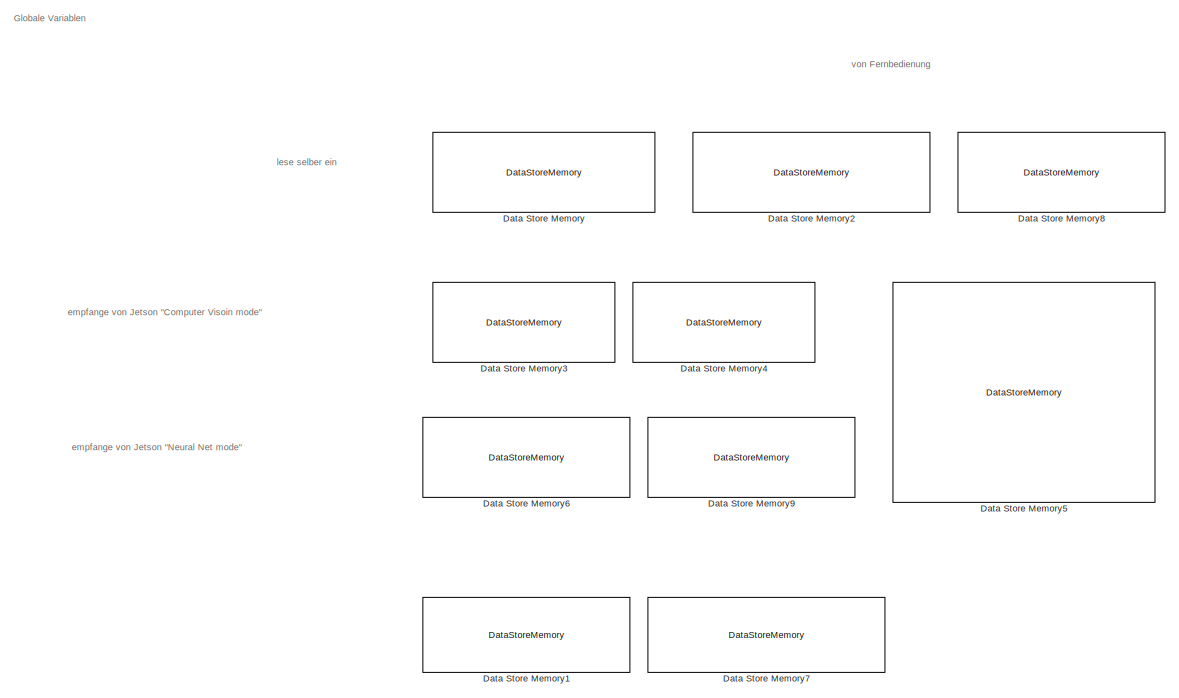
[diagram: root canvas - part 1/6, top left region]
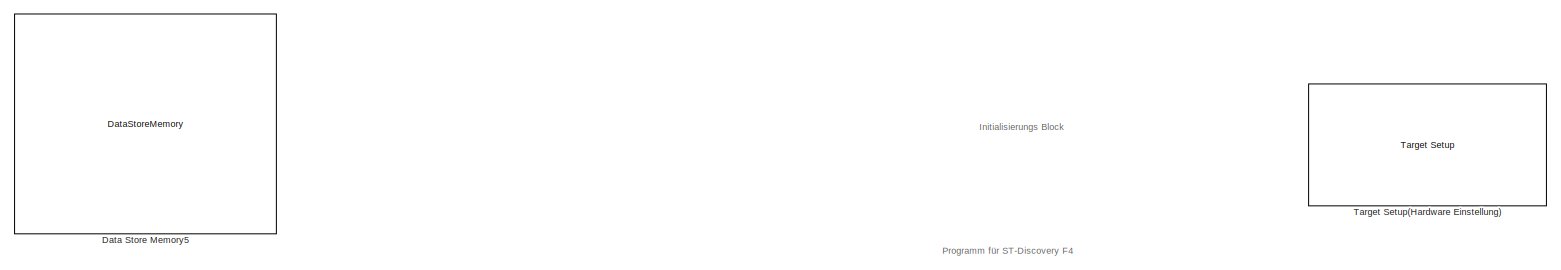
[diagram: root canvas - part 2/6, top center region]
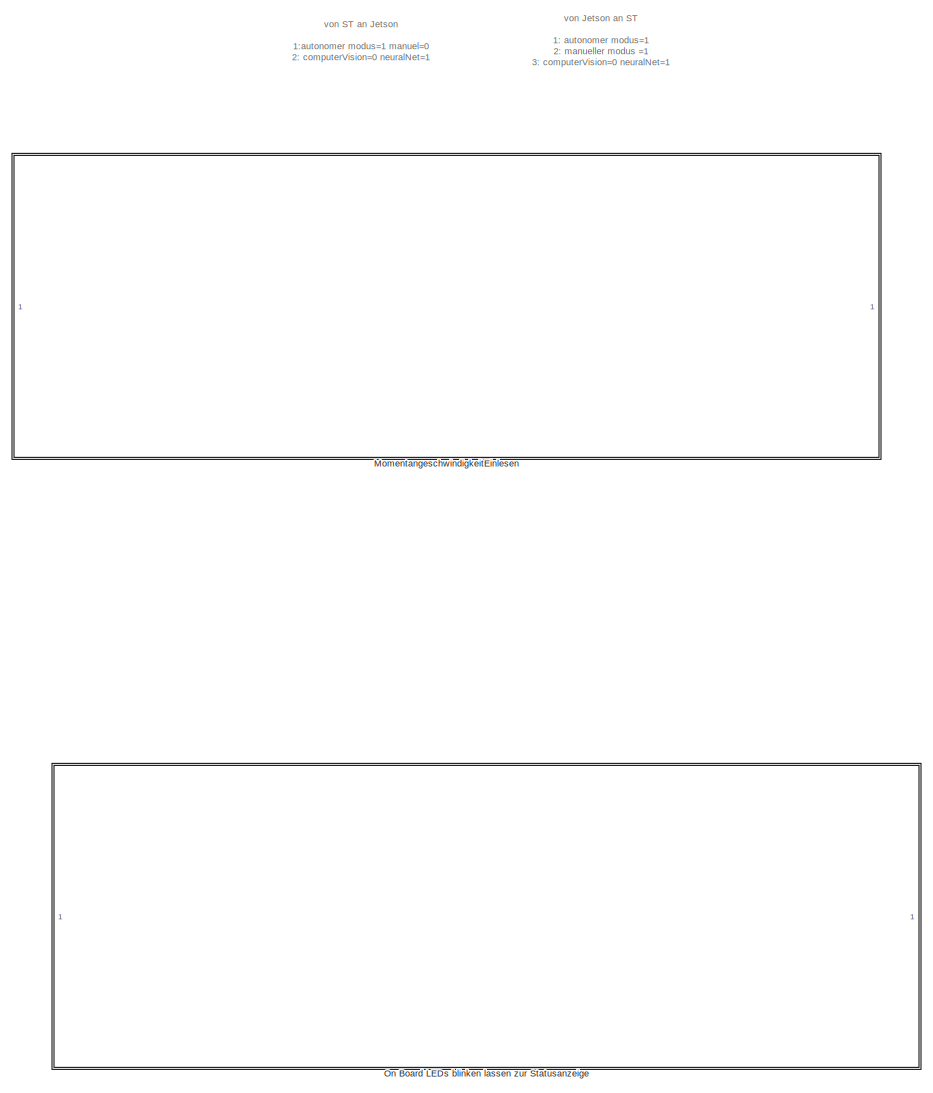
[diagram: root canvas - part 3/6, middle left region]
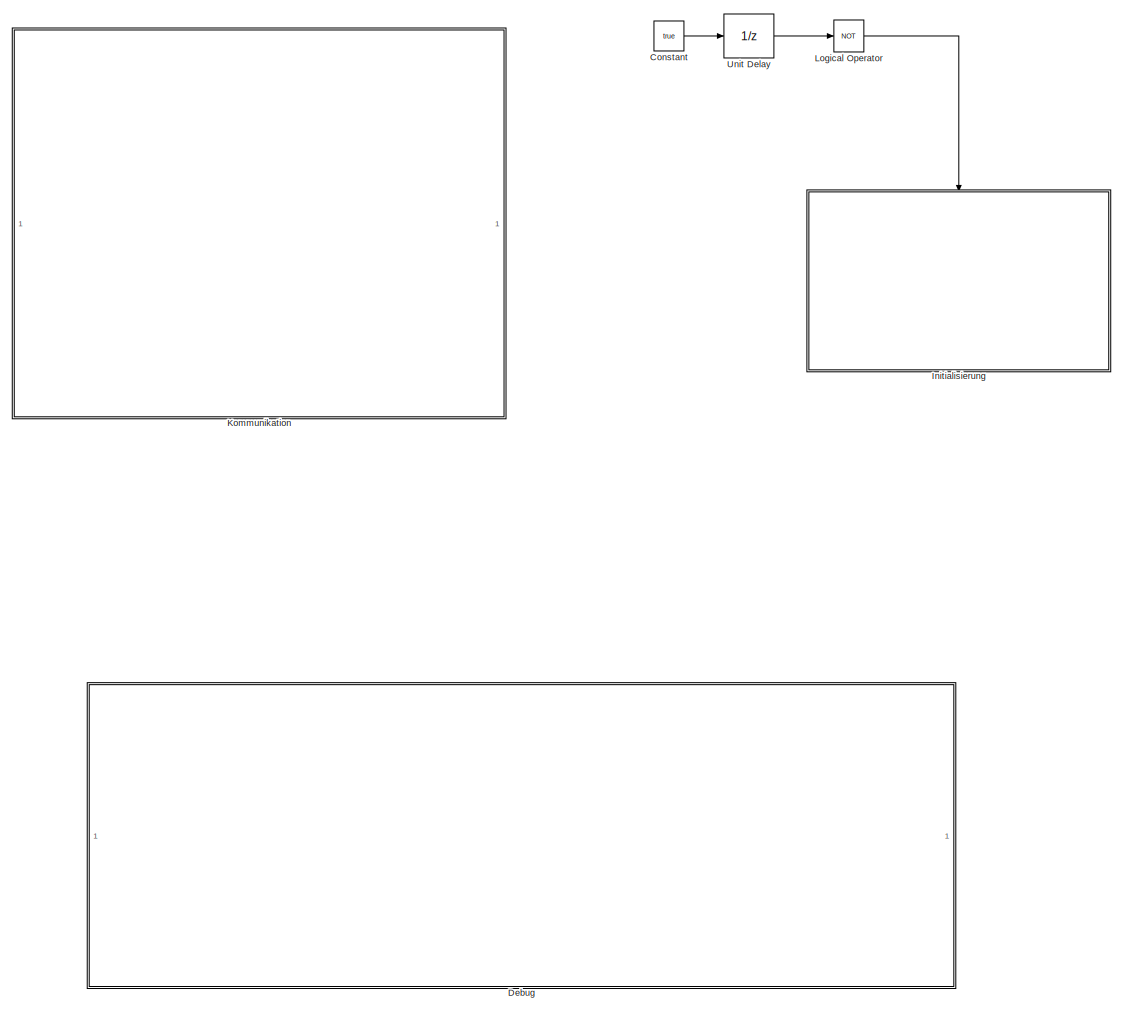
[diagram: root canvas - part 4/6, bottom right region]
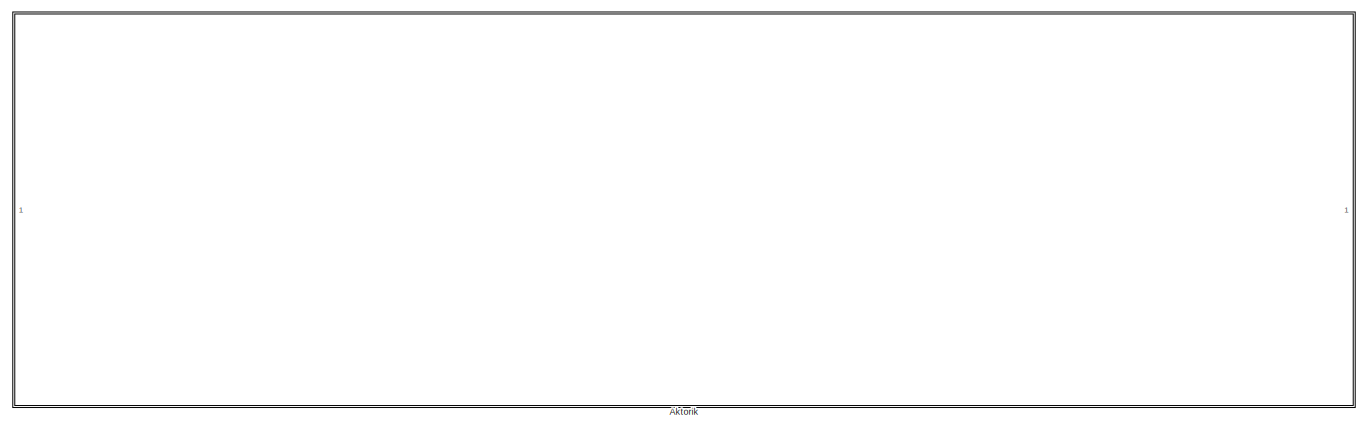
[diagram: root canvas - part 5/6, central region]
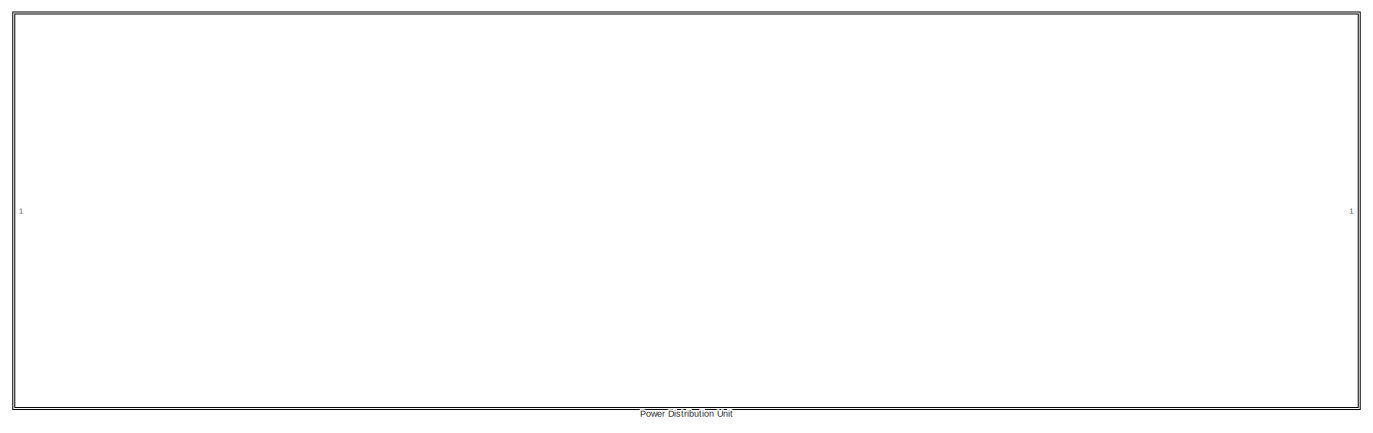
[diagram: root canvas - part 6/6, bottom center region]
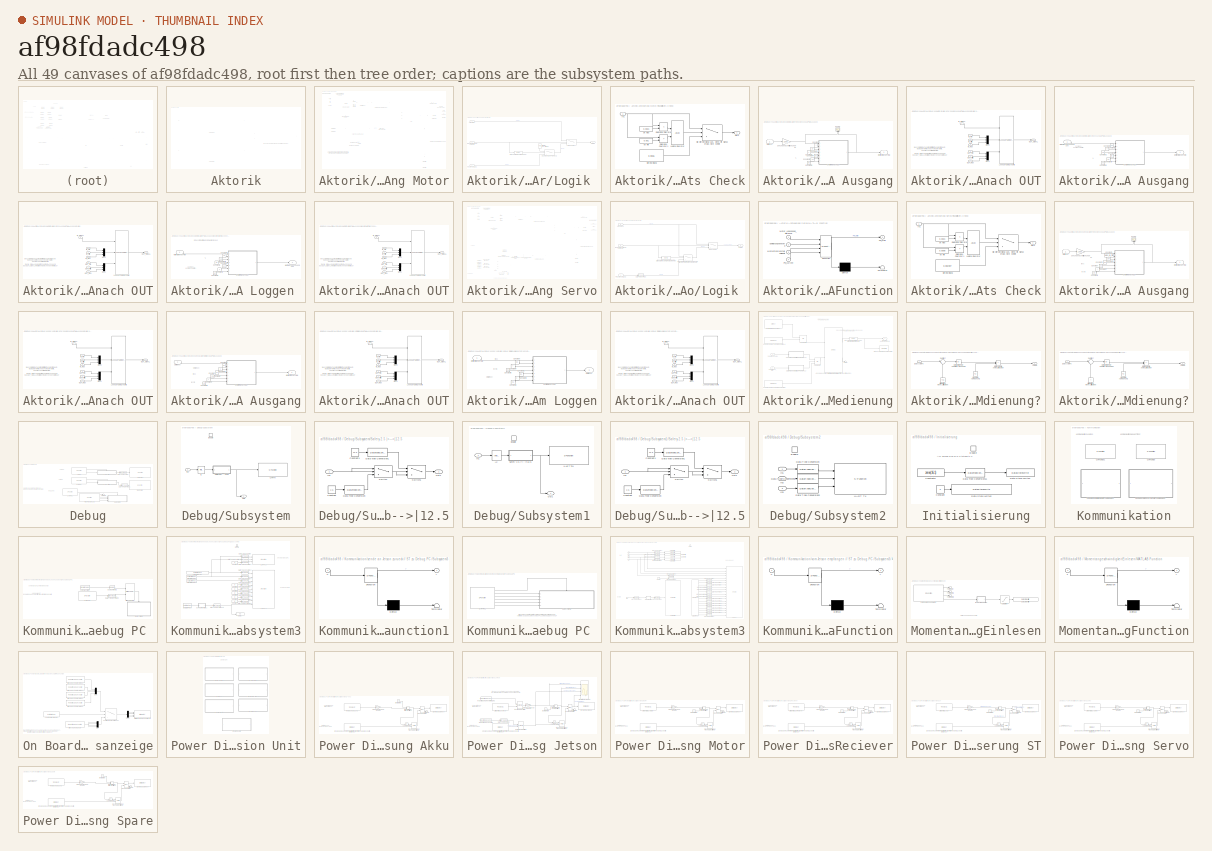
[diagram: thumbnail index - all 49 canvases of the model, root first then tree order]
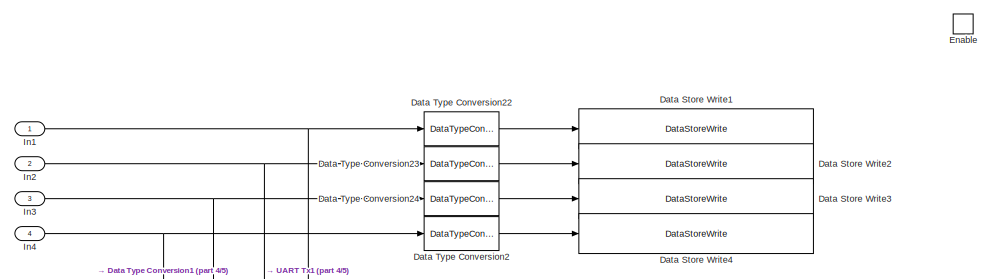
[diagram: Kommunikation/vom Jetson empfangen // ST zu Debug PC /Subsystem3 - part 1/5, top center region]
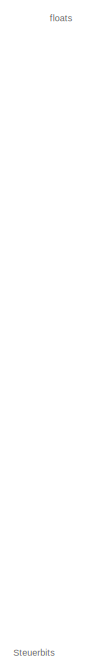
[diagram: Kommunikation/vom Jetson empfangen // ST zu Debug PC /Subsystem3 - part 2/5, middle left region]
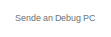
[diagram: Kommunikation/vom Jetson empfangen // ST zu Debug PC /Subsystem3 - part 3/5, top right region]
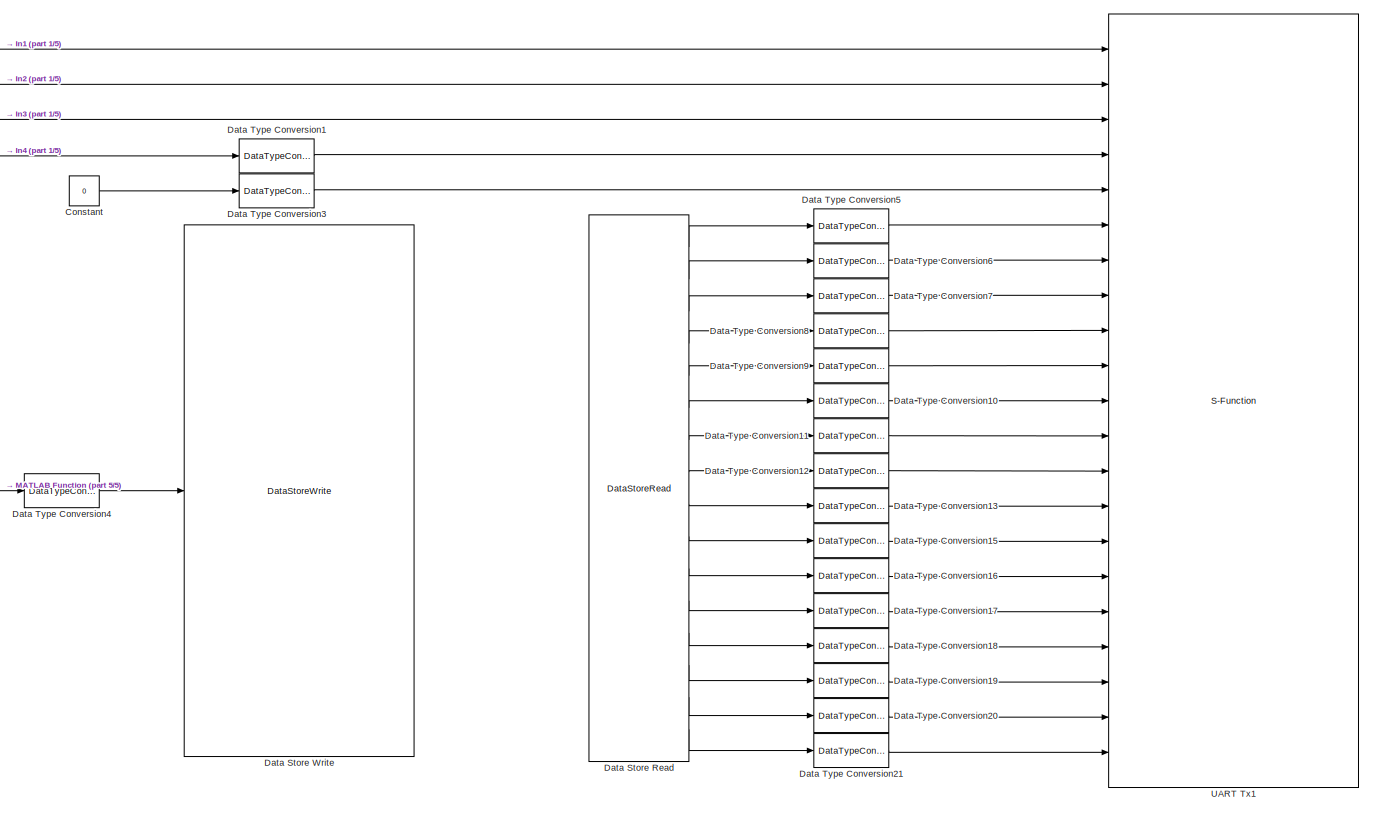
[diagram: Kommunikation/vom Jetson empfangen // ST zu Debug PC /Subsystem3 - part 4/5, central region]
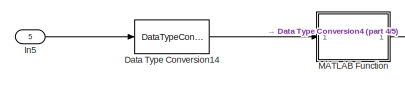
[diagram: Kommunikation/vom Jetson empfangen // ST zu Debug PC /Subsystem3 - part 5/5, bottom left region]
MODEL slx_af98fdadc498
KIND model
CONFIG AbsTol = auto
CONFIG EnableMultiTasking = off
CONFIG FixedStep = Abtastzeit
CONFIG MaxStep = auto
CONFIG MinStep = auto
CONFIG PreLoadFcn = waijung.modelPreload; % Required for working with Waijung Blockset. Do not remove.
CONFIG RelTol = 1e-3
CONFIG SampleTimeConstraint = Unconstrained
CONFIG Solver = FixedStepAuto
CONFIG SolverName = FixedStepAuto
CONFIG StartTime = 0.0
CONFIG StopTime = 0.01
WORKSPACE source: MAT-file member
WORKSPACE Abtastzeit = 0.01
BLOCK [SubSystem] Aktorik
  Ports = []
  RequestExecContextInheritance = off
  Variant = off
BLOCK [SubSystem] Aktorik/Ansteuerung Motor
  Ports = [1, 1]
  RequestExecContextInheritance = off
  Variant = off
BLOCK [DataStoreRead] Aktorik/Ansteuerung Motor/Data Store Read
  DataStoreName = AutonomeStellGeschwindigkeitVonJetson
  Ports = [0, 1]
BLOCK [DataStoreWrite] Aktorik/Ansteuerung Motor/Data Store Write
  DataStoreName = Prozent_Gaspedal
  Ports = [1]
BLOCK [DataTypeConversion] Aktorik/Ansteuerung Motor/Data Type Conversion
  RndMeth = Floor
  SaturateOnIntegerOverflow = off
BLOCK [S-Function] Aktorik/Ansteuerung Motor/Fernbediehnung Motor
  EnableBusSupport = off
  FunctionName = stm32f4_pwm_capture
  Parameters = conf,inputporttype,inputportwidth,outputporttype,outputportwidth,optionstring,sampletime,blockid
  Ports = [0, 4]
  SFcnIsStateOwnerBlock = off
  SFunctionDeploymentMode = off
BLOCK [Outport] Aktorik/Ansteuerung Motor/Fernbedienung_Motor
  IconDisplay = Port number
BLOCK [SubSystem] Aktorik/Ansteuerung Motor/Logik 
  Ports = [3, 1]
  RequestExecContextInheritance = off
  Variant = off
BLOCK [Switch] Aktorik/Ansteuerung Motor/Logik /Erst 1s stoppen, dann Fernbedieung
  Criteria = u2 > Threshold
  InputSameDT = off
  SaturateOnIntegerOverflow = off
BLOCK [Inport] Aktorik/Ansteuerung Motor/Logik /Fernbedienung Signal
  IconDisplay = Port number
BLOCK [Inport] Aktorik/Ansteuerung Motor/Logik /Jetson Signal
  IconDisplay = Port number
  Port = 3
BLOCK [Constant] Aktorik/Ansteuerung Motor/Logik /Mittelwert, in % wenn Fernbedienung in der Mitte steht
  Value = 7.45
BLOCK [Switch] Aktorik/Ansteuerung Motor/Logik /Modus Auswahl
  Criteria = u2 > Threshold
  InputSameDT = off
  SaturateOnIntegerOverflow = off
BLOCK [Inport] Aktorik/Ansteuerung Motor/Logik /Moduswahl (1=autonom 0=manuell)
  IconDisplay = Port number
  Port = 2
BLOCK [Outport] Aktorik/Ansteuerung Motor/Logik /Output Pin
  IconDisplay = Port number
BLOCK [Reference] Aktorik/Ansteuerung Motor/Logik /Wartezeit Anhalten (Einschaltverzögerung)  REF=powerlib_meascontrol/Logic/On Delay
  Ports = [1, 1]
  SourceBlock = powerlib_meascontrol/Logic/On Delay
  SourceProductBaseCode = PS
  SourceProductName = Simscape Power Systems
  SourceType = On/Off Delay
BLOCK [Inport] Aktorik/Ansteuerung Motor/Moduswahl (1=autonom 0=manuell)
  IconDisplay = Port number
BLOCK [S-Function] Aktorik/Ansteuerung Motor/Motor ansteuern
  EnableBusSupport = off
  FunctionName = stm32f4_basicpwm
  Parameters = timer,pwmperiod,ch1pin,ch2pin,ch3pin,ch4pin,sampletime,sampletimestr,blockid,apb,portstr,pinstr,pinmat,timarr,timprescale,chmat,polaritystr
  Ports = [1]
  SFcnIsStateOwnerBlock = off
  SFunctionDeploymentMode = off
BLOCK [SubSystem] Aktorik/Ansteuerung Motor/Plausibilitäts Check
  Ports = [1, 1]
  RequestExecContextInheritance = off
  Variant = off
BLOCK [Switch] Aktorik/Ansteuerung Motor/Plausibilitäts Check/Gib Mittelstellung aus, wenn mit Signal etwas nicht Stimmt
  Criteria = u2 > Threshold
  InputSameDT = off
  SaturateOnIntegerOverflow = off
BLOCK [Inport] Aktorik/Ansteuerung Motor/Plausibilitäts Check/In1
  IconDisplay = Port number
BLOCK [Logic] Aktorik/Ansteuerung Motor/Plausibilitäts Check/Logical Operator
  AllPortsSameDT = off
  OutDataTypeStr = boolean
  Ports = [2, 1]
BLOCK [Constant] Aktorik/Ansteuerung Motor/Plausibilitäts Check/Mittelstellung
  Value = 0.0015
BLOCK [Outport] Aktorik/Ansteuerung Motor/Plausibilitäts Check/Out1
  IconDisplay = Port number
BLOCK [RelationalOperator] Aktorik/Ansteuerung Motor/Plausibilitäts Check/Relational Operator
  InputSameDT = off
  Operator = <
  OutDataTypeStr = boolean
  Ports = [2, 1]
BLOCK [RelationalOperator] Aktorik/Ansteuerung Motor/Plausibilitäts Check/Relational Operator1
  InputSameDT = off
  Operator = >
  OutDataTypeStr = boolean
  Ports = [2, 1]
BLOCK [Constant] Aktorik/Ansteuerung Motor/Plausibilitäts Check/ok max 
  Value = 0.0021
BLOCK [Constant] Aktorik/Ansteuerung Motor/Plausibilitäts Check/ok min
  Value = 0.001
BLOCK [Reference] Aktorik/Ansteuerung Motor/Repeating Sequence Interpolated  REF=simulink/Sources/Repeating
Sequence
Interpolated
  Ports = [0, 1]
  SourceBlock = simulink/Sources/Repeating\nSequence\nInterpolated
  SourceProductBaseCode = SL
  SourceProductName = Simulink
  SourceType = Repeating Sequence Interpolated
BLOCK [SubSystem] Aktorik/Ansteuerung Motor/Skaliere Fernbedienung auf PWM Ausgang
  Ports = [1, 1]
  RequestExecContextInheritance = off
  Variant = off
BLOCK [Constant] Aktorik/Ansteuerung Motor/Skaliere Fernbedienung auf PWM Ausgang/Constant1
BLOCK [Constant] Aktorik/Ansteuerung Motor/Skaliere Fernbedienung auf PWM Ausgang/Constant2
  Value = 1.5
BLOCK [Constant] Aktorik/Ansteuerung Motor/Skaliere Fernbedienung auf PWM Ausgang/Constant3
  Value = 2
BLOCK [Constant] Aktorik/Ansteuerung Motor/Skaliere Fernbedienung auf PWM Ausgang/Constant4
  Value = 5.5
BLOCK [Constant] Aktorik/Ansteuerung Motor/Skaliere Fernbedienung auf PWM Ausgang/Constant5
  Value = 7.45
BLOCK [Constant] Aktorik/Ansteuerung Motor/Skaliere Fernbedienung auf PWM Ausgang/Constant6
  Value = 9.5
BLOCK [Scope] Aktorik/Ansteuerung Motor/Skaliere Fernbedienung auf PWM Ausgang/Scope
  NumInputPorts = 2
  Ports = [2]
  ScopeSpecificationString = Simulink.scopes.TimeScopeBlockCfg('CurrentConfiguration', extmgr.ConfigurationSet(extmgr.Configuration('Core','General UI',true),extmgr.Configuration('Core','Source UI',true),extmgr.Configuration('Sources','WiredSimulink',true,'DataLoggingVariableName','ScopeData1'),extmgr.Configuration('Visuals','Time Domain',true,'SerializedDisplays',{struct('MinYLimReal','-0.06925','MaxYLimReal','9.56325','YLab...<+1445ch>
BLOCK [Gain] Aktorik/Ansteuerung Motor/Skaliere Fernbedienung auf PWM Ausgang/Sekunde nach Millisekunde
  Gain = 1000
  OutDataTypeStr = Inherit: Inherit via internal rule
  ParamDataTypeStr = Inherit: Inherit via internal rule
  SaturateOnIntegerOverflow = off
BLOCK [SubSystem] Aktorik/Ansteuerung Motor/Skaliere Fernbedienung auf PWM Ausgang/Skaliere lN nach OUT
  Ports = [7, 1]
  RequestExecContextInheritance = off
  Variant = off
BLOCK [Inport] Aktorik/Ansteuerung Motor/Skaliere Fernbedienung auf PWM Ausgang/Skaliere lN nach OUT/IN_SIGNAL
  IconDisplay = Port number
BLOCK [Inport] Aktorik/Ansteuerung Motor/Skaliere Fernbedienung auf PWM Ausgang/Skaliere lN nach OUT/IN_max
  IconDisplay = Port number
  Port = 4
BLOCK [Inport] Aktorik/Ansteuerung Motor/Skaliere Fernbedienung auf PWM Ausgang/Skaliere lN nach OUT/IN_min
  IconDisplay = Port number
  Port = 2
BLOCK [Inport] Aktorik/Ansteuerung Motor/Skaliere Fernbedienung auf PWM Ausgang/Skaliere lN nach OUT/IN_mitte
  IconDisplay = Port number
  Port = 3
BLOCK [Reference] Aktorik/Ansteuerung Motor/Skaliere Fernbedienung auf PWM Ausgang/Skaliere lN nach OUT/Lookup Table Dynamic  REF=simulink/Lookup
Tables/Lookup
Table
Dynamic
  Ports = [3, 1]
  SourceBlock = simulink/Lookup\nTables/Lookup\nTable\nDynamic
  SourceProductBaseCode = SL
  SourceProductName = Simulink
  SourceType = Lookup Table Dynamic
BLOCK [Mux] Aktorik/Ansteuerung Motor/Skaliere Fernbedienung auf PWM Ausgang/Skaliere lN nach OUT/Mux1
  DisplayOption = bar
  Inputs = 3
  Ports = [3, 1]
BLOCK [Mux] Aktorik/Ansteuerung Motor/Skaliere Fernbedienung auf PWM Ausgang/Skaliere lN nach OUT/Mux3
  DisplayOption = bar
  Inputs = 3
  Ports = [3, 1]
BLOCK [Outport] Aktorik/Ansteuerung Motor/Skaliere Fernbedienung auf PWM Ausgang/Skaliere lN nach OUT/OUT_SIGNAL
  IconDisplay = Port number
BLOCK [Inport] Aktorik/Ansteuerung Motor/Skaliere Fernbedienung auf PWM Ausgang/Skaliere lN nach OUT/OUT_max
  IconDisplay = Port number
  Port = 7
BLOCK [Inport] Aktorik/Ansteuerung Motor/Skaliere Fernbedienung auf PWM Ausgang/Skaliere lN nach OUT/OUT_min
  IconDisplay = Port number
  Port = 5
BLOCK [Inport] Aktorik/Ansteuerung Motor/Skaliere Fernbedienung auf PWM Ausgang/Skaliere lN nach OUT/OUT_mitte
  IconDisplay = Port number
  Port = 6
BLOCK [Outport] Aktorik/Ansteuerung Motor/Skaliere Fernbedienung auf PWM Ausgang/Wert in % für 50Hz PWM
  IconDisplay = Port number
BLOCK [Inport] Aktorik/Ansteuerung Motor/Skaliere Fernbedienung auf PWM Ausgang/Wert in sec
  IconDisplay = Port number
BLOCK [SubSystem] Aktorik/Ansteuerung Motor/Skaliere Jetson( + -100) auf PWM Ausgang
  Ports = [1, 1]
  RequestExecContextInheritance = off
  Variant = off
BLOCK [Constant] Aktorik/Ansteuerung Motor/Skaliere Jetson( + -100) auf PWM Ausgang/Constant1
  Value = 100
BLOCK [Constant] Aktorik/Ansteuerung Motor/Skaliere Jetson( + -100) auf PWM Ausgang/Constant2
  Value = 0
BLOCK [Constant] Aktorik/Ansteuerung Motor/Skaliere Jetson( + -100) auf PWM Ausgang/Constant3
  Value = -100
BLOCK [Constant] Aktorik/Ansteuerung Motor/Skaliere Jetson( + -100) auf PWM Ausgang/Constant4
  Value = 5.5
BLOCK [Constant] Aktorik/Ansteuerung Motor/Skaliere Jetson( + -100) auf PWM Ausgang/Constant5
  Value = 7.45
BLOCK [Constant] Aktorik/Ansteuerung Motor/Skaliere Jetson( + -100) auf PWM Ausgang/Constant6
  Value = 9.5
BLOCK [SubSystem] Aktorik/Ansteuerung Motor/Skaliere Jetson( + -100) auf PWM Ausgang/Skaliere lN nach OUT
  Ports = [7, 1]
  RequestExecContextInheritance = off
  Variant = off
BLOCK [Inport] Aktorik/Ansteuerung Motor/Skaliere Jetson( + -100) auf PWM Ausgang/Skaliere lN nach OUT/IN_SIGNAL
  IconDisplay = Port number
BLOCK [Inport] Aktorik/Ansteuerung Motor/Skaliere Jetson( + -100) auf PWM Ausgang/Skaliere lN nach OUT/IN_max
  IconDisplay = Port number
  Port = 4
BLOCK [Inport] Aktorik/Ansteuerung Motor/Skaliere Jetson( + -100) auf PWM Ausgang/Skaliere lN nach OUT/IN_min
  IconDisplay = Port number
  Port = 2
BLOCK [Inport] Aktorik/Ansteuerung Motor/Skaliere Jetson( + -100) auf PWM Ausgang/Skaliere lN nach OUT/IN_mitte
  IconDisplay = Port number
  Port = 3
BLOCK [Reference] Aktorik/Ansteuerung Motor/Skaliere Jetson( + -100) auf PWM Ausgang/Skaliere lN nach OUT/Lookup Table Dynamic  REF=simulink/Lookup
Tables/Lookup
Table
Dynamic
  Ports = [3, 1]
  SourceBlock = simulink/Lookup\nTables/Lookup\nTable\nDynamic
  SourceProductBaseCode = SL
  SourceProductName = Simulink
  SourceType = Lookup Table Dynamic
BLOCK [Mux] Aktorik/Ansteuerung Motor/Skaliere Jetson( + -100) auf PWM Ausgang/Skaliere lN nach OUT/Mux1
  DisplayOption = bar
  Inputs = 3
  Ports = [3, 1]
BLOCK [Mux] Aktorik/Ansteuerung Motor/Skaliere Jetson( + -100) auf PWM Ausgang/Skaliere lN nach OUT/Mux3
  DisplayOption = bar
  Inputs = 3
  Ports = [3, 1]
BLOCK [Outport] Aktorik/Ansteuerung Motor/Skaliere Jetson( + -100) auf PWM Ausgang/Skaliere lN nach OUT/OUT_SIGNAL
  IconDisplay = Port number
BLOCK [Inport] Aktorik/Ansteuerung Motor/Skaliere Jetson( + -100) auf PWM Ausgang/Skaliere lN nach OUT/OUT_max
  IconDisplay = Port number
  Port = 7
BLOCK [Inport] Aktorik/Ansteuerung Motor/Skaliere Jetson( + -100) auf PWM Ausgang/Skaliere lN nach OUT/OUT_min
  IconDisplay = Port number
  Port = 5
BLOCK [Inport] Aktorik/Ansteuerung Motor/Skaliere Jetson( + -100) auf PWM Ausgang/Skaliere lN nach OUT/OUT_mitte
  IconDisplay = Port number
  Port = 6
BLOCK [Outport] Aktorik/Ansteuerung Motor/Skaliere Jetson( + -100) auf PWM Ausgang/Wert in % für 50Hz PWM
  IconDisplay = Port number
BLOCK [Inport] Aktorik/Ansteuerung Motor/Skaliere Jetson( + -100) auf PWM Ausgang/Wert zwischen 100 und -100
  IconDisplay = Port number
BLOCK [SubSystem] Aktorik/Ansteuerung Motor/Skaliere PWM Ausgang wieder in wert zwischen( + -100) zum Loggen 
  Ports = [1, 1]
  RequestExecContextInheritance = off
  Variant = off
BLOCK [Constant] Aktorik/Ansteuerung Motor/Skaliere PWM Ausgang wieder in wert zwischen( + -100) zum Loggen /Constant1
  Value = 100
BLOCK [Constant] Aktorik/Ansteuerung Motor/Skaliere PWM Ausgang wieder in wert zwischen( + -100) zum Loggen /Constant2
  Value = 0
BLOCK [Constant] Aktorik/Ansteuerung Motor/Skaliere PWM Ausgang wieder in wert zwischen( + -100) zum Loggen /Constant3
  Value = -100
BLOCK [Constant] Aktorik/Ansteuerung Motor/Skaliere PWM Ausgang wieder in wert zwischen( + -100) zum Loggen /Constant4
  Value = 5.5
BLOCK [Constant] Aktorik/Ansteuerung Motor/Skaliere PWM Ausgang wieder in wert zwischen( + -100) zum Loggen /Constant5
  Value = 7.45
BLOCK [Constant] Aktorik/Ansteuerung Motor/Skaliere PWM Ausgang wieder in wert zwischen( + -100) zum Loggen /Constant6
  Value = 9.5
BLOCK [SubSystem] Aktorik/Ansteuerung Motor/Skaliere PWM Ausgang wieder in wert zwischen( + -100) zum Loggen /Skaliere lN nach OUT
  Ports = [7, 1]
  RequestExecContextInheritance = off
  Variant = off
BLOCK [Inport] Aktorik/Ansteuerung Motor/Skaliere PWM Ausgang wieder in wert zwischen( + -100) zum Loggen /Skaliere lN nach OUT/IN_SIGNAL
  IconDisplay = Port number
BLOCK [Inport] Aktorik/Ansteuerung Motor/Skaliere PWM Ausgang wieder in wert zwischen( + -100) zum Loggen /Skaliere lN nach OUT/IN_max
  IconDisplay = Port number
  Port = 4
BLOCK [Inport] Aktorik/Ansteuerung Motor/Skaliere PWM Ausgang wieder in wert zwischen( + -100) zum Loggen /Skaliere lN nach OUT/IN_min
  IconDisplay = Port number
  Port = 2
BLOCK [Inport] Aktorik/Ansteuerung Motor/Skaliere PWM Ausgang wieder in wert zwischen( + -100) zum Loggen /Skaliere lN nach OUT/IN_mitte
  IconDisplay = Port number
  Port = 3
BLOCK [Reference] Aktorik/Ansteuerung Motor/Skaliere PWM Ausgang wieder in wert zwischen( + -100) zum Loggen /Skaliere lN nach OUT/Lookup Table Dynamic  REF=simulink/Lookup
Tables/Lookup
Table
Dynamic
  Ports = [3, 1]
  SourceBlock = simulink/Lookup\nTables/Lookup\nTable\nDynamic
  SourceProductBaseCode = SL
  SourceProductName = Simulink
  SourceType = Lookup Table Dynamic
BLOCK [Mux] Aktorik/Ansteuerung Motor/Skaliere PWM Ausgang wieder in wert zwischen( + -100) zum Loggen /Skaliere lN nach OUT/Mux1
  DisplayOption = bar
  Inputs = 3
  Ports = [3, 1]
BLOCK [Mux] Aktorik/Ansteuerung Motor/Skaliere PWM Ausgang wieder in wert zwischen( + -100) zum Loggen /Skaliere lN nach OUT/Mux3
  DisplayOption = bar
  Inputs = 3
  Ports = [3, 1]
BLOCK [Outport] Aktorik/Ansteuerung Motor/Skaliere PWM Ausgang wieder in wert zwischen( + -100) zum Loggen /Skaliere lN nach OUT/OUT_SIGNAL
  IconDisplay = Port number
BLOCK [Inport] Aktorik/Ansteuerung Motor/Skaliere PWM Ausgang wieder in wert zwischen( + -100) zum Loggen /Skaliere lN nach OUT/OUT_max
  IconDisplay = Port number
  Port = 7
BLOCK [Inport] Aktorik/Ansteuerung Motor/Skaliere PWM Ausgang wieder in wert zwischen( + -100) zum Loggen /Skaliere lN nach OUT/OUT_min
  IconDisplay = Port number
  Port = 5
BLOCK [Inport] Aktorik/Ansteuerung Motor/Skaliere PWM Ausgang wieder in wert zwischen( + -100) zum Loggen /Skaliere lN nach OUT/OUT_mitte
  IconDisplay = Port number
  Port = 6
BLOCK [Inport] Aktorik/Ansteuerung Motor/Skaliere PWM Ausgang wieder in wert zwischen( + -100) zum Loggen /Wert in % für 50Hz PWM
  IconDisplay = Port number
BLOCK [Outport] Aktorik/Ansteuerung Motor/Skaliere PWM Ausgang wieder in wert zwischen( + -100) zum Loggen /Wert zwischen 100 und -100 
  IconDisplay = Port number
BLOCK [Terminator] Aktorik/Ansteuerung Motor/Terminator
BLOCK [Terminator] Aktorik/Ansteuerung Motor/Terminator1
BLOCK [Terminator] Aktorik/Ansteuerung Motor/Terminator2
BLOCK [Terminator] Aktorik/Ansteuerung Motor/Terminator3
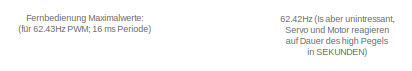
[diagram: Aktorik/Ansteuerung Servo - part 1/7, top left region]
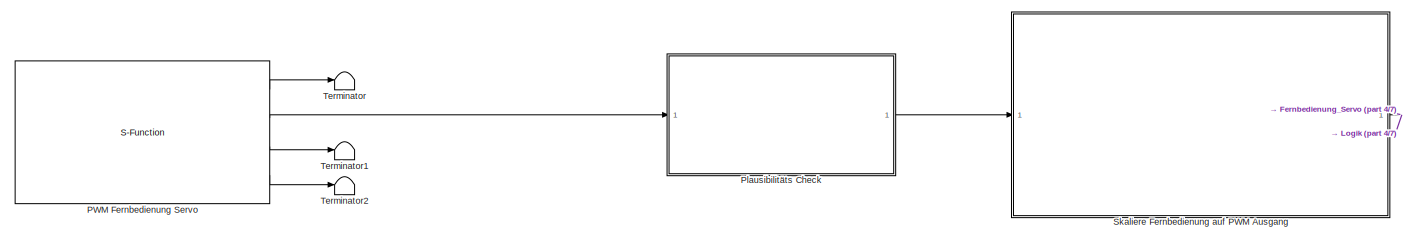
[diagram: Aktorik/Ansteuerung Servo - part 2/7, top center region]
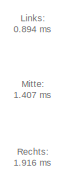
[diagram: Aktorik/Ansteuerung Servo - part 3/7, top left region]
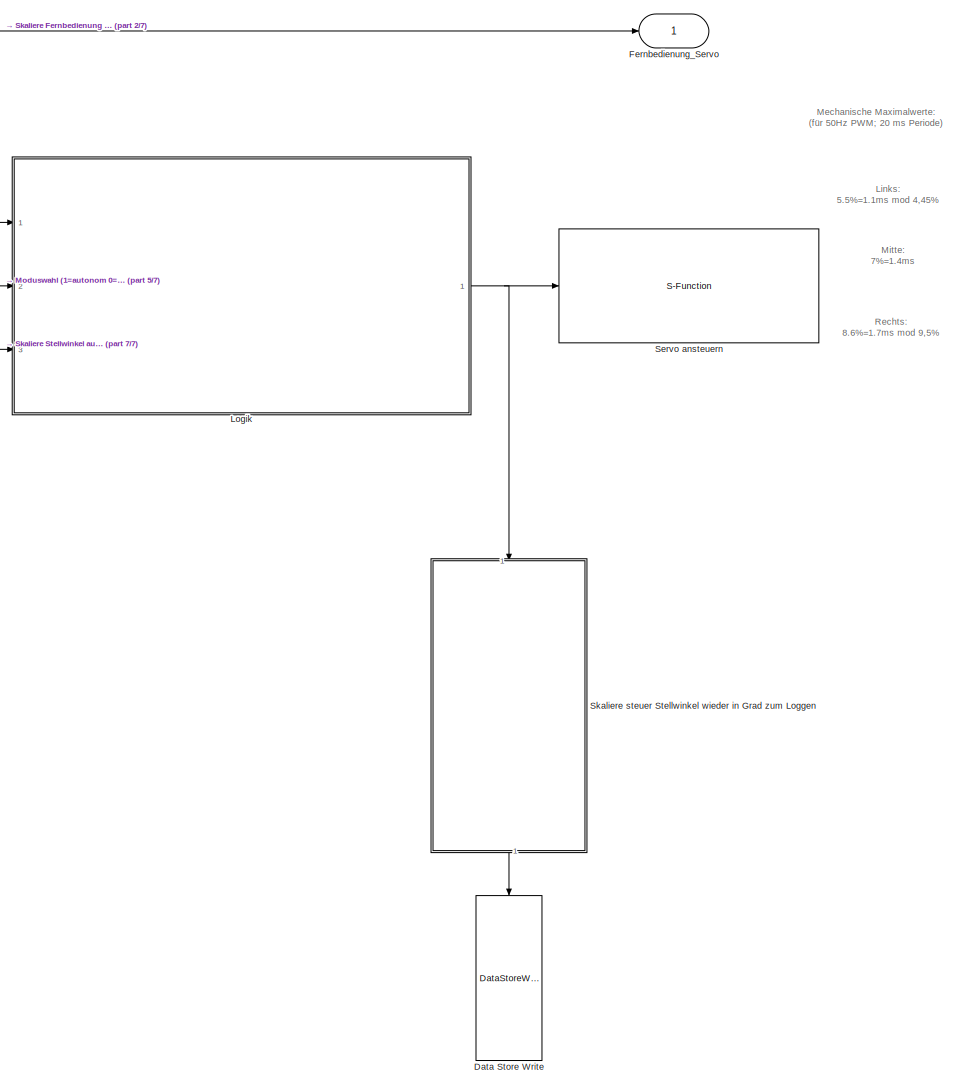
[diagram: Aktorik/Ansteuerung Servo - part 4/7, middle right region]
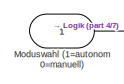
[diagram: Aktorik/Ansteuerung Servo - part 5/7, top left region]
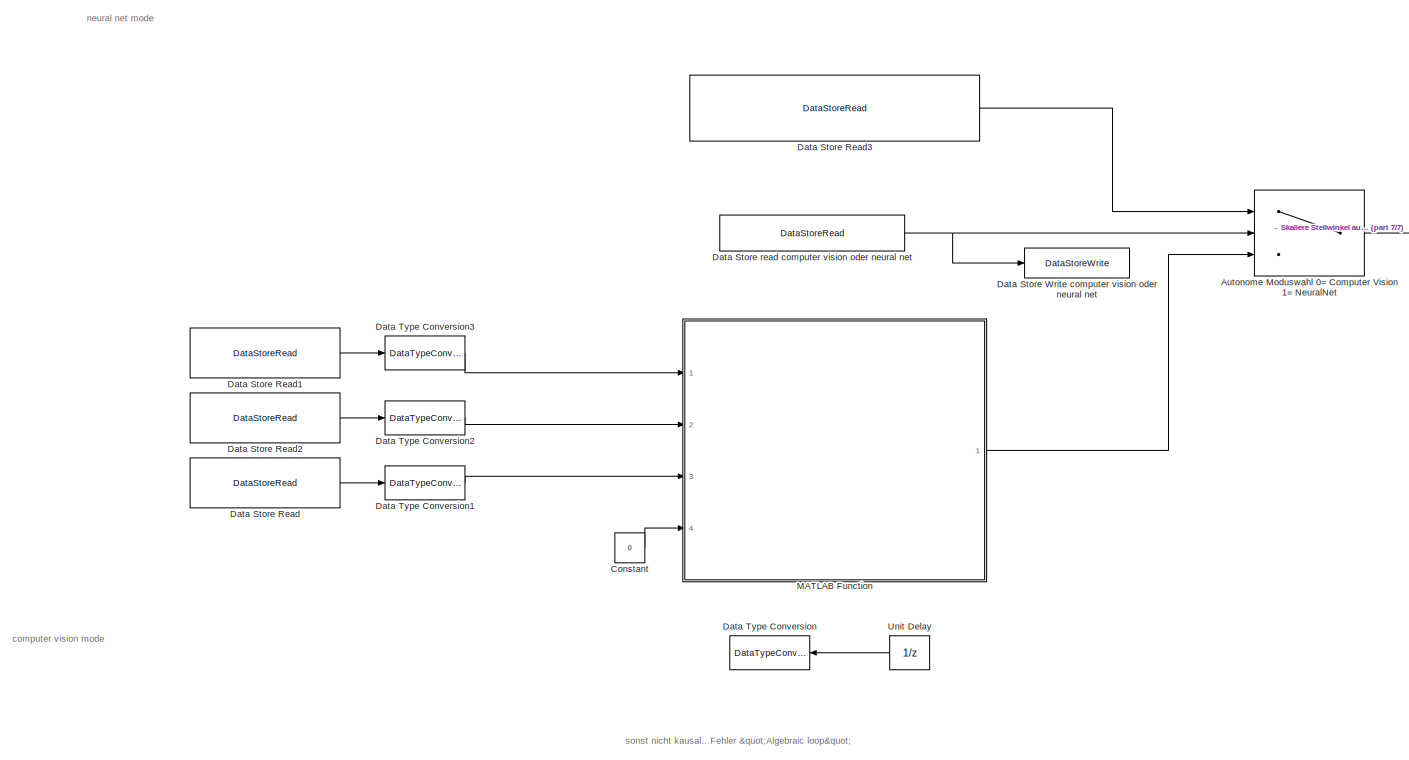
[diagram: Aktorik/Ansteuerung Servo - part 6/7, bottom left region]
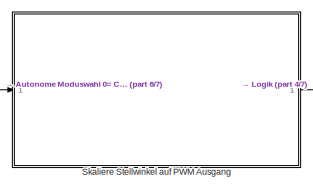
[diagram: Aktorik/Ansteuerung Servo - part 7/7, bottom center region]
BLOCK [SubSystem] Aktorik/Ansteuerung Servo
  Ports = [1, 1]
  RequestExecContextInheritance = off
  Variant = off
BLOCK [Switch] Aktorik/Ansteuerung Servo/Autonome Moduswahl 0= Computer Vision 1= NeuralNet
  Criteria = u2 > Threshold
  InputSameDT = off
  SaturateOnIntegerOverflow = off
BLOCK [Constant] Aktorik/Ansteuerung Servo/Constant
  Value = 0
BLOCK [DataStoreRead] Aktorik/Ansteuerung Servo/Data Store Read
  DataStoreName = MomentanGeschwindigkeit_MeterProSekunde
  Ports = [0, 1]
BLOCK [DataStoreRead] Aktorik/Ansteuerung Servo/Data Store Read1
  DataStoreName = LookaheadDistance_Meter
  Ports = [0, 1]
BLOCK [DataStoreRead] Aktorik/Ansteuerung Servo/Data Store Read2
  DataStoreName = AbweichungVonMitte
  Ports = [0, 1]
BLOCK [DataStoreRead] Aktorik/Ansteuerung Servo/Data Store Read3
  DataStoreName = Soll_Stellwinkel
  Ports = [0, 1]
BLOCK [DataStoreWrite] Aktorik/Ansteuerung Servo/Data Store Write
  DataStoreName = aktueller_Stellwinkel
  Ports = [1]
BLOCK [DataStoreWrite] Aktorik/Ansteuerung Servo/Data Store Write  computer vision oder neural net
  DataStoreElements = Statusbits(2)
  DataStoreName = Statusbits
  Ports = [1]
BLOCK [DataStoreRead] Aktorik/Ansteuerung Servo/Data Store read computer vision oder neural net
  DataStoreElements = Steuerbits(3)
  DataStoreName = Steuerbits
  Ports = [0, 1]
BLOCK [DataTypeConversion] Aktorik/Ansteuerung Servo/Data Type Conversion
  Commented = on
  RndMeth = Floor
  SaturateOnIntegerOverflow = off
BLOCK [DataTypeConversion] Aktorik/Ansteuerung Servo/Data Type Conversion1
  RndMeth = Floor
  SaturateOnIntegerOverflow = off
BLOCK [DataTypeConversion] Aktorik/Ansteuerung Servo/Data Type Conversion2
  RndMeth = Floor
  SaturateOnIntegerOverflow = off
BLOCK [DataTypeConversion] Aktorik/Ansteuerung Servo/Data Type Conversion3
  RndMeth = Floor
  SaturateOnIntegerOverflow = off
BLOCK [Outport] Aktorik/Ansteuerung Servo/Fernbedienung_Servo
  IconDisplay = Port number
BLOCK [SubSystem] Aktorik/Ansteuerung Servo/Logik 
  Ports = [3, 1]
  RequestExecContextInheritance = off
  Variant = off
BLOCK [Reference] Aktorik/Ansteuerung Servo/Logik /(Einschaltverzögerung) Wartezeit Anhalten Erst 1s aktuellen autonomen Lenkeinschlag halten, dann Fernbedienung übernehmen   REF=powerlib_meascontrol/Logic/On Delay
  Ports = [1, 1]
  SourceBlock = powerlib_meascontrol/Logic/On Delay
  SourceProductBaseCode = PS
  SourceProductName = Simscape Power Systems
  SourceType = On/Off Delay
BLOCK [DataTypeConversion] Aktorik/Ansteuerung Servo/Logik /Data Type Conversion
  OutDataTypeStr = double
  RndMeth = Floor
  SaturateOnIntegerOverflow = off
BLOCK [Switch] Aktorik/Ansteuerung Servo/Logik /Erst 1s aktuellen autonomen Lenkeinschlag halten, dann Fernbedienung übernehmen
  Criteria = u2 > Threshold
  InputSameDT = off
  SaturateOnIntegerOverflow = off
BLOCK [Inport] Aktorik/Ansteuerung Servo/Logik /Fernbedienung Signal
  IconDisplay = Port number
BLOCK [Inport] Aktorik/Ansteuerung Servo/Logik /Jetson Signal
  IconDisplay = Port number
  Port = 3
BLOCK [Switch] Aktorik/Ansteuerung Servo/Logik /Modus Auswahl
  Criteria = u2 > Threshold
  InputSameDT = off
  SaturateOnIntegerOverflow = off
BLOCK [Inport] Aktorik/Ansteuerung Servo/Logik /Moduswahl (1=autonom 0=manuell)
  IconDisplay = Port number
  Port = 2
BLOCK [Outport] Aktorik/Ansteuerung Servo/Logik /Output Pin
  IconDisplay = Port number
BLOCK [SubSystem] Aktorik/Ansteuerung Servo/MATLAB Function
  ErrorFcn = Stateflow.Translate.translate
  PermitHierarchicalResolution = ExplicitOnly
  Ports = [4, 1]
  RequestExecContextInheritance = off
  SFBlockType = MATLAB Function
  TreatAsAtomicUnit = on
  Variant = off
BLOCK [Demux] Aktorik/Ansteuerung Servo/MATLAB Function/ Demux 
  Outputs = 1
  Ports = [1, 1]
BLOCK [S-Function] Aktorik/Ansteuerung Servo/MATLAB Function/ SFunction 
  EnableBusSupport = on
  FunctionName = sf_sfun
  PortCounts = [4 2]
  Ports = [4, 2]
  SFcnIsStateOwnerBlock = off
  SFunctionDeploymentMode = off
  Tag = Stateflow S-Function STDiscovery 2
BLOCK [Terminator] Aktorik/Ansteuerung Servo/MATLAB Function/ Terminator 
BLOCK [Inport] Aktorik/Ansteuerung Servo/MATLAB Function/AbweichungVonMitte
  IconDisplay = Port number
  Port = 2
BLOCK [Inport] Aktorik/Ansteuerung Servo/MATLAB Function/Meter_Lookahead_Distance
  IconDisplay = Port number
BLOCK [Inport] Aktorik/Ansteuerung Servo/MATLAB Function/MomentanGeschwindigkeit
  IconDisplay = Port number
  Port = 3
BLOCK [Inport] Aktorik/Ansteuerung Servo/MATLAB Function/Phi_current
  IconDisplay = Port number
  Port = 4
BLOCK [Outport] Aktorik/Ansteuerung Servo/MATLAB Function/Phi_stell
  IconDisplay = Port number
BLOCK [Inport] Aktorik/Ansteuerung Servo/Moduswahl (1=autonom 0=manuell)
  IconDisplay = Port number
BLOCK [S-Function] Aktorik/Ansteuerung Servo/PWM  Fernbedienung Servo
  EnableBusSupport = off
  FunctionName = stm32f4_pwm_capture
  Parameters = conf,inputporttype,inputportwidth,outputporttype,outputportwidth,optionstring,sampletime,blockid
  Ports = [0, 4]
  SFcnIsStateOwnerBlock = off
  SFunctionDeploymentMode = off
BLOCK [SubSystem] Aktorik/Ansteuerung Servo/Plausibilitäts Check
  Ports = [1, 1]
  RequestExecContextInheritance = off
  Variant = off
BLOCK [Switch] Aktorik/Ansteuerung Servo/Plausibilitäts Check/Gib Mittelstellung aus, wenn mit Signal etwas nicht Stimmt
  Criteria = u2 > Threshold
  InputSameDT = off
  SaturateOnIntegerOverflow = off
BLOCK [Inport] Aktorik/Ansteuerung Servo/Plausibilitäts Check/In1
  IconDisplay = Port number
BLOCK [Logic] Aktorik/Ansteuerung Servo/Plausibilitäts Check/Logical Operator
  AllPortsSameDT = off
  OutDataTypeStr = boolean
  Ports = [2, 1]
BLOCK [Constant] Aktorik/Ansteuerung Servo/Plausibilitäts Check/Mittelstellung
  Value = 0.001407
BLOCK [Outport] Aktorik/Ansteuerung Servo/Plausibilitäts Check/Out1
  IconDisplay = Port number
BLOCK [RelationalOperator] Aktorik/Ansteuerung Servo/Plausibilitäts Check/Relational Operator
  InputSameDT = off
  Operator = <
  OutDataTypeStr = boolean
  Ports = [2, 1]
BLOCK [RelationalOperator] Aktorik/Ansteuerung Servo/Plausibilitäts Check/Relational Operator1
  InputSameDT = off
  Operator = >
  OutDataTypeStr = boolean
  Ports = [2, 1]
BLOCK [Constant] Aktorik/Ansteuerung Servo/Plausibilitäts Check/ok max 
  Value = 0.0021
BLOCK [Constant] Aktorik/Ansteuerung Servo/Plausibilitäts Check/ok min
  Value = 0.0008
BLOCK [S-Function] Aktorik/Ansteuerung Servo/Servo ansteuern
  EnableBusSupport = off
  FunctionName = stm32f4_basicpwm
  Parameters = timer,pwmperiod,ch1pin,ch2pin,ch3pin,ch4pin,sampletime,sampletimestr,blockid,apb,portstr,pinstr,pinmat,timarr,timprescale,chmat,polaritystr
  Ports = [1]
  SFcnIsStateOwnerBlock = off
  SFunctionDeploymentMode = off
BLOCK [SubSystem] Aktorik/Ansteuerung Servo/Skaliere Fernbedienung auf PWM Ausgang
  Ports = [1, 1]
  RequestExecContextInheritance = off
  Variant = off
BLOCK [Constant] Aktorik/Ansteuerung Servo/Skaliere Fernbedienung auf PWM Ausgang/Constant
  Value = 3.3
BLOCK [Constant] Aktorik/Ansteuerung Servo/Skaliere Fernbedienung auf PWM Ausgang/Constant1
  Value = Servo_IN_min
BLOCK [Constant] Aktorik/Ansteuerung Servo/Skaliere Fernbedienung auf PWM Ausgang/Constant2
  Value = 1.407
BLOCK [Constant] Aktorik/Ansteuerung Servo/Skaliere Fernbedienung auf PWM Ausgang/Constant3
  Value = 1.916
BLOCK [Constant] Aktorik/Ansteuerung Servo/Skaliere Fernbedienung auf PWM Ausgang/Constant7
  Value = 7
BLOCK [Constant] Aktorik/Ansteuerung Servo/Skaliere Fernbedienung auf PWM Ausgang/Constant8
  Value = 10.1
BLOCK [Scope] Aktorik/Ansteuerung Servo/Skaliere Fernbedienung auf PWM Ausgang/Scope
  NumInputPorts = 2
  Ports = [2]
  ScopeSpecificationString = Simulink.scopes.TimeScopeBlockCfg('CurrentConfiguration', extmgr.ConfigurationSet(extmgr.Configuration('Core','General UI',true),extmgr.Configuration('Core','Source UI',true),extmgr.Configuration('Sources','WiredSimulink',true,'DataLoggingVariableName','ScopeData1'),extmgr.Configuration('Visuals','Time Domain',true,'SerializedDisplays',{struct('MinYLimReal','-0.06925','MaxYLimReal','9.56325','YLab...<+1445ch>
BLOCK [Gain] Aktorik/Ansteuerung Servo/Skaliere Fernbedienung auf PWM Ausgang/Sekunde nach Millisekunde
  Gain = 1000
  OutDataTypeStr = Inherit: Inherit via internal rule
  ParamDataTypeStr = Inherit: Inherit via internal rule
  SaturateOnIntegerOverflow = off
BLOCK [SubSystem] Aktorik/Ansteuerung Servo/Skaliere Fernbedienung auf PWM Ausgang/Skaliere lN nach OUT
  Ports = [7, 1]
  RequestExecContextInheritance = off
  Variant = off
BLOCK [Inport] Aktorik/Ansteuerung Servo/Skaliere Fernbedienung auf PWM Ausgang/Skaliere lN nach OUT/IN_SIGNAL
  IconDisplay = Port number
BLOCK [Inport] Aktorik/Ansteuerung Servo/Skaliere Fernbedienung auf PWM Ausgang/Skaliere lN nach OUT/IN_max
  IconDisplay = Port number
  Port = 4
BLOCK [Inport] Aktorik/Ansteuerung Servo/Skaliere Fernbedienung auf PWM Ausgang/Skaliere lN nach OUT/IN_min
  IconDisplay = Port number
  Port = 2
BLOCK [Inport] Aktorik/Ansteuerung Servo/Skaliere Fernbedienung auf PWM Ausgang/Skaliere lN nach OUT/IN_mitte
  IconDisplay = Port number
  Port = 3
BLOCK [Reference] Aktorik/Ansteuerung Servo/Skaliere Fernbedienung auf PWM Ausgang/Skaliere lN nach OUT/Lookup Table Dynamic  REF=simulink/Lookup
Tables/Lookup
Table
Dynamic
  Ports = [3, 1]
  SourceBlock = simulink/Lookup\nTables/Lookup\nTable\nDynamic
  SourceProductBaseCode = SL
  SourceProductName = Simulink
  SourceType = Lookup Table Dynamic
BLOCK [Mux] Aktorik/Ansteuerung Servo/Skaliere Fernbedienung auf PWM Ausgang/Skaliere lN nach OUT/Mux1
  DisplayOption = bar
  Inputs = 3
  Ports = [3, 1]
BLOCK [Mux] Aktorik/Ansteuerung Servo/Skaliere Fernbedienung auf PWM Ausgang/Skaliere lN nach OUT/Mux3
  DisplayOption = bar
  Inputs = 3
  Ports = [3, 1]
BLOCK [Outport] Aktorik/Ansteuerung Servo/Skaliere Fernbedienung auf PWM Ausgang/Skaliere lN nach OUT/OUT_SIGNAL
  IconDisplay = Port number
BLOCK [Inport] Aktorik/Ansteuerung Servo/Skaliere Fernbedienung auf PWM Ausgang/Skaliere lN nach OUT/OUT_max
  IconDisplay = Port number
  Port = 7
BLOCK [Inport] Aktorik/Ansteuerung Servo/Skaliere Fernbedienung auf PWM Ausgang/Skaliere lN nach OUT/OUT_min
  IconDisplay = Port number
  Port = 5
BLOCK [Inport] Aktorik/Ansteuerung Servo/Skaliere Fernbedienung auf PWM Ausgang/Skaliere lN nach OUT/OUT_mitte
  IconDisplay = Port number
  Port = 6
BLOCK [Outport] Aktorik/Ansteuerung Servo/Skaliere Fernbedienung auf PWM Ausgang/Wert in % für 50Hz PWM
  IconDisplay = Port number
BLOCK [Inport] Aktorik/Ansteuerung Servo/Skaliere Fernbedienung auf PWM Ausgang/Wert in sec
  IconDisplay = Port number
BLOCK [SubSystem] Aktorik/Ansteuerung Servo/Skaliere Stellwinkel auf PWM Ausgang
  Ports = [1, 1]
  RequestExecContextInheritance = off
  Variant = off
BLOCK [Constant] Aktorik/Ansteuerung Servo/Skaliere Stellwinkel auf PWM Ausgang/Constant
  Value = 3.3
BLOCK [Constant] Aktorik/Ansteuerung Servo/Skaliere Stellwinkel auf PWM Ausgang/Constant1
  Value = -25
BLOCK [Constant] Aktorik/Ansteuerung Servo/Skaliere Stellwinkel auf PWM Ausgang/Constant2
  Value = 0
BLOCK [Constant] Aktorik/Ansteuerung Servo/Skaliere Stellwinkel auf PWM Ausgang/Constant3
  Value = 25
BLOCK [Constant] Aktorik/Ansteuerung Servo/Skaliere Stellwinkel auf PWM Ausgang/Constant7
  Value = 7
BLOCK [Constant] Aktorik/Ansteuerung Servo/Skaliere Stellwinkel auf PWM Ausgang/Constant8
  Value = 10.1
BLOCK [SubSystem] Aktorik/Ansteuerung Servo/Skaliere Stellwinkel auf PWM Ausgang/Skaliere lN nach OUT
  Ports = [7, 1]
  RequestExecContextInheritance = off
  Variant = off
BLOCK [Inport] Aktorik/Ansteuerung Servo/Skaliere Stellwinkel auf PWM Ausgang/Skaliere lN nach OUT/IN_SIGNAL
  IconDisplay = Port number
BLOCK [Inport] Aktorik/Ansteuerung Servo/Skaliere Stellwinkel auf PWM Ausgang/Skaliere lN nach OUT/IN_max
  IconDisplay = Port number
  Port = 4
BLOCK [Inport] Aktorik/Ansteuerung Servo/Skaliere Stellwinkel auf PWM Ausgang/Skaliere lN nach OUT/IN_min
  IconDisplay = Port number
  Port = 2
BLOCK [Inport] Aktorik/Ansteuerung Servo/Skaliere Stellwinkel auf PWM Ausgang/Skaliere lN nach OUT/IN_mitte
  IconDisplay = Port number
  Port = 3
BLOCK [Reference] Aktorik/Ansteuerung Servo/Skaliere Stellwinkel auf PWM Ausgang/Skaliere lN nach OUT/Lookup Table Dynamic  REF=simulink/Lookup
Tables/Lookup
Table
Dynamic
  Ports = [3, 1]
  SourceBlock = simulink/Lookup\nTables/Lookup\nTable\nDynamic
  SourceProductBaseCode = SL
  SourceProductName = Simulink
  SourceType = Lookup Table Dynamic
BLOCK [Mux] Aktorik/Ansteuerung Servo/Skaliere Stellwinkel auf PWM Ausgang/Skaliere lN nach OUT/Mux1
  DisplayOption = bar
  Inputs = 3
  Ports = [3, 1]
BLOCK [Mux] Aktorik/Ansteuerung Servo/Skaliere Stellwinkel auf PWM Ausgang/Skaliere lN nach OUT/Mux3
  DisplayOption = bar
  Inputs = 3
  Ports = [3, 1]
BLOCK [Outport] Aktorik/Ansteuerung Servo/Skaliere Stellwinkel auf PWM Ausgang/Skaliere lN nach OUT/OUT_SIGNAL
  IconDisplay = Port number
BLOCK [Inport] Aktorik/Ansteuerung Servo/Skaliere Stellwinkel auf PWM Ausgang/Skaliere lN nach OUT/OUT_max
  IconDisplay = Port number
  Port = 7
BLOCK [Inport] Aktorik/Ansteuerung Servo/Skaliere Stellwinkel auf PWM Ausgang/Skaliere lN nach OUT/OUT_min
  IconDisplay = Port number
  Port = 5
BLOCK [Inport] Aktorik/Ansteuerung Servo/Skaliere Stellwinkel auf PWM Ausgang/Skaliere lN nach OUT/OUT_mitte
  IconDisplay = Port number
  Port = 6
BLOCK [Inport] Aktorik/Ansteuerung Servo/Skaliere Stellwinkel auf PWM Ausgang/Stellwinkel
  IconDisplay = Port number
BLOCK [Outport] Aktorik/Ansteuerung Servo/Skaliere Stellwinkel auf PWM Ausgang/Wert in % für 50Hz PWM
  IconDisplay = Port number
BLOCK [SubSystem] Aktorik/Ansteuerung Servo/Skaliere steuer Stellwinkel wieder in Grad zum Loggen
  Ports = [1, 1]
  RequestExecContextInheritance = off
  Variant = off
BLOCK [Constant] Aktorik/Ansteuerung Servo/Skaliere steuer Stellwinkel wieder in Grad zum Loggen/Constant
  Value = 3.3
BLOCK [Constant] Aktorik/Ansteuerung Servo/Skaliere steuer Stellwinkel wieder in Grad zum Loggen/Constant1
  Value = -25
BLOCK [Constant] Aktorik/Ansteuerung Servo/Skaliere steuer Stellwinkel wieder in Grad zum Loggen/Constant2
  Value = 0
BLOCK [Constant] Aktorik/Ansteuerung Servo/Skaliere steuer Stellwinkel wieder in Grad zum Loggen/Constant3
  Value = 25
BLOCK [Constant] Aktorik/Ansteuerung Servo/Skaliere steuer Stellwinkel wieder in Grad zum Loggen/Constant7
  Value = 7
BLOCK [Constant] Aktorik/Ansteuerung Servo/Skaliere steuer Stellwinkel wieder in Grad zum Loggen/Constant8
  Value = 10.1
BLOCK [SubSystem] Aktorik/Ansteuerung Servo/Skaliere steuer Stellwinkel wieder in Grad zum Loggen/Skaliere lN nach OUT
  Ports = [7, 1]
  RequestExecContextInheritance = off
  Variant = off
BLOCK [Inport] Aktorik/Ansteuerung Servo/Skaliere steuer Stellwinkel wieder in Grad zum Loggen/Skaliere lN nach OUT/IN_SIGNAL
  IconDisplay = Port number
BLOCK [Inport] Aktorik/Ansteuerung Servo/Skaliere steuer Stellwinkel wieder in Grad zum Loggen/Skaliere lN nach OUT/IN_max
  IconDisplay = Port number
  Port = 4
BLOCK [Inport] Aktorik/Ansteuerung Servo/Skaliere steuer Stellwinkel wieder in Grad zum Loggen/Skaliere lN nach OUT/IN_min
  IconDisplay = Port number
  Port = 2
BLOCK [Inport] Aktorik/Ansteuerung Servo/Skaliere steuer Stellwinkel wieder in Grad zum Loggen/Skaliere lN nach OUT/IN_mitte
  IconDisplay = Port number
  Port = 3
BLOCK [Reference] Aktorik/Ansteuerung Servo/Skaliere steuer Stellwinkel wieder in Grad zum Loggen/Skaliere lN nach OUT/Lookup Table Dynamic  REF=simulink/Lookup
Tables/Lookup
Table
Dynamic
  Ports = [3, 1]
  SourceBlock = simulink/Lookup\nTables/Lookup\nTable\nDynamic
  SourceProductBaseCode = SL
  SourceProductName = Simulink
  SourceType = Lookup Table Dynamic
BLOCK [Mux] Aktorik/Ansteuerung Servo/Skaliere steuer Stellwinkel wieder in Grad zum Loggen/Skaliere lN nach OUT/Mux1
  DisplayOption = bar
  Inputs = 3
  Ports = [3, 1]
BLOCK [Mux] Aktorik/Ansteuerung Servo/Skaliere steuer Stellwinkel wieder in Grad zum Loggen/Skaliere lN nach OUT/Mux3
  DisplayOption = bar
  Inputs = 3
  Ports = [3, 1]
BLOCK [Outport] Aktorik/Ansteuerung Servo/Skaliere steuer Stellwinkel wieder in Grad zum Loggen/Skaliere lN nach OUT/OUT_SIGNAL
  IconDisplay = Port number
BLOCK [Inport] Aktorik/Ansteuerung Servo/Skaliere steuer Stellwinkel wieder in Grad zum Loggen/Skaliere lN nach OUT/OUT_max
  IconDisplay = Port number
  Port = 7
BLOCK [Inport] Aktorik/Ansteuerung Servo/Skaliere steuer Stellwinkel wieder in Grad zum Loggen/Skaliere lN nach OUT/OUT_min
  IconDisplay = Port number
  Port = 5
BLOCK [Inport] Aktorik/Ansteuerung Servo/Skaliere steuer Stellwinkel wieder in Grad zum Loggen/Skaliere lN nach OUT/OUT_mitte
  IconDisplay = Port number
  Port = 6
BLOCK [Outport] Aktorik/Ansteuerung Servo/Skaliere steuer Stellwinkel wieder in Grad zum Loggen/Stellwinkel
  IconDisplay = Port number
BLOCK [Inport] Aktorik/Ansteuerung Servo/Skaliere steuer Stellwinkel wieder in Grad zum Loggen/Wert in % für 50Hz PWM
  IconDisplay = Port number
BLOCK [Terminator] Aktorik/Ansteuerung Servo/Terminator
BLOCK [Terminator] Aktorik/Ansteuerung Servo/Terminator1
BLOCK [Terminator] Aktorik/Ansteuerung Servo/Terminator2
BLOCK [UnitDelay] Aktorik/Ansteuerung Servo/Unit Delay
  Commented = on
  InputProcessing = Elements as channels (sample based)
  SampleTime = -1
BLOCK [SubSystem] Aktorik/Modusauswahl Autonom oder Manuell Ueberwachung ob Eingriff durch Fernbedienung
  Ports = [2, 1]
  RequestExecContextInheritance = off
  Variant = off
BLOCK [Reference] Aktorik/Modusauswahl Autonom oder Manuell Ueberwachung ob Eingriff durch Fernbedienung/(Einschaltverzoegerung) Erst nach 5s in den autonomen Modus wechseln  REF=powerlib_meascontrol/Logic/On Delay
  Commented = through
  Ports = [1, 1]
  SourceBlock = powerlib_meascontrol/Logic/On Delay
  SourceProductBaseCode = PS
  SourceProductName = Simscape Power Systems
  SourceType = On/Off Delay
BLOCK [Reference] Aktorik/Modusauswahl Autonom oder Manuell Ueberwachung ob Eingriff durch Fernbedienung/Autonomen Modus erst wieder aktivieren, wenn jemand am Auto mit Button bestätigt oder Jetson ueber UART bescheid gibt  REF=simulink_extras/Flip Flops/S-R
Flip-Flop
  Ports = [2, 2]
  SourceBlock = simulink_extras/Flip Flops/S-R\nFlip-Flop
  SourceProductBaseCode = SL
  SourceProductName = Simulink
  SourceType = SRFlipFlop
BLOCK [DataStoreRead] Aktorik/Modusauswahl Autonom oder Manuell Ueberwachung ob Eingriff durch Fernbedienung/Befehl vom Jetson ueber UART Autonommodus aktivieren=1
  DataStoreElements = Steuerbits(1)
  DataStoreName = Steuerbits
  Ports = [0, 1]
BLOCK [DataStoreRead] Aktorik/Modusauswahl Autonom oder Manuell Ueberwachung ob Eingriff durch Fernbedienung/Befehl vom Jetson ueber UART Autonommodus deaktivieren
  DataStoreElements = Steuerbits(2)
  DataStoreName = Steuerbits
  Ports = [0, 1]
BLOCK [Reference] Aktorik/Modusauswahl Autonom oder Manuell Ueberwachung ob Eingriff durch Fernbedienung/Blauer Button (Wieder autonom fahren)  REF=stm32f4_io_lib/Digital Input
  Ports = [0, 1]
  SourceBlock = stm32f4_io_lib/Digital Input
  SourceProductName = Waijung Blockset
  SourceType = stm32f4_digital_input
BLOCK [Inport] Aktorik/Modusauswahl Autonom oder Manuell Ueberwachung ob Eingriff durch Fernbedienung/Fernbedienung_Motor
  IconDisplay = Port number
  Port = 2
BLOCK [Inport] Aktorik/Modusauswahl Autonom oder Manuell Ueberwachung ob Eingriff durch Fernbedienung/Fernbedienung_Servo
  IconDisplay = Port number
BLOCK [Logic] Aktorik/Modusauswahl Autonom oder Manuell Ueberwachung ob Eingriff durch Fernbedienung/Logical Operator
  AllPortsSameDT = off
  Inputs = 3
  Operator = OR
  OutDataTypeStr = boolean
  Ports = [3, 1]
BLOCK [Logic] Aktorik/Modusauswahl Autonom oder Manuell Ueberwachung ob Eingriff durch Fernbedienung/Logical Operator1
  AllPortsSameDT = off
  Operator = OR
  OutDataTypeStr = boolean
  Ports = [2, 1]
BLOCK [Outport] Aktorik/Modusauswahl Autonom oder Manuell Ueberwachung ob Eingriff durch Fernbedienung/Moduswahl (1=autonom 0=manuell)
  IconDisplay = Port number
BLOCK [SubSystem] Aktorik/Modusauswahl Autonom oder Manuell Ueberwachung ob Eingriff durch Fernbedienung/Motor Überwachung Eingriff durch Fernbedienung?
  Ports = [1, 1]
  RequestExecContextInheritance = off
  Variant = off
BLOCK [Abs] Aktorik/Modusauswahl Autonom oder Manuell Ueberwachung ob Eingriff durch Fernbedienung/Motor Überwachung Eingriff durch Fernbedienung?/Betrag bilden für negative Abweichunge
  SaturateOnIntegerOverflow = off
BLOCK [Inport] Aktorik/Modusauswahl Autonom oder Manuell Ueberwachung ob Eingriff durch Fernbedienung/Motor Überwachung Eingriff durch Fernbedienung?/Dutycycle in %
  IconDisplay = Port number
BLOCK [RelationalOperator] Aktorik/Modusauswahl Autonom oder Manuell Ueberwachung ob Eingriff durch Fernbedienung/Motor Überwachung Eingriff durch Fernbedienung?/Ist die Aktuelle Abweichung größer als die Maximal erlaubte?
  InputSameDT = off
  Operator = >
  OutDataTypeStr = boolean
  Ports = [2, 1]
BLOCK [Outport] Aktorik/Modusauswahl Autonom oder Manuell Ueberwachung ob Eingriff durch Fernbedienung/Motor Überwachung Eingriff durch Fernbedienung?/Ja//Nein
  IconDisplay = Port number
BLOCK [Constant] Aktorik/Modusauswahl Autonom oder Manuell Ueberwachung ob Eingriff durch Fernbedienung/Motor Überwachung Eingriff durch Fernbedienung?/Maximale Abweichung
  Value = 0.2
BLOCK [Constant] Aktorik/Modusauswahl Autonom oder Manuell Ueberwachung ob Eingriff durch Fernbedienung/Motor Überwachung Eingriff durch Fernbedienung?/Mittelwert, in % wenn Fernsteuerung in der Mitte steht
  Value = 7.45
BLOCK [Sum] Aktorik/Modusauswahl Autonom oder Manuell Ueberwachung ob Eingriff durch Fernbedienung/Motor Überwachung Eingriff durch Fernbedienung?/Subtract
  IconShape = round
  InputSameDT = off
  Inputs = |+-
  OutDataTypeStr = Inherit: Inherit via internal rule
  Ports = [2, 1]
  SaturateOnIntegerOverflow = off
BLOCK [SubSystem] Aktorik/Modusauswahl Autonom oder Manuell Ueberwachung ob Eingriff durch Fernbedienung/Servo Überwachung Eingriff durch Fernbedienung?
  Ports = [1, 1]
  RequestExecContextInheritance = off
  Variant = off
BLOCK [Abs] Aktorik/Modusauswahl Autonom oder Manuell Ueberwachung ob Eingriff durch Fernbedienung/Servo Überwachung Eingriff durch Fernbedienung?/Betrag bilden für negative Abweichungen
  SaturateOnIntegerOverflow = off
BLOCK [Inport] Aktorik/Modusauswahl Autonom oder Manuell Ueberwachung ob Eingriff durch Fernbedienung/Servo Überwachung Eingriff durch Fernbedienung?/Dutycycle in %
  IconDisplay = Port number
BLOCK [RelationalOperator] Aktorik/Modusauswahl Autonom oder Manuell Ueberwachung ob Eingriff durch Fernbedienung/Servo Überwachung Eingriff durch Fernbedienung?/Ist die aktuelle Abweichung größer als die maximal erlaubte?
  InputSameDT = off
  Operator = >
  OutDataTypeStr = boolean
  Ports = [2, 1]
BLOCK [Outport] Aktorik/Modusauswahl Autonom oder Manuell Ueberwachung ob Eingriff durch Fernbedienung/Servo Überwachung Eingriff durch Fernbedienung?/Ja//Nein
  IconDisplay = Port number
BLOCK [Constant] Aktorik/Modusauswahl Autonom oder Manuell Ueberwachung ob Eingriff durch Fernbedienung/Servo Überwachung Eingriff durch Fernbedienung?/Maximale Abweichung
  Value = 0.2
BLOCK [Constant] Aktorik/Modusauswahl Autonom oder Manuell Ueberwachung ob Eingriff durch Fernbedienung/Servo Überwachung Eingriff durch Fernbedienung?/Mittelwert, in % wenn Fernsteuerung in der Mitte steht
  Value = 7
BLOCK [Sum] Aktorik/Modusauswahl Autonom oder Manuell Ueberwachung ob Eingriff durch Fernbedienung/Servo Überwachung Eingriff durch Fernbedienung?/Subtract
  IconShape = round
  InputSameDT = off
  Inputs = |+-
  OutDataTypeStr = Inherit: Inherit via internal rule
  Ports = [2, 1]
  SaturateOnIntegerOverflow = off
BLOCK [DataStoreWrite] Aktorik/Modusauswahl Autonom oder Manuell Ueberwachung ob Eingriff durch Fernbedienung/Status des Aktuellen Modus an Jetson weitergeben
  DataStoreElements = Statusbits(1)
  DataStoreName = Statusbits
  Ports = [1]
BLOCK [Terminator] Aktorik/Modusauswahl Autonom oder Manuell Ueberwachung ob Eingriff durch Fernbedienung/Terminator
BLOCK [Constant] Constant
  Value = true
BLOCK [DataStoreMemory] Data Store Memory
  DataStoreName = MomentanGeschwindigkeit_MeterProSekunde
  ReadBeforeWriteMsg = warning
  ShowAdditionalParam = off
  WriteAfterReadMsg = warning
  WriteAfterWriteMsg = warning
BLOCK [DataStoreMemory] Data Store Memory1
  DataStoreName = Statusbits
  Dimensions = [16]
  ReadBeforeWriteMsg = warning
  ShowAdditionalParam = off
  WriteAfterReadMsg = warning
  WriteAfterWriteMsg = warning
BLOCK [DataStoreMemory] Data Store Memory2
  DataStoreName = Prozent_Gaspedal
  ReadBeforeWriteMsg = warning
  ShowAdditionalParam = off
  WriteAfterReadMsg = warning
  WriteAfterWriteMsg = warning
BLOCK [DataStoreMemory] Data Store Memory3
  DataStoreName = LookaheadDistance_Meter
  ReadBeforeWriteMsg = warning
  ShowAdditionalParam = off
  WriteAfterReadMsg = warning
  WriteAfterWriteMsg = warning
BLOCK [DataStoreMemory] Data Store Memory4
  DataStoreName = AbweichungVonMitte
  ReadBeforeWriteMsg = warning
  ShowAdditionalParam = off
  WriteAfterReadMsg = warning
  WriteAfterWriteMsg = warning
BLOCK [DataStoreMemory] Data Store Memory5
  DataStoreName = AutonomeStellGeschwindigkeitVonJetson
  ReadBeforeWriteMsg = warning
  ShowAdditionalParam = off
  WriteAfterReadMsg = warning
  WriteAfterWriteMsg = warning
BLOCK [DataStoreMemory] Data Store Memory6
  DataStoreName = Soll_Stellwinkel
  ReadBeforeWriteMsg = warning
  ShowAdditionalParam = off
  WriteAfterReadMsg = warning
  WriteAfterWriteMsg = warning
BLOCK [DataStoreMemory] Data Store Memory7
  DataStoreName = Steuerbits
  Dimensions = [32]
  ReadBeforeWriteMsg = warning
  ShowAdditionalParam = off
  WriteAfterReadMsg = warning
  WriteAfterWriteMsg = warning
BLOCK [DataStoreMemory] Data Store Memory8
  DataStoreName = aktueller_Stellwinkel
  ReadBeforeWriteMsg = warning
  ShowAdditionalParam = off
  WriteAfterReadMsg = warning
  WriteAfterWriteMsg = warning
BLOCK [DataStoreMemory] Data Store Memory9
  DataStoreName = Soll_Prozent_Gaspedal
  ReadBeforeWriteMsg = warning
  ShowAdditionalParam = off
  WriteAfterReadMsg = warning
  WriteAfterWriteMsg = warning
BLOCK [SubSystem] Debug
  Ports = []
  RequestExecContextInheritance = off
  Variant = off
BLOCK [S-Function] Debug/Basic PWM1
  Commented = on
  EnableBusSupport = off
  FunctionName = stm32f4_basicpwm
  Parameters = timer,pwmperiod,ch1pin,ch2pin,ch3pin,ch4pin,sampletime,sampletimestr,blockid,apb,portstr,pinstr,pinmat,timarr,timprescale,chmat,polaritystr
  Ports = [1]
  SFcnIsStateOwnerBlock = off
  SFunctionDeploymentMode = off
BLOCK [S-Function] Debug/Basic PWM2
  Commented = on
  EnableBusSupport = off
  FunctionName = stm32f4_basicpwm
  Parameters = timer,pwmperiod,ch1pin,ch2pin,ch3pin,ch4pin,sampletime,sampletimestr,blockid,apb,portstr,pinstr,pinmat,timarr,timprescale,chmat,polaritystr
  Ports = [1]
  SFcnIsStateOwnerBlock = off
  SFunctionDeploymentMode = off
BLOCK [DataTypeConversion] Debug/Data Type Conversion
  Commented = on
  RndMeth = Floor
  SaturateOnIntegerOverflow = off
BLOCK [DataTypeConversion] Debug/Data Type Conversion1
  Commented = on
  RndMeth = Floor
  SaturateOnIntegerOverflow = off
BLOCK [S-Function] Debug/PWM  Fernbedienung 
  Commented = on
  EnableBusSupport = off
  FunctionName = stm32f4_pwm_capture
  Parameters = conf,inputporttype,inputportwidth,outputporttype,outputportwidth,optionstring,sampletime,blockid
  Ports = [0, 4]
  SFcnIsStateOwnerBlock = off
  SFunctionDeploymentMode = off
BLOCK [SubSystem] Debug/Subsystem
  Commented = on
  Ports = [1, 1, 1]
  RequestExecContextInheritance = off
  Variant = off
BLOCK [EnablePort] Debug/Subsystem/Enable
  Ports = []
BLOCK [InitialCondition] Debug/Subsystem/IC
  Value = 7.5
BLOCK [Inport] Debug/Subsystem/In1
  IconDisplay = Port number
BLOCK [Outport] Debug/Subsystem/Out1
  IconDisplay = Port number
BLOCK [SubSystem] Debug/Subsystem/Safety 2.5 |<--->|12.5
  Ports = [1, 1]
  RequestExecContextInheritance = off
  Variant = off
BLOCK [Constant] Debug/Subsystem/Safety 2.5 |<--->|12.5/Constant
  Value = 2.5
BLOCK [Constant] Debug/Subsystem/Safety 2.5 |<--->|12.5/Constant1
  Value = 12.5
BLOCK [DataTypeConversion] Debug/Subsystem/Safety 2.5 |<--->|12.5/Data Type Conversion
  RndMeth = Floor
  SaturateOnIntegerOverflow = off
BLOCK [DataTypeConversion] Debug/Subsystem/Safety 2.5 |<--->|12.5/Data Type Conversion1
  RndMeth = Floor
  SaturateOnIntegerOverflow = off
BLOCK [Inport] Debug/Subsystem/Safety 2.5 |<--->|12.5/In1
  IconDisplay = Port number
BLOCK [Outport] Debug/Subsystem/Safety 2.5 |<--->|12.5/Out1
  IconDisplay = Port number
BLOCK [Switch] Debug/Subsystem/Safety 2.5 |<--->|12.5/Switch
  Criteria = u2 > Threshold
  InputSameDT = off
  SaturateOnIntegerOverflow = off
  Threshold = 2.5
BLOCK [Switch] Debug/Subsystem/Safety 2.5 |<--->|12.5/Switch1
  Criteria = u2 > Threshold
  InputSameDT = off
  SaturateOnIntegerOverflow = off
  Threshold = 12.5
BLOCK [S-Function] Debug/Subsystem/UART Tx
  EnableBusSupport = off
  FunctionName = stm32f4_usart
  Parameters = configuration,uartmodule,transfer,baudrate,inputtype,outputtype,confstr,binheaderarray,binterminatorarray,asciiheader,asciiterminator,bindatalength,packetmode,varname,sampletime,sampletimestr,blockid  <repeated x13 — deduplicated; at blocks: UART Tx, UART Tx1, UART Rx, UART Rx1, UART Rx2, UART Setup, UART Setup1, UART Tx2, UART Rx3>
  Ports = [1]
  Priority = 1
  SFcnIsStateOwnerBlock = off
  SFunctionDeploymentMode = off
BLOCK [SubSystem] Debug/Subsystem1
  Commented = on
  Ports = [1, 1, 1]
  RequestExecContextInheritance = off
  Variant = off
BLOCK [EnablePort] Debug/Subsystem1/Enable
  Ports = []
BLOCK [InitialCondition] Debug/Subsystem1/IC
  Value = 7.5
BLOCK [Inport] Debug/Subsystem1/In1
  IconDisplay = Port number
BLOCK [Outport] Debug/Subsystem1/Out1
  IconDisplay = Port number
BLOCK [SubSystem] Debug/Subsystem1/Safety 2.5 |<--->|12.5
  Ports = [1, 1]
  RequestExecContextInheritance = off
  Variant = off
BLOCK [Constant] Debug/Subsystem1/Safety 2.5 |<--->|12.5/Constant
  Value = 2.5
BLOCK [Constant] Debug/Subsystem1/Safety 2.5 |<--->|12.5/Constant1
  Value = 12.5
BLOCK [DataTypeConversion] Debug/Subsystem1/Safety 2.5 |<--->|12.5/Data Type Conversion
  RndMeth = Floor
  SaturateOnIntegerOverflow = off
BLOCK [DataTypeConversion] Debug/Subsystem1/Safety 2.5 |<--->|12.5/Data Type Conversion1
  RndMeth = Floor
  SaturateOnIntegerOverflow = off
BLOCK [Inport] Debug/Subsystem1/Safety 2.5 |<--->|12.5/In1
  IconDisplay = Port number
BLOCK [Outport] Debug/Subsystem1/Safety 2.5 |<--->|12.5/Out1
  IconDisplay = Port number
BLOCK [Switch] Debug/Subsystem1/Safety 2.5 |<--->|12.5/Switch
  Criteria = u2 > Threshold
  InputSameDT = off
  SaturateOnIntegerOverflow = off
  Threshold = 2.5
BLOCK [Switch] Debug/Subsystem1/Safety 2.5 |<--->|12.5/Switch1
  Criteria = u2 > Threshold
  InputSameDT = off
  SaturateOnIntegerOverflow = off
  Threshold = 12.5
BLOCK [S-Function] Debug/Subsystem1/UART Tx1
  EnableBusSupport = off
  FunctionName = stm32f4_usart
  Ports = [1]
  Priority = 1
  SFcnIsStateOwnerBlock = off
  SFunctionDeploymentMode = off
BLOCK [SubSystem] Debug/Subsystem2
  Commented = on
  Ports = [3, 0, 1]
  RequestExecContextInheritance = off
  Variant = off
BLOCK [DataTypeConversion] Debug/Subsystem2/Data Type Conversion
  RndMeth = Floor
  SaturateOnIntegerOverflow = off
BLOCK [DataTypeConversion] Debug/Subsystem2/Data Type Conversion1
  RndMeth = Floor
  SaturateOnIntegerOverflow = off
BLOCK [DataTypeConversion] Debug/Subsystem2/Data Type Conversion2
  RndMeth = Floor
  SaturateOnIntegerOverflow = off
BLOCK [EnablePort] Debug/Subsystem2/Enable
  Ports = []
BLOCK [Inport] Debug/Subsystem2/In1
  IconDisplay = Port number
BLOCK [Inport] Debug/Subsystem2/In2
  IconDisplay = Port number
  Port = 2
BLOCK [Inport] Debug/Subsystem2/In3
  IconDisplay = Port number
  Port = 3
BLOCK [S-Function] Debug/Subsystem2/UART Tx
  EnableBusSupport = off
  FunctionName = stm32f4_usart
  Ports = [3]
  Priority = 1
  SFcnIsStateOwnerBlock = off
  SFunctionDeploymentMode = off
BLOCK [Terminator] Debug/Terminator1
  Commented = on
BLOCK [S-Function] Debug/UART Rx
  Commented = on
  EnableBusSupport = off
  FunctionName = stm32f4_usart
  Ports = [0, 2]
  Priority = 1
  SFcnIsStateOwnerBlock = off
  SFunctionDeploymentMode = off
BLOCK [S-Function] Debug/UART Rx1
  Commented = on
  EnableBusSupport = off
  FunctionName = stm32f4_usart
  Ports = [0, 2]
  Priority = 1
  SFcnIsStateOwnerBlock = off
  SFunctionDeploymentMode = off
BLOCK [S-Function] Debug/UART Rx2
  Commented = on
  EnableBusSupport = off
  FunctionName = stm32f4_usart
  Ports = [0, 1]
  Priority = 1
  SFcnIsStateOwnerBlock = off
  SFunctionDeploymentMode = off
BLOCK [SubSystem] Initialisierung
  Ports = [0, 0, 1]
  RequestExecContextInheritance = off
  Variant = off
BLOCK [Constant] Initialisierung/Constant
  Value = 0
BLOCK [Constant] Initialisierung/Constant8
  Value = zeros(16,1)
BLOCK [DataStoreWrite] Initialisierung/Data Store Write1
  DataStoreName = Statusbits
  Ports = [1]
BLOCK [DataStoreWrite] Initialisierung/Data Store Write2
  DataStoreName = AutonomeStellGeschwindigkeitVonJetson
  Ports = [1]
BLOCK [DataTypeConversion] Initialisierung/Data Type Conversion11
  OutDataTypeStr = boolean
  RndMeth = Floor
  SaturateOnIntegerOverflow = off
BLOCK [EnablePort] Initialisierung/Enable
  Ports = []
BLOCK [SubSystem] Kommunikation
  Ports = []
  RequestExecContextInheritance = off
  Variant = off
BLOCK [S-Function] Kommunikation/UART Setup
  EnableBusSupport = off
  FunctionName = stm32f4_usart
  Ports = []
  Priority = 1
  SFcnIsStateOwnerBlock = off
  SFunctionDeploymentMode = off
BLOCK [S-Function] Kommunikation/UART Setup1
  EnableBusSupport = off
  FunctionName = stm32f4_usart
  Ports = []
  Priority = 1
  SFcnIsStateOwnerBlock = off
  SFunctionDeploymentMode = off
BLOCK [SubSystem] Kommunikation/sende an Jetson zurueck //// ST zu Debug PC 
  Ports = []
  RequestExecContextInheritance = off
  Variant = off
BLOCK [Reference] Kommunikation/sende an Jetson zurueck //// ST zu Debug PC /Bitwise Operator  REF=simulink/Logic and Bit
Operations/Bitwise
Operator
  Ports = [2, 1]
  SourceBlock = simulink/Logic and Bit\nOperations/Bitwise\nOperator
  SourceProductBaseCode = SL
  SourceProductName = Simulink
  SourceType = Bitwise Operator
BLOCK [DataTypeConversion] Kommunikation/sende an Jetson zurueck //// ST zu Debug PC /Data Type Conversion
  RndMeth = Floor
  SaturateOnIntegerOverflow = off
BLOCK [Reference] Kommunikation/sende an Jetson zurueck //// ST zu Debug PC /Edge Detector1  REF=powerlib_meascontrol/Logic/Edge Detector
  Ports = [1, 1]
  SourceBlock = powerlib_meascontrol/Logic/Edge Detector
  SourceProductBaseCode = PS
  SourceProductName = Simscape Power Systems
  SourceType = Edge Detector
BLOCK [DiscretePulseGenerator] Kommunikation/sende an Jetson zurueck //// ST zu Debug PC /Pulse Generator
  Period = 0.1
  Ports = [0, 1]
  PulseType = Time based
  PulseWidth = 50
BLOCK [SubSystem] Kommunikation/sende an Jetson zurueck //// ST zu Debug PC /Subsystem3
  Ports = [0, 0, 1]
  RequestExecContextInheritance = off
  Variant = off
BLOCK [Constant] Kommunikation/sende an Jetson zurueck //// ST zu Debug PC /Subsystem3/Constant1
  Value = 0
BLOCK [Constant] Kommunikation/sende an Jetson zurueck //// ST zu Debug PC /Subsystem3/Constant2
  Commented = on
  Value = 0
BLOCK [Constant] Kommunikation/sende an Jetson zurueck //// ST zu Debug PC /Subsystem3/Constant3
  Value = 0
BLOCK [Constant] Kommunikation/sende an Jetson zurueck //// ST zu Debug PC /Subsystem3/Constant5
  Value = 0
BLOCK [Constant] Kommunikation/sende an Jetson zurueck //// ST zu Debug PC /Subsystem3/Constant6
  Value = 0
BLOCK [Constant] Kommunikation/sende an Jetson zurueck //// ST zu Debug PC /Subsystem3/Constant7
  Value = 0
BLOCK [DataStoreRead] Kommunikation/sende an Jetson zurueck //// ST zu Debug PC /Subsystem3/Data Store Read
  DataStoreName = Statusbits
  Ports = [0, 1]
BLOCK [DataStoreRead] Kommunikation/sende an Jetson zurueck //// ST zu Debug PC /Subsystem3/Data Store Read1
  DataStoreName = MomentanGeschwindigkeit_MeterProSekunde
  Ports = [0, 1]
BLOCK [DataStoreRead] Kommunikation/sende an Jetson zurueck //// ST zu Debug PC /Subsystem3/Data Store Read2
  DataStoreName = Prozent_Gaspedal
  Ports = [0, 1]
BLOCK [DataStoreRead] Kommunikation/sende an Jetson zurueck //// ST zu Debug PC /Subsystem3/Data Store Read3
  DataStoreName = aktueller_Stellwinkel
  Ports = [0, 1]
BLOCK [DataTypeConversion] Kommunikation/sende an Jetson zurueck //// ST zu Debug PC /Subsystem3/Data Type Conversion
  Commented = on
  RndMeth = Floor
  SaturateOnIntegerOverflow = off
BLOCK [DataTypeConversion] Kommunikation/sende an Jetson zurueck //// ST zu Debug PC /Subsystem3/Data Type Conversion1
  Commented = on
  RndMeth = Floor
  SaturateOnIntegerOverflow = off
BLOCK [DataTypeConversion] Kommunikation/sende an Jetson zurueck //// ST zu Debug PC /Subsystem3/Data Type Conversion10
  RndMeth = Floor
  SaturateOnIntegerOverflow = off
BLOCK [DataTypeConversion] Kommunikation/sende an Jetson zurueck //// ST zu Debug PC /Subsystem3/Data Type Conversion12
  RndMeth = Floor
  SaturateOnIntegerOverflow = off
BLOCK [DataTypeConversion] Kommunikation/sende an Jetson zurueck //// ST zu Debug PC /Subsystem3/Data Type Conversion2
  Commented = on
  RndMeth = Floor
  SaturateOnIntegerOverflow = off
BLOCK [DataTypeConversion] Kommunikation/sende an Jetson zurueck //// ST zu Debug PC /Subsystem3/Data Type Conversion3
  RndMeth = Floor
  SaturateOnIntegerOverflow = off
BLOCK [DataTypeConversion] Kommunikation/sende an Jetson zurueck //// ST zu Debug PC /Subsystem3/Data Type Conversion4
  RndMeth = Floor
  SaturateOnIntegerOverflow = off
BLOCK [DataTypeConversion] Kommunikation/sende an Jetson zurueck //// ST zu Debug PC /Subsystem3/Data Type Conversion5
  RndMeth = Floor
  SaturateOnIntegerOverflow = off
BLOCK [DataTypeConversion] Kommunikation/sende an Jetson zurueck //// ST zu Debug PC /Subsystem3/Data Type Conversion6
  RndMeth = Floor
  SaturateOnIntegerOverflow = off
BLOCK [DataTypeConversion] Kommunikation/sende an Jetson zurueck //// ST zu Debug PC /Subsystem3/Data Type Conversion7
  RndMeth = Floor
  SaturateOnIntegerOverflow = off
BLOCK [DataTypeConversion] Kommunikation/sende an Jetson zurueck //// ST zu Debug PC /Subsystem3/Data Type Conversion8
  RndMeth = Floor
  SaturateOnIntegerOverflow = off
BLOCK [DataTypeConversion] Kommunikation/sende an Jetson zurueck //// ST zu Debug PC /Subsystem3/Data Type Conversion9
  RndMeth = Floor
  SaturateOnIntegerOverflow = off
BLOCK [Display] Kommunikation/sende an Jetson zurueck //// ST zu Debug PC /Subsystem3/Display
  Decimation = 1
  Ports = [1]
BLOCK [EnablePort] Kommunikation/sende an Jetson zurueck //// ST zu Debug PC /Subsystem3/Enable
  Ports = []
BLOCK [SubSystem] Kommunikation/sende an Jetson zurueck //// ST zu Debug PC /Subsystem3/MATLAB Function1
  ErrorFcn = Stateflow.Translate.translate
  PermitHierarchicalResolution = ExplicitOnly
  Ports = [1, 1]
  RequestExecContextInheritance = off
  SFBlockType = MATLAB Function
  TreatAsAtomicUnit = on
  Variant = off
BLOCK [Demux] Kommunikation/sende an Jetson zurueck //// ST zu Debug PC /Subsystem3/MATLAB Function1/ Demux 
  Outputs = 1
  Ports = [1, 1]
BLOCK [S-Function] Kommunikation/sende an Jetson zurueck //// ST zu Debug PC /Subsystem3/MATLAB Function1/ SFunction 
  EnableBusSupport = on
  FunctionName = sf_sfun
  PortCounts = [1 2]
  Ports = [1, 2]
  SFcnIsStateOwnerBlock = off
  SFunctionDeploymentMode = off
  Tag = Stateflow S-Function STDiscovery 3
BLOCK [Terminator] Kommunikation/sende an Jetson zurueck //// ST zu Debug PC /Subsystem3/MATLAB Function1/ Terminator 
BLOCK [Inport] Kommunikation/sende an Jetson zurueck //// ST zu Debug PC /Subsystem3/MATLAB Function1/u
  IconDisplay = Port number
BLOCK [Outport] Kommunikation/sende an Jetson zurueck //// ST zu Debug PC /Subsystem3/MATLAB Function1/y
  IconDisplay = Port number
BLOCK [S-Function] Kommunikation/sende an Jetson zurueck //// ST zu Debug PC /Subsystem3/UART Tx1
  Commented = on
  EnableBusSupport = off
  FunctionName = stm32f4_usart
  Ports = [3]
  Priority = 1
  SFcnIsStateOwnerBlock = off
  SFunctionDeploymentMode = off
BLOCK [S-Function] Kommunikation/sende an Jetson zurueck //// ST zu Debug PC /Subsystem3/UART Tx2
  EnableBusSupport = off
  FunctionName = stm32f4_usart
  Ports = [9]
  Priority = 1
  SFcnIsStateOwnerBlock = off
  SFunctionDeploymentMode = off
BLOCK [S-Function] Kommunikation/sende an Jetson zurueck //// ST zu Debug PC /UART Rx3
  EnableBusSupport = off
  FunctionName = stm32f4_usart
  Ports = [0, 1]
  Priority = 1
  SFcnIsStateOwnerBlock = off
  SFunctionDeploymentMode = off
BLOCK [SubSystem] Kommunikation/vom Jetson empfangen //// ST zu Debug PC 
  Ports = []
  RequestExecContextInheritance = off
  Variant = off
BLOCK [SubSystem] Kommunikation/vom Jetson empfangen //// ST zu Debug PC /Subsystem3
  Ports = [5, 0, 1]
  RequestExecContextInheritance = off
  Variant = off
BLOCK [Constant] Kommunikation/vom Jetson empfangen //// ST zu Debug PC /Subsystem3/Constant
  Value = 0
BLOCK [DataStoreRead] Kommunikation/vom Jetson empfangen //// ST zu Debug PC /Subsystem3/Data Store Read
  DataStoreElements = Statusbits(1)#Statusbits(2)#Statusbits(3)#Statusbits(4)#Statusbits(5)#Statusbits(6)#Statusbits(7)#Statusbits(8)#Statusbits(9)#Statusbits(10)#Statusbits(11)#Statusbits(12)#Statusbits(13)#Statusbits(14)#Statusbits(15)#Statusbits(16)
  DataStoreName = Statusbits
  Ports = [0, 16]
BLOCK [DataStoreWrite] Kommunikation/vom Jetson empfangen //// ST zu Debug PC /Subsystem3/Data Store Write
  DataStoreName = Steuerbits
  Ports = [1]
BLOCK [DataStoreWrite] Kommunikation/vom Jetson empfangen //// ST zu Debug PC /Subsystem3/Data Store Write1
  DataStoreName = AutonomeStellGeschwindigkeitVonJetson
  Ports = [1]
BLOCK [DataStoreWrite] Kommunikation/vom Jetson empfangen //// ST zu Debug PC /Subsystem3/Data Store Write2
  DataStoreName = LookaheadDistance_Meter
  Ports = [1]
BLOCK [DataStoreWrite] Kommunikation/vom Jetson empfangen //// ST zu Debug PC /Subsystem3/Data Store Write3
  DataStoreName = AbweichungVonMitte
  Ports = [1]
BLOCK [DataStoreWrite] Kommunikation/vom Jetson empfangen //// ST zu Debug PC /Subsystem3/Data Store Write4
  DataStoreName = Soll_Stellwinkel
  Ports = [1]
BLOCK [DataTypeConversion] Kommunikation/vom Jetson empfangen //// ST zu Debug PC /Subsystem3/Data Type Conversion1
  RndMeth = Floor
  SaturateOnIntegerOverflow = off
BLOCK [DataTypeConversion] Kommunikation/vom Jetson empfangen //// ST zu Debug PC /Subsystem3/Data Type Conversion10
  RndMeth = Floor
  SaturateOnIntegerOverflow = off
BLOCK [DataTypeConversion] Kommunikation/vom Jetson empfangen //// ST zu Debug PC /Subsystem3/Data Type Conversion11
  RndMeth = Floor
  SaturateOnIntegerOverflow = off
BLOCK [DataTypeConversion] Kommunikation/vom Jetson empfangen //// ST zu Debug PC /Subsystem3/Data Type Conversion12
  RndMeth = Floor
  SaturateOnIntegerOverflow = off
BLOCK [DataTypeConversion] Kommunikation/vom Jetson empfangen //// ST zu Debug PC /Subsystem3/Data Type Conversion13
  RndMeth = Floor
  SaturateOnIntegerOverflow = off
BLOCK [DataTypeConversion] Kommunikation/vom Jetson empfangen //// ST zu Debug PC /Subsystem3/Data Type Conversion14
  RndMeth = Floor
  SaturateOnIntegerOverflow = off
BLOCK [DataTypeConversion] Kommunikation/vom Jetson empfangen //// ST zu Debug PC /Subsystem3/Data Type Conversion15
  RndMeth = Floor
  SaturateOnIntegerOverflow = off
BLOCK [DataTypeConversion] Kommunikation/vom Jetson empfangen //// ST zu Debug PC /Subsystem3/Data Type Conversion16
  RndMeth = Floor
  SaturateOnIntegerOverflow = off
BLOCK [DataTypeConversion] Kommunikation/vom Jetson empfangen //// ST zu Debug PC /Subsystem3/Data Type Conversion17
  RndMeth = Floor
  SaturateOnIntegerOverflow = off
BLOCK [DataTypeConversion] Kommunikation/vom Jetson empfangen //// ST zu Debug PC /Subsystem3/Data Type Conversion18
  RndMeth = Floor
  SaturateOnIntegerOverflow = off
BLOCK [DataTypeConversion] Kommunikation/vom Jetson empfangen //// ST zu Debug PC /Subsystem3/Data Type Conversion19
  RndMeth = Floor
  SaturateOnIntegerOverflow = off
BLOCK [DataTypeConversion] Kommunikation/vom Jetson empfangen //// ST zu Debug PC /Subsystem3/Data Type Conversion2
  RndMeth = Floor
  SaturateOnIntegerOverflow = off
BLOCK [DataTypeConversion] Kommunikation/vom Jetson empfangen //// ST zu Debug PC /Subsystem3/Data Type Conversion20
  RndMeth = Floor
  SaturateOnIntegerOverflow = off
BLOCK [DataTypeConversion] Kommunikation/vom Jetson empfangen //// ST zu Debug PC /Subsystem3/Data Type Conversion21
  RndMeth = Floor
  SaturateOnIntegerOverflow = off
BLOCK [DataTypeConversion] Kommunikation/vom Jetson empfangen //// ST zu Debug PC /Subsystem3/Data Type Conversion22
  RndMeth = Floor
  SaturateOnIntegerOverflow = off
BLOCK [DataTypeConversion] Kommunikation/vom Jetson empfangen //// ST zu Debug PC /Subsystem3/Data Type Conversion23
  RndMeth = Floor
  SaturateOnIntegerOverflow = off
BLOCK [DataTypeConversion] Kommunikation/vom Jetson empfangen //// ST zu Debug PC /Subsystem3/Data Type Conversion24
  RndMeth = Floor
  SaturateOnIntegerOverflow = off
BLOCK [DataTypeConversion] Kommunikation/vom Jetson empfangen //// ST zu Debug PC /Subsystem3/Data Type Conversion3
  RndMeth = Floor
  SaturateOnIntegerOverflow = off
BLOCK [DataTypeConversion] Kommunikation/vom Jetson empfangen //// ST zu Debug PC /Subsystem3/Data Type Conversion4
  OutDataTypeStr = boolean
  RndMeth = Floor
  SaturateOnIntegerOverflow = off
BLOCK [DataTypeConversion] Kommunikation/vom Jetson empfangen //// ST zu Debug PC /Subsystem3/Data Type Conversion5
  RndMeth = Floor
  SaturateOnIntegerOverflow = off
BLOCK [DataTypeConversion] Kommunikation/vom Jetson empfangen //// ST zu Debug PC /Subsystem3/Data Type Conversion6
  RndMeth = Floor
  SaturateOnIntegerOverflow = off
BLOCK [DataTypeConversion] Kommunikation/vom Jetson empfangen //// ST zu Debug PC /Subsystem3/Data Type Conversion7
  RndMeth = Floor
  SaturateOnIntegerOverflow = off
BLOCK [DataTypeConversion] Kommunikation/vom Jetson empfangen //// ST zu Debug PC /Subsystem3/Data Type Conversion8
  RndMeth = Floor
  SaturateOnIntegerOverflow = off
BLOCK [DataTypeConversion] Kommunikation/vom Jetson empfangen //// ST zu Debug PC /Subsystem3/Data Type Conversion9
  RndMeth = Floor
  SaturateOnIntegerOverflow = off
BLOCK [EnablePort] Kommunikation/vom Jetson empfangen //// ST zu Debug PC /Subsystem3/Enable
  Ports = []
BLOCK [Inport] Kommunikation/vom Jetson empfangen //// ST zu Debug PC /Subsystem3/In1
  IconDisplay = Port number
BLOCK [Inport] Kommunikation/vom Jetson empfangen //// ST zu Debug PC /Subsystem3/In2
  IconDisplay = Port number
  Port = 2
BLOCK [Inport] Kommunikation/vom Jetson empfangen //// ST zu Debug PC /Subsystem3/In3
  IconDisplay = Port number
  Port = 3
BLOCK [Inport] Kommunikation/vom Jetson empfangen //// ST zu Debug PC /Subsystem3/In4
  IconDisplay = Port number
  Port = 4
BLOCK [Inport] Kommunikation/vom Jetson empfangen //// ST zu Debug PC /Subsystem3/In5
  IconDisplay = Port number
  Port = 5
BLOCK [SubSystem] Kommunikation/vom Jetson empfangen //// ST zu Debug PC /Subsystem3/MATLAB Function
  ErrorFcn = Stateflow.Translate.translate
  PermitHierarchicalResolution = ExplicitOnly
  Ports = [1, 1]
  RequestExecContextInheritance = off
  SFBlockType = MATLAB Function
  TreatAsAtomicUnit = on
  Variant = off
BLOCK [Demux] Kommunikation/vom Jetson empfangen //// ST zu Debug PC /Subsystem3/MATLAB Function/ Demux 
  Outputs = 1
  Ports = [1, 1]
BLOCK [S-Function] Kommunikation/vom Jetson empfangen //// ST zu Debug PC /Subsystem3/MATLAB Function/ SFunction 
  EnableBusSupport = on
  FunctionName = sf_sfun
  PortCounts = [1 2]
  Ports = [1, 2]
  SFcnIsStateOwnerBlock = off
  SFunctionDeploymentMode = off
  Tag = Stateflow S-Function STDiscovery 1
BLOCK [Terminator] Kommunikation/vom Jetson empfangen //// ST zu Debug PC /Subsystem3/MATLAB Function/ Terminator 
BLOCK [Inport] Kommunikation/vom Jetson empfangen //// ST zu Debug PC /Subsystem3/MATLAB Function/u
  IconDisplay = Port number
BLOCK [Outport] Kommunikation/vom Jetson empfangen //// ST zu Debug PC /Subsystem3/MATLAB Function/y
  IconDisplay = Port number
BLOCK [S-Function] Kommunikation/vom Jetson empfangen //// ST zu Debug PC /Subsystem3/UART Tx1
  EnableBusSupport = off
  FunctionName = stm32f4_usart
  Ports = [21]
  Priority = 1
  SFcnIsStateOwnerBlock = off
  SFunctionDeploymentMode = off
BLOCK [S-Function] Kommunikation/vom Jetson empfangen //// ST zu Debug PC /UART Rx1
  EnableBusSupport = off
  FunctionName = stm32f4_usart
  Ports = [0, 6]
  Priority = 1
  SFcnIsStateOwnerBlock = off
  SFunctionDeploymentMode = off
BLOCK [Logic] Logical Operator
  AllPortsSameDT = off
  Operator = NOT
  OutDataTypeStr = boolean
  Ports = [1, 1]
BLOCK [SubSystem] MomentangeschwindigkeitEinlesen
  Ports = []
  RequestExecContextInheritance = off
  Variant = off
BLOCK [DataStoreWrite] MomentangeschwindigkeitEinlesen/Data Store Write
  DataStoreName = MomentanGeschwindigkeit_MeterProSekunde
  Ports = [1]
BLOCK [S-Function] MomentangeschwindigkeitEinlesen/Fernbediehnung Motor
  EnableBusSupport = off
  FunctionName = stm32f4_pwm_capture
  Parameters = conf,inputporttype,inputportwidth,outputporttype,outputportwidth,optionstring,sampletime,blockid
  Ports = [0, 4]
  SFcnIsStateOwnerBlock = off
  SFunctionDeploymentMode = off
BLOCK [SubSystem] MomentangeschwindigkeitEinlesen/MATLAB Function
  ErrorFcn = Stateflow.Translate.translate
  PermitHierarchicalResolution = ExplicitOnly
  Ports = [1, 1]
  RequestExecContextInheritance = off
  SFBlockType = MATLAB Function
  TreatAsAtomicUnit = on
  Variant = off
BLOCK [Demux] MomentangeschwindigkeitEinlesen/MATLAB Function/ Demux 
  Outputs = 1
  Ports = [1, 1]
BLOCK [S-Function] MomentangeschwindigkeitEinlesen/MATLAB Function/ SFunction 
  EnableBusSupport = on
  FunctionName = sf_sfun
  PortCounts = [1 2]
  Ports = [1, 2]
  SFcnIsStateOwnerBlock = off
  SFunctionDeploymentMode = off
  Tag = Stateflow S-Function STDiscovery 4
BLOCK [Terminator] MomentangeschwindigkeitEinlesen/MATLAB Function/ Terminator 
BLOCK [Inport] MomentangeschwindigkeitEinlesen/MATLAB Function/x
  IconDisplay = Port number
BLOCK [Outport] MomentangeschwindigkeitEinlesen/MATLAB Function/y
  IconDisplay = Port number
BLOCK [Saturate] MomentangeschwindigkeitEinlesen/Saturation
  InputPortMap = u0
  LowerLimit = 0
  Ports = [1, 1]
  UpperLimit = 10
BLOCK [Terminator] MomentangeschwindigkeitEinlesen/Terminator
BLOCK [Terminator] MomentangeschwindigkeitEinlesen/Terminator1
BLOCK [Terminator] MomentangeschwindigkeitEinlesen/Terminator2
BLOCK [SubSystem] On Board LEDs blinken lassen zur Statusanzeige
  Ports = []
  RequestExecContextInheritance = off
  Variant = off
BLOCK [DataStoreRead] On Board LEDs blinken lassen zur Statusanzeige/1=autonom;   0=manuell
  DataStoreElements = Statusbits(1)
  DataStoreName = Statusbits
  Ports = [0, 1]
BLOCK [Reference] On Board LEDs blinken lassen zur Statusanzeige/Blinksequenz autonom Pd12  REF=simulink/Sources/Repeating
Sequence
Stair
  Ports = [0, 1]
  SourceBlock = simulink/Sources/Repeating\nSequence\nStair
  SourceProductBaseCode = SL
  SourceProductName = Simulink
  SourceType = Repeating Sequence Stair
BLOCK [Reference] On Board LEDs blinken lassen zur Statusanzeige/Blinksequenz autonom Pd13  REF=simulink/Sources/Repeating
Sequence
Stair
  Ports = [0, 1]
  SourceBlock = simulink/Sources/Repeating\nSequence\nStair
  SourceProductBaseCode = SL
  SourceProductName = Simulink
  SourceType = Repeating Sequence Stair
BLOCK [Reference] On Board LEDs blinken lassen zur Statusanzeige/Blinksequenz autonom Pd14  REF=simulink/Sources/Repeating
Sequence
Stair
  Ports = [0, 1]
  SourceBlock = simulink/Sources/Repeating\nSequence\nStair
  SourceProductBaseCode = SL
  SourceProductName = Simulink
  SourceType = Repeating Sequence Stair
BLOCK [Reference] On Board LEDs blinken lassen zur Statusanzeige/Blinksequenz autonom Pd15  REF=simulink/Sources/Repeating
Sequence
Stair
  Ports = [0, 1]
  SourceBlock = simulink/Sources/Repeating\nSequence\nStair
  SourceProductBaseCode = SL
  SourceProductName = Simulink
  SourceType = Repeating Sequence Stair
BLOCK [Reference] On Board LEDs blinken lassen zur Statusanzeige/Blinksequenz manuell  REF=simulink/Sources/Repeating
Sequence
Stair
  Ports = [0, 1]
  SourceBlock = simulink/Sources/Repeating\nSequence\nStair
  SourceProductBaseCode = SL
  SourceProductName = Simulink
  SourceType = Repeating Sequence Stair
BLOCK [Demux] On Board LEDs blinken lassen zur Statusanzeige/Demux
  DisplayOption = bar
  Ports = [1, 4]
BLOCK [Reference] On Board LEDs blinken lassen zur Statusanzeige/Digital Output an die LEDs am Board  REF=stm32f4_io_lib/Digital Output
  Ports = [4]
  SourceBlock = stm32f4_io_lib/Digital Output
  SourceProductName = Waijung Blockset
  SourceType = stm32f4_digital_output
BLOCK [Mux] On Board LEDs blinken lassen zur Statusanzeige/Mux
  DisplayOption = bar
  Ports = [4, 1]
BLOCK [Mux] On Board LEDs blinken lassen zur Statusanzeige/Mux1
  DisplayOption = bar
  Ports = [4, 1]
BLOCK [Switch] On Board LEDs blinken lassen zur Statusanzeige/schalter autonom oder manuell
  Criteria = u2 > Threshold
  InputSameDT = off
  SaturateOnIntegerOverflow = off
BLOCK [SubSystem] Power Distribution Unit
  Commented = on
  Ports = []
  RequestExecContextInheritance = off
  Variant = off
BLOCK [SubSystem] Power Distribution Unit/Sicherung Akku
  Ports = []
  RequestExecContextInheritance = off
  Variant = off
BLOCK [Logic] Power Distribution Unit/Sicherung Akku/Logical Operator1
  AllPortsSameDT = off
  Operator = NOT
  OutDataTypeStr = boolean
  Ports = [1, 1]
BLOCK [Constant] Power Distribution Unit/Sicherung Akku/Minimaler Wert
  Value = 6.6
BLOCK [Reference] Power Distribution Unit/Sicherung Akku/Restspannung Akku  REF=stm32f4_adc_lib/Regular ADC
  Ports = [0, 1]
  SourceBlock = stm32f4_adc_lib/Regular ADC
  SourceProductName = Waijung Blockset
  SourceType = stm32f4_regular_adc
BLOCK [Reference] Power Distribution Unit/Sicherung Akku/Sicherung ausloesen  REF=stm32f4_io_lib/Digital Output
  Ports = [1]
  SourceBlock = stm32f4_io_lib/Digital Output
  SourceProductName = Waijung Blockset
  SourceType = stm32f4_digital_output
BLOCK [Reference] Power Distribution Unit/Sicherung Akku/Sicherung gefallen  REF=simulink_extras/Flip Flops/S-R
Flip-Flop
  Ports = [2, 2]
  SourceBlock = simulink_extras/Flip Flops/S-R\nFlip-Flop
  SourceProductBaseCode = SL
  SourceProductName = Simulink
  SourceType = SRFlipFlop
BLOCK [Logic] Power Distribution Unit/Sicherung Akku/Sicherung nicht wieder einschalten wenn maximaler wert noch ueberschritten ist
  AllPortsSameDT = off
  OutDataTypeStr = boolean
  Ports = [2, 1]
BLOCK [Reference] Power Distribution Unit/Sicherung Akku/Sicherungen Ruecksetzen (User Button 1) (Loetbruecke bei sb20 noetig laut Manual)  REF=stm32f4_io_lib/Digital Input
  Ports = [0, 1]
  SourceBlock = stm32f4_io_lib/Digital Input
  SourceProductName = Waijung Blockset
  SourceType = stm32f4_digital_input
BLOCK [Terminator] Power Distribution Unit/Sicherung Akku/Terminator
BLOCK [Gain] Power Distribution Unit/Sicherung Akku/Umwandlung in Range nach 5V
  Gain = 5/4095
  OutDataTypeStr = double
  ParamDataTypeStr = double
  SaturateOnIntegerOverflow = off
BLOCK [RelationalOperator] Power Distribution Unit/Sicherung Akku/Wurde minimaler Wert unterschritten?
  InputSameDT = off
  Operator = >
  OutDataTypeStr = boolean
  Ports = [2, 1]
BLOCK [SubSystem] Power Distribution Unit/Sicherung Jetson
  Ports = []
  RequestExecContextInheritance = off
  Variant = off
BLOCK [DataTypeConversion] Power Distribution Unit/Sicherung Jetson/Data Type Conversion
  OutDataTypeStr = boolean
  RndMeth = Floor
  SaturateOnIntegerOverflow = off
BLOCK [Reference] Power Distribution Unit/Sicherung Jetson/Environment Controller1  REF=simulink/Signal
Routing/Environment
Controller
  Ports = [2, 1]
  SourceBlock = simulink/Signal\nRouting/Environment\nController
  SourceProductBaseCode = SL
  SourceProductName = Simulink
  SourceType = Environment Controller
BLOCK [Reference] Power Distribution Unit/Sicherung Jetson/Environment Controller2  REF=simulink/Signal
Routing/Environment
Controller
  Ports = [2, 1]
  SourceBlock = simulink/Signal\nRouting/Environment\nController
  SourceProductBaseCode = SL
  SourceProductName = Simulink
  SourceType = Environment Controller
BLOCK [Logic] Power Distribution Unit/Sicherung Jetson/Logical Operator1
  AllPortsSameDT = off
  Operator = NOT
  OutDataTypeStr = boolean
  Ports = [1, 1]
BLOCK [Constant] Power Distribution Unit/Sicherung Jetson/Maximaler wert
  Value = 3.3
BLOCK [Reference] Power Distribution Unit/Sicherung Jetson/Repeating Sequence Interpolated  REF=simulink/Sources/Repeating
Sequence
Interpolated
  Ports = [0, 1]
  SourceBlock = simulink/Sources/Repeating\nSequence\nInterpolated
  SourceProductBaseCode = SL
  SourceProductName = Simulink
  SourceType = Repeating Sequence Interpolated
BLOCK [Reference] Power Distribution Unit/Sicherung Jetson/Repeating Sequence Stair  REF=simulink/Sources/Repeating
Sequence
Stair
  Ports = [0, 1]
  SourceBlock = simulink/Sources/Repeating\nSequence\nStair
  SourceProductBaseCode = SL
  SourceProductName = Simulink
  SourceType = Repeating Sequence Stair
BLOCK [Reference] Power Distribution Unit/Sicherung Jetson/Sicherung ausloesen  REF=stm32f4_io_lib/Digital Output
  Ports = [1]
  SourceBlock = stm32f4_io_lib/Digital Output
  SourceProductName = Waijung Blockset
  SourceType = stm32f4_digital_output
BLOCK [Reference] Power Distribution Unit/Sicherung Jetson/Sicherung gefallen  REF=simulink_extras/Flip Flops/S-R
Flip-Flop
  Ports = [2, 2]
  SourceBlock = simulink_extras/Flip Flops/S-R\nFlip-Flop
  SourceProductBaseCode = SL
  SourceProductName = Simulink
  SourceType = SRFlipFlop
BLOCK [Logic] Power Distribution Unit/Sicherung Jetson/Sicherung nicht wieder einschalten wenn maximaler wert noch ueberschritten ist
  AllPortsSameDT = off
  OutDataTypeStr = boolean
  Ports = [2, 1]
BLOCK [Reference] Power Distribution Unit/Sicherung Jetson/Sicherungen Ruecksetzen (User Button 1) (Loetbruecke bei sb20 noetig laut Manual)  REF=stm32f4_io_lib/Digital Input
  Ports = [0, 1]
  SourceBlock = stm32f4_io_lib/Digital Input
  SourceProductName = Waijung Blockset
  SourceType = stm32f4_digital_input
BLOCK [Scope] Power Distribution Unit/Sicherung Jetson/Simulation Sicherungen
  NumInputPorts = 4
  Ports = [4]
  ScopeSpecificationString = Simulink.scopes.TimeScopeBlockCfg('CurrentConfiguration', extmgr.ConfigurationSet(extmgr.Configuration('Core','General UI',true),extmgr.Configuration('Core','Source UI',true),extmgr.Configuration('Sources','WiredSimulink',true,'DataLoggingVariableName','ScopeData1'),extmgr.Configuration('Visuals','Time Domain',true,'SerializedDisplays',{struct('MinYLimReal','2.28938','MaxYLimReal','3.81563','YLabe...<+3512ch>
BLOCK [Reference] Power Distribution Unit/Sicherung Jetson/Stromverbrauch Jetson  REF=stm32f4_adc_lib/Regular ADC
  Ports = [0, 1]
  SourceBlock = stm32f4_adc_lib/Regular ADC
  SourceProductName = Waijung Blockset
  SourceType = stm32f4_regular_adc
BLOCK [Terminator] Power Distribution Unit/Sicherung Jetson/Terminator
BLOCK [Gain] Power Distribution Unit/Sicherung Jetson/Umwandlung in Range nach 5V
  Gain = 5/4095
  OutDataTypeStr = double
  ParamDataTypeStr = double
  SaturateOnIntegerOverflow = off
BLOCK [RelationalOperator] Power Distribution Unit/Sicherung Jetson/Wurde max Wert ueberschritten?
  InputSameDT = off
  Operator = >
  OutDataTypeStr = boolean
  Ports = [2, 1]
BLOCK [SubSystem] Power Distribution Unit/Sicherung Motor
  Ports = []
  RequestExecContextInheritance = off
  Variant = off
BLOCK [Logic] Power Distribution Unit/Sicherung Motor/Logical Operator1
  AllPortsSameDT = off
  Operator = NOT
  OutDataTypeStr = boolean
  Ports = [1, 1]
BLOCK [Constant] Power Distribution Unit/Sicherung Motor/Maximaler wert
  Value = 3.3
BLOCK [Reference] Power Distribution Unit/Sicherung Motor/Sicherung ausloesen  REF=stm32f4_io_lib/Digital Output
  Ports = [1]
  SourceBlock = stm32f4_io_lib/Digital Output
  SourceProductName = Waijung Blockset
  SourceType = stm32f4_digital_output
BLOCK [Reference] Power Distribution Unit/Sicherung Motor/Sicherung gefallen  REF=simulink_extras/Flip Flops/S-R
Flip-Flop
  Ports = [2, 2]
  SourceBlock = simulink_extras/Flip Flops/S-R\nFlip-Flop
  SourceProductBaseCode = SL
  SourceProductName = Simulink
  SourceType = SRFlipFlop
BLOCK [Logic] Power Distribution Unit/Sicherung Motor/Sicherung nicht wieder einschalten wenn maximaler wert noch ueberschritten ist
  AllPortsSameDT = off
  OutDataTypeStr = boolean
  Ports = [2, 1]
BLOCK [Reference] Power Distribution Unit/Sicherung Motor/Sicherungen Ruecksetzen (User Button 1) (Loetbruecke bei sb20 noetig laut Manual)  REF=stm32f4_io_lib/Digital Input
  Ports = [0, 1]
  SourceBlock = stm32f4_io_lib/Digital Input
  SourceProductName = Waijung Blockset
  SourceType = stm32f4_digital_input
BLOCK [Reference] Power Distribution Unit/Sicherung Motor/Stromverbrauch Motor  REF=stm32f4_adc_lib/Regular ADC
  Ports = [0, 1]
  SourceBlock = stm32f4_adc_lib/Regular ADC
  SourceProductName = Waijung Blockset
  SourceType = stm32f4_regular_adc
BLOCK [Terminator] Power Distribution Unit/Sicherung Motor/Terminator
BLOCK [Gain] Power Distribution Unit/Sicherung Motor/Umwandlung in Range nach 5V
  Gain = 5/4095
  OutDataTypeStr = double
  ParamDataTypeStr = double
  SaturateOnIntegerOverflow = off
BLOCK [RelationalOperator] Power Distribution Unit/Sicherung Motor/Wurde max Wert überschritten?
  InputSameDT = off
  Operator = >
  OutDataTypeStr = boolean
  Ports = [2, 1]
BLOCK [SubSystem] Power Distribution Unit/Sicherung Reciever
  Ports = []
  RequestExecContextInheritance = off
  Variant = off
BLOCK [Logic] Power Distribution Unit/Sicherung Reciever/Logical Operator1
  AllPortsSameDT = off
  Operator = NOT
  OutDataTypeStr = boolean
  Ports = [1, 1]
BLOCK [Constant] Power Distribution Unit/Sicherung Reciever/Maximaler wert
  Value = 3.3
BLOCK [Reference] Power Distribution Unit/Sicherung Reciever/Sicherung ausloesen  REF=stm32f4_io_lib/Digital Output
  Ports = [1]
  SourceBlock = stm32f4_io_lib/Digital Output
  SourceProductName = Waijung Blockset
  SourceType = stm32f4_digital_output
BLOCK [Reference] Power Distribution Unit/Sicherung Reciever/Sicherung gefallen  REF=simulink_extras/Flip Flops/S-R
Flip-Flop
  Ports = [2, 2]
  SourceBlock = simulink_extras/Flip Flops/S-R\nFlip-Flop
  SourceProductBaseCode = SL
  SourceProductName = Simulink
  SourceType = SRFlipFlop
BLOCK [Logic] Power Distribution Unit/Sicherung Reciever/Sicherung nicht wieder einschalten wenn maximaler wert noch ueberschritten ist
  AllPortsSameDT = off
  OutDataTypeStr = boolean
  Ports = [2, 1]
BLOCK [Reference] Power Distribution Unit/Sicherung Reciever/Sicherungen Ruecksetzen (User Button 1) (Loetbruecke bei sb20 noetig laut Manual)  REF=stm32f4_io_lib/Digital Input
  Ports = [0, 1]
  SourceBlock = stm32f4_io_lib/Digital Input
  SourceProductName = Waijung Blockset
  SourceType = stm32f4_digital_input
BLOCK [Reference] Power Distribution Unit/Sicherung Reciever/Stromverbrauch Reciever  REF=stm32f4_adc_lib/Regular ADC
  Ports = [0, 1]
  SourceBlock = stm32f4_adc_lib/Regular ADC
  SourceProductName = Waijung Blockset
  SourceType = stm32f4_regular_adc
BLOCK [Terminator] Power Distribution Unit/Sicherung Reciever/Terminator
BLOCK [Gain] Power Distribution Unit/Sicherung Reciever/Umwandlung in Range nach 5V
  Gain = 5/4095
  OutDataTypeStr = double
  ParamDataTypeStr = double
  SaturateOnIntegerOverflow = off
BLOCK [RelationalOperator] Power Distribution Unit/Sicherung Reciever/Wurde max Wert überschritten?
  InputSameDT = off
  Operator = >
  OutDataTypeStr = boolean
  Ports = [2, 1]
BLOCK [SubSystem] Power Distribution Unit/Sicherung ST
  Ports = []
  RequestExecContextInheritance = off
  Variant = off
BLOCK [Logic] Power Distribution Unit/Sicherung ST/Logical Operator1
  AllPortsSameDT = off
  Operator = NOT
  OutDataTypeStr = boolean
  Ports = [1, 1]
BLOCK [Constant] Power Distribution Unit/Sicherung ST/Maximaler wert
  Value = 3.3
BLOCK [Reference] Power Distribution Unit/Sicherung ST/Sicherung ausloesen  REF=stm32f4_io_lib/Digital Output
  Ports = [1]
  SourceBlock = stm32f4_io_lib/Digital Output
  SourceProductName = Waijung Blockset
  SourceType = stm32f4_digital_output
BLOCK [Reference] Power Distribution Unit/Sicherung ST/Sicherung gefallen  REF=simulink_extras/Flip Flops/S-R
Flip-Flop
  Ports = [2, 2]
  SourceBlock = simulink_extras/Flip Flops/S-R\nFlip-Flop
  SourceProductBaseCode = SL
  SourceProductName = Simulink
  SourceType = SRFlipFlop
BLOCK [Logic] Power Distribution Unit/Sicherung ST/Sicherung nicht wieder einschalten wenn maximaler wert noch ueberschritten ist
  AllPortsSameDT = off
  OutDataTypeStr = boolean
  Ports = [2, 1]
BLOCK [Reference] Power Distribution Unit/Sicherung ST/Sicherungen Ruecksetzen (User Button 1) (Loetbruecke bei sb20 noetig laut Manual)  REF=stm32f4_io_lib/Digital Input
  Ports = [0, 1]
  SourceBlock = stm32f4_io_lib/Digital Input
  SourceProductName = Waijung Blockset
  SourceType = stm32f4_digital_input
BLOCK [Reference] Power Distribution Unit/Sicherung ST/Stromverbrauch ST  REF=stm32f4_adc_lib/Regular ADC
  Ports = [0, 1]
  SourceBlock = stm32f4_adc_lib/Regular ADC
  SourceProductName = Waijung Blockset
  SourceType = stm32f4_regular_adc
BLOCK [Terminator] Power Distribution Unit/Sicherung ST/Terminator
BLOCK [Gain] Power Distribution Unit/Sicherung ST/Umwandlung in Range nach 5V
  Gain = 5/4095
  OutDataTypeStr = double
  ParamDataTypeStr = double
  SaturateOnIntegerOverflow = off
BLOCK [RelationalOperator] Power Distribution Unit/Sicherung ST/Wurde max Wert überschritten?
  InputSameDT = off
  Operator = >
  OutDataTypeStr = boolean
  Ports = [2, 1]
BLOCK [SubSystem] Power Distribution Unit/Sicherung Servo
  Ports = []
  RequestExecContextInheritance = off
  Variant = off
BLOCK [Logic] Power Distribution Unit/Sicherung Servo/Logical Operator1
  AllPortsSameDT = off
  Operator = NOT
  OutDataTypeStr = boolean
  Ports = [1, 1]
BLOCK [Constant] Power Distribution Unit/Sicherung Servo/Maximaler wert
  Value = 3.3
BLOCK [Reference] Power Distribution Unit/Sicherung Servo/Sicherung ausloesen  REF=stm32f4_io_lib/Digital Output
  Ports = [1]
  SourceBlock = stm32f4_io_lib/Digital Output
  SourceProductName = Waijung Blockset
  SourceType = stm32f4_digital_output
BLOCK [Reference] Power Distribution Unit/Sicherung Servo/Sicherung gefallen  REF=simulink_extras/Flip Flops/S-R
Flip-Flop
  Ports = [2, 2]
  SourceBlock = simulink_extras/Flip Flops/S-R\nFlip-Flop
  SourceProductBaseCode = SL
  SourceProductName = Simulink
  SourceType = SRFlipFlop
BLOCK [Logic] Power Distribution Unit/Sicherung Servo/Sicherung nicht wieder einschalten wenn maximaler wert noch ueberschritten ist
  AllPortsSameDT = off
  OutDataTypeStr = boolean
  Ports = [2, 1]
BLOCK [Reference] Power Distribution Unit/Sicherung Servo/Sicherungen Ruecksetzen (User Button 1) (Loetbruecke bei sb20 noetig laut Manual)  REF=stm32f4_io_lib/Digital Input
  Ports = [0, 1]
  SourceBlock = stm32f4_io_lib/Digital Input
  SourceProductName = Waijung Blockset
  SourceType = stm32f4_digital_input
BLOCK [Reference] Power Distribution Unit/Sicherung Servo/Stromverbrauch Servo  REF=stm32f4_adc_lib/Regular ADC
  Ports = [0, 1]
  SourceBlock = stm32f4_adc_lib/Regular ADC
  SourceProductName = Waijung Blockset
  SourceType = stm32f4_regular_adc
BLOCK [Terminator] Power Distribution Unit/Sicherung Servo/Terminator
BLOCK [Gain] Power Distribution Unit/Sicherung Servo/Umwandlung in Range nach 5V
  Gain = 5/4095
  OutDataTypeStr = double
  ParamDataTypeStr = double
  SaturateOnIntegerOverflow = off
BLOCK [RelationalOperator] Power Distribution Unit/Sicherung Servo/Wurde max Wert überschritten?
  InputSameDT = off
  Operator = >
  OutDataTypeStr = boolean
  Ports = [2, 1]
BLOCK [SubSystem] Power Distribution Unit/Sicherung Spare
  Ports = []
  RequestExecContextInheritance = off
  Variant = off
BLOCK [Logic] Power Distribution Unit/Sicherung Spare/Logical Operator1
  AllPortsSameDT = off
  Operator = NOT
  OutDataTypeStr = boolean
  Ports = [1, 1]
BLOCK [Constant] Power Distribution Unit/Sicherung Spare/Minimaler Wert
  Value = 6.6
BLOCK [Reference] Power Distribution Unit/Sicherung Spare/Restspannung Akku  REF=stm32f4_adc_lib/Regular ADC
  Ports = [0, 1]
  SourceBlock = stm32f4_adc_lib/Regular ADC
  SourceProductName = Waijung Blockset
  SourceType = stm32f4_regular_adc
BLOCK [Reference] Power Distribution Unit/Sicherung Spare/Sicherung ausloesen  REF=stm32f4_io_lib/Digital Output
  Ports = [1]
  SourceBlock = stm32f4_io_lib/Digital Output
  SourceProductName = Waijung Blockset
  SourceType = stm32f4_digital_output
BLOCK [Reference] Power Distribution Unit/Sicherung Spare/Sicherung gefallen  REF=simulink_extras/Flip Flops/S-R
Flip-Flop
  Ports = [2, 2]
  SourceBlock = simulink_extras/Flip Flops/S-R\nFlip-Flop
  SourceProductBaseCode = SL
  SourceProductName = Simulink
  SourceType = SRFlipFlop
BLOCK [Logic] Power Distribution Unit/Sicherung Spare/Sicherung nicht wieder einschalten wenn maximaler wert noch ueberschritten ist
  AllPortsSameDT = off
  OutDataTypeStr = boolean
  Ports = [2, 1]
BLOCK [Reference] Power Distribution Unit/Sicherung Spare/Sicherungen Ruecksetzen (User Button 1) (Loetbruecke bei sb20 noetig laut Manual)  REF=stm32f4_io_lib/Digital Input
  Ports = [0, 1]
  SourceBlock = stm32f4_io_lib/Digital Input
  SourceProductName = Waijung Blockset
  SourceType = stm32f4_digital_input
BLOCK [Terminator] Power Distribution Unit/Sicherung Spare/Terminator
BLOCK [Gain] Power Distribution Unit/Sicherung Spare/Umwandlung in Range nach 5V
  Gain = 5/4095
  OutDataTypeStr = double
  ParamDataTypeStr = double
  SaturateOnIntegerOverflow = off
BLOCK [RelationalOperator] Power Distribution Unit/Sicherung Spare/Wurde minimaler Wert unterschritten?
  InputSameDT = off
  Operator = >
  OutDataTypeStr = boolean
  Ports = [2, 1]
BLOCK [Reference] Target Setup(Hardware Einstellung)  REF=stm32f4_device_config_lib/Target Setup
  Ports = []
  Priority = 100
  SourceBlock = stm32f4_device_config_lib/Target Setup
  SourceProductName = Waijung Blockset
  SourceType = stm32f4_target_setup
BLOCK [UnitDelay] Unit Delay
  InputProcessing = Elements as channels (sample based)
  SampleTime = -1
ANNOTATION (root): Initialisierungs Block
ANNOTATION (root): Programm für ST-Discovery F4
ANNOTATION (root): Globale Variablen
ANNOTATION (root): empfange von Jetson "Computer Visoin mode"
ANNOTATION (root): empfange von Jetson "Neural Net mode"
ANNOTATION (root): lese selber ein
ANNOTATION (root): von Fernbedienung
ANNOTATION (root): von Jetson an ST 1: autonomer modus=1 2: manueller modus =1 3: computerVision=0 neuralNet=1
ANNOTATION (root): von ST an Jetson 1:autonomer modus=1 manuel=0 2: computerVision=0 neuralNet=1
ANNOTATION Aktorik/Ansteuerung Motor: Kurzer Peak ist wegen Bremsfunktion nötig, die im Motor ESC softwaremäßig drinnen ist. (Schützt Getriebe, dass Motor nicht von Vollgas vorwärts nach Vollgas rückwärts geht) Erst Signal zum rückwärtsfahren.-> Motor stoppt, Signal muss wieder auf Mittelstellung gebracht werden, erst dann übernimmt er die Signale zum Rückwärtsfahren
ANNOTATION Aktorik/Ansteuerung Motor: 62.42Hz (Is aber unintressant, Servo und Motor reagieren auf Dauer des high Pegels in SEKUNDEN)
ANNOTATION Aktorik/Ansteuerung Motor: Mitte: 1.5 ms
ANNOTATION Aktorik/Ansteuerung Motor: Vorwärts: 1 ms
ANNOTATION Aktorik/Ansteuerung Motor: Mitte: 7.45%=1.5 msec
ANNOTATION Aktorik/Ansteuerung Motor: Rückwärts: 2 ms
ANNOTATION Aktorik/Ansteuerung Motor: Rückwärts: 9.5 %=1.9ms
ANNOTATION Aktorik/Ansteuerung Motor: Vorwärts: 5.5%=1ms
ANNOTATION Aktorik/Ansteuerung Motor: Maximalwerte: (für 50Hz PWM; 20 ms Periode)
ANNOTATION Aktorik/Ansteuerung Motor: Fernbedienung Maximalwerte: (für 62.43Hz PWM; 16 ms Periode)
ANNOTATION Aktorik/Ansteuerung Motor/Skaliere Fernbedienung auf PWM Ausgang: %
ANNOTATION Aktorik/Ansteuerung Motor/Skaliere Fernbedienung auf PWM Ausgang: ms
ANNOTATION Aktorik/Ansteuerung Motor/Skaliere Fernbedienung auf PWM Ausgang/Skaliere lN nach OUT: Beschreibt eine Funktion f(x) mit drei Punkten im Raum. IN sind die X Werte und OUT sind Die Y Werte, dazwischen wird interpoliert. Das IN_SIGNAL bewegit sich auf der x-Achse und das OUT_SIGNAL erhält die entsprechenden Werte auf der Y-Achse
ANNOTATION Aktorik/Ansteuerung Motor/Skaliere Jetson( + -100) auf PWM Ausgang: %
ANNOTATION Aktorik/Ansteuerung Motor/Skaliere Jetson( + -100) auf PWM Ausgang: 100(Gas) -100(Rückwärts)
ANNOTATION Aktorik/Ansteuerung Motor/Skaliere Jetson( + -100) auf PWM Ausgang/Skaliere lN nach OUT: Beschreibt eine Funktion f(x) mit drei Punkten im Raum. IN sind die X Werte und OUT sind Die Y Werte, dazwischen wird interpoliert. Das IN_SIGNAL bewegit sich auf der x-Achse und das OUT_SIGNAL erhält die entsprechenden Werte auf der Y-Achse
ANNOTATION Aktorik/Ansteuerung Motor/Skaliere PWM Ausgang wieder in wert zwischen( + -100) zum Loggen : %
ANNOTATION Aktorik/Ansteuerung Motor/Skaliere PWM Ausgang wieder in wert zwischen( + -100) zum Loggen : 100(Gas) -100(Rückwärts)
ANNOTATION Aktorik/Ansteuerung Motor/Skaliere PWM Ausgang wieder in wert zwischen( + -100) zum Loggen : in muss immer mit kleinstem wert anfangen
ANNOTATION Aktorik/Ansteuerung Motor/Skaliere PWM Ausgang wieder in wert zwischen( + -100) zum Loggen /Skaliere lN nach OUT: Beschreibt eine Funktion f(x) mit drei Punkten im Raum. IN sind die X Werte und OUT sind Die Y Werte, dazwischen wird interpoliert. Das IN_SIGNAL bewegit sich auf der x-Achse und das OUT_SIGNAL erhält die entsprechenden Werte auf der Y-Achse
ANNOTATION Aktorik/Ansteuerung Servo: computer vision mode
ANNOTATION Aktorik/Ansteuerung Servo: neural net mode
ANNOTATION Aktorik/Ansteuerung Servo: sonst nicht kausal...Fehler "Algebraic loop"
ANNOTATION Aktorik/Ansteuerung Servo: Links: 5.5%=1.1ms mod 4,45%
ANNOTATION Aktorik/Ansteuerung Servo: Rechts: 8.6%=1.7ms mod 9,5%
ANNOTATION Aktorik/Ansteuerung Servo: Mechanische Maximalwerte: (für 50Hz PWM; 20 ms Periode)
ANNOTATION Aktorik/Ansteuerung Servo: 62.42Hz (Is aber unintressant, Servo und Motor reagieren auf Dauer des high Pegels in SEKUNDEN)
ANNOTATION Aktorik/Ansteuerung Servo: Links: 0.894 ms
ANNOTATION Aktorik/Ansteuerung Servo: Mitte: 1.407 ms
ANNOTATION Aktorik/Ansteuerung Servo: Mitte: 7%=1.4ms
ANNOTATION Aktorik/Ansteuerung Servo: Rechts: 1.916 ms
ANNOTATION Aktorik/Ansteuerung Servo: Fernbedienung Maximalwerte: (für 62.43Hz PWM; 16 ms Periode)
ANNOTATION Aktorik/Ansteuerung Servo/Skaliere Fernbedienung auf PWM Ausgang: links
ANNOTATION Aktorik/Ansteuerung Servo/Skaliere Fernbedienung auf PWM Ausgang: rechts
ANNOTATION Aktorik/Ansteuerung Servo/Skaliere Fernbedienung auf PWM Ausgang: ms
ANNOTATION Aktorik/Ansteuerung Servo/Skaliere Fernbedienung auf PWM Ausgang/Skaliere lN nach OUT: Beschreibt eine Funktion f(x) mit drei Punkten im Raum. IN sind die X Werte und OUT sind Die Y Werte, dazwischen wird interpoliert. Das IN_SIGNAL bewegit sich auf der x-Achse und das OUT_SIGNAL erhält die entsprechenden Werte auf der Y-Achse
ANNOTATION Aktorik/Ansteuerung Servo/Skaliere Stellwinkel auf PWM Ausgang: links
ANNOTATION Aktorik/Ansteuerung Servo/Skaliere Stellwinkel auf PWM Ausgang: rechts
ANNOTATION Aktorik/Ansteuerung Servo/Skaliere Stellwinkel auf PWM Ausgang: Stellwinkel
ANNOTATION Aktorik/Ansteuerung Servo/Skaliere Stellwinkel auf PWM Ausgang/Skaliere lN nach OUT: Beschreibt eine Funktion f(x) mit drei Punkten im Raum. IN sind die X Werte und OUT sind Die Y Werte, dazwischen wird interpoliert. Das IN_SIGNAL bewegit sich auf der x-Achse und das OUT_SIGNAL erhält die entsprechenden Werte auf der Y-Achse
ANNOTATION Aktorik/Ansteuerung Servo/Skaliere steuer Stellwinkel wieder in Grad zum Loggen: links
ANNOTATION Aktorik/Ansteuerung Servo/Skaliere steuer Stellwinkel wieder in Grad zum Loggen: rechts
ANNOTATION Aktorik/Ansteuerung Servo/Skaliere steuer Stellwinkel wieder in Grad zum Loggen: Stellwinkel
ANNOTATION Aktorik/Ansteuerung Servo/Skaliere steuer Stellwinkel wieder in Grad zum Loggen/Skaliere lN nach OUT: Beschreibt eine Funktion f(x) mit drei Punkten im Raum. IN sind die X Werte und OUT sind Die Y Werte, dazwischen wird interpoliert. Das IN_SIGNAL bewegit sich auf der x-Achse und das OUT_SIGNAL erhält die entsprechenden Werte auf der Y-Achse
ANNOTATION Aktorik/Modusauswahl Autonom oder Manuell Ueberwachung ob Eingriff durch Fernbedienung: SR Flip Flop Modusauswahl (1=autonom 0=manuell)
ANNOTATION Aktorik/Modusauswahl Autonom oder Manuell Ueberwachung ob Eingriff durch Fernbedienung: Durchkommentiert, weil die Verzögerungszeit allen auf den Sack ging und wir keine Zeit mehr haben
ANNOTATION Debug: Über die Konsole Befehle empfangen, ausführen und auf Konsole Werte zurückliefern
ANNOTATION Debug: Read Servo
ANNOTATION Debug: Set Motor
ANNOTATION Debug: Set Servo
ANNOTATION Initialisierung: Am anfang sind alle Statusbits 0
ANNOTATION Kommunikation: Kommunikation Debug ST to PC
ANNOTATION Kommunikation: Kommunikation zu Jetson
ANNOTATION Kommunikation/sende an Jetson zurueck //// ST zu Debug PC : sende an ST 10x in der sekunde
ANNOTATION Kommunikation/sende an Jetson zurueck //// ST zu Debug PC : sende an ST wenn über debug Pc "test" empfangen wird
ANNOTATION Kommunikation/sende an Jetson zurueck //// ST zu Debug PC /Subsystem3: sende an Debug PC
ANNOTATION Kommunikation/sende an Jetson zurueck //// ST zu Debug PC /Subsystem3: sende an Jetson
ANNOTATION Kommunikation/vom Jetson empfangen //// ST zu Debug PC : Wenn was vom St kommt schreibe auf Globale Variablen und Aktiviere Ausgabe zur Konsole an Pc zum debuggen von ST
ANNOTATION Kommunikation/vom Jetson empfangen //// ST zu Debug PC /Subsystem3: Sende an Debug PC
ANNOTATION Kommunikation/vom Jetson empfangen //// ST zu Debug PC /Subsystem3: Steuerbits
ANNOTATION Kommunikation/vom Jetson empfangen //// ST zu Debug PC /Subsystem3: floats
ANNOTATION MomentangeschwindigkeitEinlesen: Umrechnung Hz nach m/s
ANNOTATION On Board LEDs blinken lassen zur Statusanzeige: eigentlich waere hier eine step size von 0.125 besser, dass es genau eine Sekunde ergibt, bei 8 Zyklen. aber die Abtastzeit ist 0.01 und 0.125 ist kein Vielfaches von 0.01 ...der compiler heult also rum... also ist in dem Block die Abtastzeit gerundet auf 0.10 :P
ANNOTATION Power Distribution Unit: Sicherungen
ANNOTATION Power Distribution Unit/Sicherung Akku: Analoger Eingang (Stromverbrauch)
ANNOTATION Power Distribution Unit/Sicherung Akku: Digitaler Eingang Sicherung zurücksetzen
ANNOTATION Power Distribution Unit/Sicherung Jetson: Analoger Eingang (Stromverbrauch)
ANNOTATION Power Distribution Unit/Sicherung Jetson: Digitaler Eingang Sicherung zurücksetzen
ANNOTATION Power Distribution Unit/Sicherung Jetson: Erzeugen von Verzweigungen des Blockdiagramms, die nur für die Simulation oder nur für die Codegenerierung gelten
ANNOTATION Power Distribution Unit/Sicherung Motor: Analoger Eingang (Stromverbrauch)
ANNOTATION Power Distribution Unit/Sicherung Motor: Digitaler Eingang Sicherung zurücksetzen
ANNOTATION Power Distribution Unit/Sicherung Reciever: Analoger Eingang (Stromverbrauch)
ANNOTATION Power Distribution Unit/Sicherung Reciever: Digitaler Eingang Sicherung zurücksetzen
ANNOTATION Power Distribution Unit/Sicherung ST: Analoger Eingang (Stromverbrauch)
ANNOTATION Power Distribution Unit/Sicherung ST: Digitaler Eingang Sicherung zurücksetzen
ANNOTATION Power Distribution Unit/Sicherung Servo: Analoger Eingang (Stromverbrauch)
ANNOTATION Power Distribution Unit/Sicherung Servo: Digitaler Eingang Sicherung zurücksetzen
ANNOTATION Power Distribution Unit/Sicherung Spare: Analoger Eingang (Stromverbrauch)
ANNOTATION Power Distribution Unit/Sicherung Spare: Digitaler Eingang Sicherung zurücksetzen
LINE Aktorik/Ansteuerung Motor/Data Store Read:1 -> Aktorik/Ansteuerung Motor/Skaliere Jetson( + -100) auf PWM Ausgang:1
LINE Aktorik/Ansteuerung Motor/Data Type Conversion:1 -> Aktorik/Ansteuerung Motor/Logik :3
LINE Aktorik/Ansteuerung Motor/Fernbediehnung Motor:1 -> Aktorik/Ansteuerung Motor/Terminator:1
LINE Aktorik/Ansteuerung Motor/Fernbediehnung Motor:2 -> Aktorik/Ansteuerung Motor/Plausibilitäts Check:1
LINE Aktorik/Ansteuerung Motor/Fernbediehnung Motor:3 -> Aktorik/Ansteuerung Motor/Terminator2:1
LINE Aktorik/Ansteuerung Motor/Fernbediehnung Motor:4 -> Aktorik/Ansteuerung Motor/Terminator1:1
LINE Aktorik/Ansteuerung Motor/Logik /Erst 1s stoppen, dann Fernbedieung:1 -> Aktorik/Ansteuerung Motor/Logik /Modus Auswahl:3
LINE Aktorik/Ansteuerung Motor/Logik /Fernbedienung Signal:1 -> Aktorik/Ansteuerung Motor/Logik /Erst 1s stoppen, dann Fernbedieung:3
LINE Aktorik/Ansteuerung Motor/Logik /Jetson Signal:1 -> Aktorik/Ansteuerung Motor/Logik /Modus Auswahl:1
LINE Aktorik/Ansteuerung Motor/Logik /Mittelwert, in % wenn Fernbedienung in der Mitte steht:1 -> Aktorik/Ansteuerung Motor/Logik /Erst 1s stoppen, dann Fernbedieung:1
LINE Aktorik/Ansteuerung Motor/Logik /Modus Auswahl:1 -> Aktorik/Ansteuerung Motor/Logik /Output Pin:1
NET Aktorik/Ansteuerung Motor/Logik /Moduswahl (1=autonom 0=manuell):1 -> Aktorik/Ansteuerung Motor/Logik /Modus Auswahl:2, Aktorik/Ansteuerung Motor/Logik /Wartezeit Anhalten (Einschaltverzögerung):1
LINE Aktorik/Ansteuerung Motor/Logik /Wartezeit Anhalten (Einschaltverzögerung):1 -> Aktorik/Ansteuerung Motor/Logik /Erst 1s stoppen, dann Fernbedieung:2
NET Aktorik/Ansteuerung Motor/Logik :1 -> Aktorik/Ansteuerung Motor/Motor ansteuern:1, Aktorik/Ansteuerung Motor/Skaliere PWM Ausgang wieder in wert zwischen( + -100) zum Loggen :1
LINE Aktorik/Ansteuerung Motor/Moduswahl (1=autonom 0=manuell):1 -> Aktorik/Ansteuerung Motor/Logik :2
LINE Aktorik/Ansteuerung Motor/Plausibilitäts Check/Gib Mittelstellung aus, wenn mit Signal etwas nicht Stimmt:1 -> Aktorik/Ansteuerung Motor/Plausibilitäts Check/Out1:1
NET Aktorik/Ansteuerung Motor/Plausibilitäts Check/In1:1 -> Aktorik/Ansteuerung Motor/Plausibilitäts Check/Gib Mittelstellung aus, wenn mit Signal etwas nicht Stimmt:1, Aktorik/Ansteuerung Motor/Plausibilitäts Check/Relational Operator1:1, Aktorik/Ansteuerung Motor/Plausibilitäts Check/Relational Operator:1
LINE Aktorik/Ansteuerung Motor/Plausibilitäts Check/Logical Operator:1 -> Aktorik/Ansteuerung Motor/Plausibilitäts Check/Gib Mittelstellung aus, wenn mit Signal etwas nicht Stimmt:2
LINE Aktorik/Ansteuerung Motor/Plausibilitäts Check/Mittelstellung:1 -> Aktorik/Ansteuerung Motor/Plausibilitäts Check/Gib Mittelstellung aus, wenn mit Signal etwas nicht Stimmt:3
LINE Aktorik/Ansteuerung Motor/Plausibilitäts Check/Relational Operator1:1 -> Aktorik/Ansteuerung Motor/Plausibilitäts Check/Logical Operator:2
LINE Aktorik/Ansteuerung Motor/Plausibilitäts Check/Relational Operator:1 -> Aktorik/Ansteuerung Motor/Plausibilitäts Check/Logical Operator:1
LINE Aktorik/Ansteuerung Motor/Plausibilitäts Check/ok max :1 -> Aktorik/Ansteuerung Motor/Plausibilitäts Check/Relational Operator:2
LINE Aktorik/Ansteuerung Motor/Plausibilitäts Check/ok min:1 -> Aktorik/Ansteuerung Motor/Plausibilitäts Check/Relational Operator1:2
LINE Aktorik/Ansteuerung Motor/Plausibilitäts Check:1 -> Aktorik/Ansteuerung Motor/Skaliere Fernbedienung auf PWM Ausgang:1
LINE Aktorik/Ansteuerung Motor/Repeating Sequence Interpolated:1 -> Aktorik/Ansteuerung Motor/Terminator3:1
LINE Aktorik/Ansteuerung Motor/Skaliere Fernbedienung auf PWM Ausgang/Constant1:1 -> Aktorik/Ansteuerung Motor/Skaliere Fernbedienung auf PWM Ausgang/Skaliere lN nach OUT:2
LINE Aktorik/Ansteuerung Motor/Skaliere Fernbedienung auf PWM Ausgang/Constant2:1 -> Aktorik/Ansteuerung Motor/Skaliere Fernbedienung auf PWM Ausgang/Skaliere lN nach OUT:3
LINE Aktorik/Ansteuerung Motor/Skaliere Fernbedienung auf PWM Ausgang/Constant3:1 -> Aktorik/Ansteuerung Motor/Skaliere Fernbedienung auf PWM Ausgang/Skaliere lN nach OUT:4
LINE Aktorik/Ansteuerung Motor/Skaliere Fernbedienung auf PWM Ausgang/Constant4:1 -> Aktorik/Ansteuerung Motor/Skaliere Fernbedienung auf PWM Ausgang/Skaliere lN nach OUT:5
LINE Aktorik/Ansteuerung Motor/Skaliere Fernbedienung auf PWM Ausgang/Constant5:1 -> Aktorik/Ansteuerung Motor/Skaliere Fernbedienung auf PWM Ausgang/Skaliere lN nach OUT:6
LINE Aktorik/Ansteuerung Motor/Skaliere Fernbedienung auf PWM Ausgang/Constant6:1 -> Aktorik/Ansteuerung Motor/Skaliere Fernbedienung auf PWM Ausgang/Skaliere lN nach OUT:7
NET Aktorik/Ansteuerung Motor/Skaliere Fernbedienung auf PWM Ausgang/Sekunde nach Millisekunde:1 -> Aktorik/Ansteuerung Motor/Skaliere Fernbedienung auf PWM Ausgang/Scope:1, Aktorik/Ansteuerung Motor/Skaliere Fernbedienung auf PWM Ausgang/Skaliere lN nach OUT:1
LINE Aktorik/Ansteuerung Motor/Skaliere Fernbedienung auf PWM Ausgang/Skaliere lN nach OUT/IN_SIGNAL:1 -> Aktorik/Ansteuerung Motor/Skaliere Fernbedienung auf PWM Ausgang/Skaliere lN nach OUT/Lookup Table Dynamic:1
LINE Aktorik/Ansteuerung Motor/Skaliere Fernbedienung auf PWM Ausgang/Skaliere lN nach OUT/IN_max:1 -> Aktorik/Ansteuerung Motor/Skaliere Fernbedienung auf PWM Ausgang/Skaliere lN nach OUT/Mux3:3
LINE Aktorik/Ansteuerung Motor/Skaliere Fernbedienung auf PWM Ausgang/Skaliere lN nach OUT/IN_min:1 -> Aktorik/Ansteuerung Motor/Skaliere Fernbedienung auf PWM Ausgang/Skaliere lN nach OUT/Mux3:1
LINE Aktorik/Ansteuerung Motor/Skaliere Fernbedienung auf PWM Ausgang/Skaliere lN nach OUT/IN_mitte:1 -> Aktorik/Ansteuerung Motor/Skaliere Fernbedienung auf PWM Ausgang/Skaliere lN nach OUT/Mux3:2
LINE Aktorik/Ansteuerung Motor/Skaliere Fernbedienung auf PWM Ausgang/Skaliere lN nach OUT/Lookup Table Dynamic:1 -> Aktorik/Ansteuerung Motor/Skaliere Fernbedienung auf PWM Ausgang/Skaliere lN nach OUT/OUT_SIGNAL:1
LINE Aktorik/Ansteuerung Motor/Skaliere Fernbedienung auf PWM Ausgang/Skaliere lN nach OUT/Mux1:1 -> Aktorik/Ansteuerung Motor/Skaliere Fernbedienung auf PWM Ausgang/Skaliere lN nach OUT/Lookup Table Dynamic:3
LINE Aktorik/Ansteuerung Motor/Skaliere Fernbedienung auf PWM Ausgang/Skaliere lN nach OUT/Mux3:1 -> Aktorik/Ansteuerung Motor/Skaliere Fernbedienung auf PWM Ausgang/Skaliere lN nach OUT/Lookup Table Dynamic:2
LINE Aktorik/Ansteuerung Motor/Skaliere Fernbedienung auf PWM Ausgang/Skaliere lN nach OUT/OUT_max:1 -> Aktorik/Ansteuerung Motor/Skaliere Fernbedienung auf PWM Ausgang/Skaliere lN nach OUT/Mux1:3
LINE Aktorik/Ansteuerung Motor/Skaliere Fernbedienung auf PWM Ausgang/Skaliere lN nach OUT/OUT_min:1 -> Aktorik/Ansteuerung Motor/Skaliere Fernbedienung auf PWM Ausgang/Skaliere lN nach OUT/Mux1:1
LINE Aktorik/Ansteuerung Motor/Skaliere Fernbedienung auf PWM Ausgang/Skaliere lN nach OUT/OUT_mitte:1 -> Aktorik/Ansteuerung Motor/Skaliere Fernbedienung auf PWM Ausgang/Skaliere lN nach OUT/Mux1:2
NET Aktorik/Ansteuerung Motor/Skaliere Fernbedienung auf PWM Ausgang/Skaliere lN nach OUT:1 -> Aktorik/Ansteuerung Motor/Skaliere Fernbedienung auf PWM Ausgang/Scope:2, Aktorik/Ansteuerung Motor/Skaliere Fernbedienung auf PWM Ausgang/Wert in % für 50Hz PWM:1
LINE Aktorik/Ansteuerung Motor/Skaliere Fernbedienung auf PWM Ausgang/Wert in sec:1 -> Aktorik/Ansteuerung Motor/Skaliere Fernbedienung auf PWM Ausgang/Sekunde nach Millisekunde:1
NET Aktorik/Ansteuerung Motor/Skaliere Fernbedienung auf PWM Ausgang:1 -> Aktorik/Ansteuerung Motor/Fernbedienung_Motor:1, Aktorik/Ansteuerung Motor/Logik :1
LINE Aktorik/Ansteuerung Motor/Skaliere Jetson( + -100) auf PWM Ausgang/Constant1:1 -> Aktorik/Ansteuerung Motor/Skaliere Jetson( + -100) auf PWM Ausgang/Skaliere lN nach OUT:4
LINE Aktorik/Ansteuerung Motor/Skaliere Jetson( + -100) auf PWM Ausgang/Constant2:1 -> Aktorik/Ansteuerung Motor/Skaliere Jetson( + -100) auf PWM Ausgang/Skaliere lN nach OUT:3
LINE Aktorik/Ansteuerung Motor/Skaliere Jetson( + -100) auf PWM Ausgang/Constant3:1 -> Aktorik/Ansteuerung Motor/Skaliere Jetson( + -100) auf PWM Ausgang/Skaliere lN nach OUT:2
LINE Aktorik/Ansteuerung Motor/Skaliere Jetson( + -100) auf PWM Ausgang/Constant4:1 -> Aktorik/Ansteuerung Motor/Skaliere Jetson( + -100) auf PWM Ausgang/Skaliere lN nach OUT:7
LINE Aktorik/Ansteuerung Motor/Skaliere Jetson( + -100) auf PWM Ausgang/Constant5:1 -> Aktorik/Ansteuerung Motor/Skaliere Jetson( + -100) auf PWM Ausgang/Skaliere lN nach OUT:6
LINE Aktorik/Ansteuerung Motor/Skaliere Jetson( + -100) auf PWM Ausgang/Constant6:1 -> Aktorik/Ansteuerung Motor/Skaliere Jetson( + -100) auf PWM Ausgang/Skaliere lN nach OUT:5
LINE Aktorik/Ansteuerung Motor/Skaliere Jetson( + -100) auf PWM Ausgang/Skaliere lN nach OUT/IN_SIGNAL:1 -> Aktorik/Ansteuerung Motor/Skaliere Jetson( + -100) auf PWM Ausgang/Skaliere lN nach OUT/Lookup Table Dynamic:1
LINE Aktorik/Ansteuerung Motor/Skaliere Jetson( + -100) auf PWM Ausgang/Skaliere lN nach OUT/IN_max:1 -> Aktorik/Ansteuerung Motor/Skaliere Jetson( + -100) auf PWM Ausgang/Skaliere lN nach OUT/Mux3:3
LINE Aktorik/Ansteuerung Motor/Skaliere Jetson( + -100) auf PWM Ausgang/Skaliere lN nach OUT/IN_min:1 -> Aktorik/Ansteuerung Motor/Skaliere Jetson( + -100) auf PWM Ausgang/Skaliere lN nach OUT/Mux3:1
LINE Aktorik/Ansteuerung Motor/Skaliere Jetson( + -100) auf PWM Ausgang/Skaliere lN nach OUT/IN_mitte:1 -> Aktorik/Ansteuerung Motor/Skaliere Jetson( + -100) auf PWM Ausgang/Skaliere lN nach OUT/Mux3:2
LINE Aktorik/Ansteuerung Motor/Skaliere Jetson( + -100) auf PWM Ausgang/Skaliere lN nach OUT/Lookup Table Dynamic:1 -> Aktorik/Ansteuerung Motor/Skaliere Jetson( + -100) auf PWM Ausgang/Skaliere lN nach OUT/OUT_SIGNAL:1
LINE Aktorik/Ansteuerung Motor/Skaliere Jetson( + -100) auf PWM Ausgang/Skaliere lN nach OUT/Mux1:1 -> Aktorik/Ansteuerung Motor/Skaliere Jetson( + -100) auf PWM Ausgang/Skaliere lN nach OUT/Lookup Table Dynamic:3
LINE Aktorik/Ansteuerung Motor/Skaliere Jetson( + -100) auf PWM Ausgang/Skaliere lN nach OUT/Mux3:1 -> Aktorik/Ansteuerung Motor/Skaliere Jetson( + -100) auf PWM Ausgang/Skaliere lN nach OUT/Lookup Table Dynamic:2
LINE Aktorik/Ansteuerung Motor/Skaliere Jetson( + -100) auf PWM Ausgang/Skaliere lN nach OUT/OUT_max:1 -> Aktorik/Ansteuerung Motor/Skaliere Jetson( + -100) auf PWM Ausgang/Skaliere lN nach OUT/Mux1:3
LINE Aktorik/Ansteuerung Motor/Skaliere Jetson( + -100) auf PWM Ausgang/Skaliere lN nach OUT/OUT_min:1 -> Aktorik/Ansteuerung Motor/Skaliere Jetson( + -100) auf PWM Ausgang/Skaliere lN nach OUT/Mux1:1
LINE Aktorik/Ansteuerung Motor/Skaliere Jetson( + -100) auf PWM Ausgang/Skaliere lN nach OUT/OUT_mitte:1 -> Aktorik/Ansteuerung Motor/Skaliere Jetson( + -100) auf PWM Ausgang/Skaliere lN nach OUT/Mux1:2
LINE Aktorik/Ansteuerung Motor/Skaliere Jetson( + -100) auf PWM Ausgang/Skaliere lN nach OUT:1 -> Aktorik/Ansteuerung Motor/Skaliere Jetson( + -100) auf PWM Ausgang/Wert in % für 50Hz PWM:1
LINE Aktorik/Ansteuerung Motor/Skaliere Jetson( + -100) auf PWM Ausgang/Wert zwischen 100 und -100:1 -> Aktorik/Ansteuerung Motor/Skaliere Jetson( + -100) auf PWM Ausgang/Skaliere lN nach OUT:1
LINE Aktorik/Ansteuerung Motor/Skaliere Jetson( + -100) auf PWM Ausgang:1 -> Aktorik/Ansteuerung Motor/Data Type Conversion:1
LINE Aktorik/Ansteuerung Motor/Skaliere PWM Ausgang wieder in wert zwischen( + -100) zum Loggen /Constant1:1 -> Aktorik/Ansteuerung Motor/Skaliere PWM Ausgang wieder in wert zwischen( + -100) zum Loggen /Skaliere lN nach OUT:5
LINE Aktorik/Ansteuerung Motor/Skaliere PWM Ausgang wieder in wert zwischen( + -100) zum Loggen /Constant2:1 -> Aktorik/Ansteuerung Motor/Skaliere PWM Ausgang wieder in wert zwischen( + -100) zum Loggen /Skaliere lN nach OUT:6
LINE Aktorik/Ansteuerung Motor/Skaliere PWM Ausgang wieder in wert zwischen( + -100) zum Loggen /Constant3:1 -> Aktorik/Ansteuerung Motor/Skaliere PWM Ausgang wieder in wert zwischen( + -100) zum Loggen /Skaliere lN nach OUT:7
LINE Aktorik/Ansteuerung Motor/Skaliere PWM Ausgang wieder in wert zwischen( + -100) zum Loggen /Constant4:1 -> Aktorik/Ansteuerung Motor/Skaliere PWM Ausgang wieder in wert zwischen( + -100) zum Loggen /Skaliere lN nach OUT:2
LINE Aktorik/Ansteuerung Motor/Skaliere PWM Ausgang wieder in wert zwischen( + -100) zum Loggen /Constant5:1 -> Aktorik/Ansteuerung Motor/Skaliere PWM Ausgang wieder in wert zwischen( + -100) zum Loggen /Skaliere lN nach OUT:3
LINE Aktorik/Ansteuerung Motor/Skaliere PWM Ausgang wieder in wert zwischen( + -100) zum Loggen /Constant6:1 -> Aktorik/Ansteuerung Motor/Skaliere PWM Ausgang wieder in wert zwischen( + -100) zum Loggen /Skaliere lN nach OUT:4
LINE Aktorik/Ansteuerung Motor/Skaliere PWM Ausgang wieder in wert zwischen( + -100) zum Loggen /Skaliere lN nach OUT/IN_SIGNAL:1 -> Aktorik/Ansteuerung Motor/Skaliere PWM Ausgang wieder in wert zwischen( + -100) zum Loggen /Skaliere lN nach OUT/Lookup Table Dynamic:1
LINE Aktorik/Ansteuerung Motor/Skaliere PWM Ausgang wieder in wert zwischen( + -100) zum Loggen /Skaliere lN nach OUT/IN_max:1 -> Aktorik/Ansteuerung Motor/Skaliere PWM Ausgang wieder in wert zwischen( + -100) zum Loggen /Skaliere lN nach OUT/Mux3:3
LINE Aktorik/Ansteuerung Motor/Skaliere PWM Ausgang wieder in wert zwischen( + -100) zum Loggen /Skaliere lN nach OUT/IN_min:1 -> Aktorik/Ansteuerung Motor/Skaliere PWM Ausgang wieder in wert zwischen( + -100) zum Loggen /Skaliere lN nach OUT/Mux3:1
LINE Aktorik/Ansteuerung Motor/Skaliere PWM Ausgang wieder in wert zwischen( + -100) zum Loggen /Skaliere lN nach OUT/IN_mitte:1 -> Aktorik/Ansteuerung Motor/Skaliere PWM Ausgang wieder in wert zwischen( + -100) zum Loggen /Skaliere lN nach OUT/Mux3:2
LINE Aktorik/Ansteuerung Motor/Skaliere PWM Ausgang wieder in wert zwischen( + -100) zum Loggen /Skaliere lN nach OUT/Lookup Table Dynamic:1 -> Aktorik/Ansteuerung Motor/Skaliere PWM Ausgang wieder in wert zwischen( + -100) zum Loggen /Skaliere lN nach OUT/OUT_SIGNAL:1
LINE Aktorik/Ansteuerung Motor/Skaliere PWM Ausgang wieder in wert zwischen( + -100) zum Loggen /Skaliere lN nach OUT/Mux1:1 -> Aktorik/Ansteuerung Motor/Skaliere PWM Ausgang wieder in wert zwischen( + -100) zum Loggen /Skaliere lN nach OUT/Lookup Table Dynamic:3
LINE Aktorik/Ansteuerung Motor/Skaliere PWM Ausgang wieder in wert zwischen( + -100) zum Loggen /Skaliere lN nach OUT/Mux3:1 -> Aktorik/Ansteuerung Motor/Skaliere PWM Ausgang wieder in wert zwischen( + -100) zum Loggen /Skaliere lN nach OUT/Lookup Table Dynamic:2
LINE Aktorik/Ansteuerung Motor/Skaliere PWM Ausgang wieder in wert zwischen( + -100) zum Loggen /Skaliere lN nach OUT/OUT_max:1 -> Aktorik/Ansteuerung Motor/Skaliere PWM Ausgang wieder in wert zwischen( + -100) zum Loggen /Skaliere lN nach OUT/Mux1:3
LINE Aktorik/Ansteuerung Motor/Skaliere PWM Ausgang wieder in wert zwischen( + -100) zum Loggen /Skaliere lN nach OUT/OUT_min:1 -> Aktorik/Ansteuerung Motor/Skaliere PWM Ausgang wieder in wert zwischen( + -100) zum Loggen /Skaliere lN nach OUT/Mux1:1
LINE Aktorik/Ansteuerung Motor/Skaliere PWM Ausgang wieder in wert zwischen( + -100) zum Loggen /Skaliere lN nach OUT/OUT_mitte:1 -> Aktorik/Ansteuerung Motor/Skaliere PWM Ausgang wieder in wert zwischen( + -100) zum Loggen /Skaliere lN nach OUT/Mux1:2
LINE Aktorik/Ansteuerung Motor/Skaliere PWM Ausgang wieder in wert zwischen( + -100) zum Loggen /Skaliere lN nach OUT:1 -> Aktorik/Ansteuerung Motor/Skaliere PWM Ausgang wieder in wert zwischen( + -100) zum Loggen /Wert zwischen 100 und -100 :1
LINE Aktorik/Ansteuerung Motor/Skaliere PWM Ausgang wieder in wert zwischen( + -100) zum Loggen /Wert in % für 50Hz PWM:1 -> Aktorik/Ansteuerung Motor/Skaliere PWM Ausgang wieder in wert zwischen( + -100) zum Loggen /Skaliere lN nach OUT:1
LINE Aktorik/Ansteuerung Motor/Skaliere PWM Ausgang wieder in wert zwischen( + -100) zum Loggen :1 -> Aktorik/Ansteuerung Motor/Data Store Write:1
LINE Aktorik/Ansteuerung Motor:1 -> Aktorik/Modusauswahl Autonom oder Manuell Ueberwachung ob Eingriff durch Fernbedienung:2
LINE Aktorik/Ansteuerung Servo/Autonome Moduswahl 0= Computer Vision 1= NeuralNet:1 -> Aktorik/Ansteuerung Servo/Skaliere Stellwinkel auf PWM Ausgang:1
LINE Aktorik/Ansteuerung Servo/Constant:1 -> Aktorik/Ansteuerung Servo/MATLAB Function:4
LINE Aktorik/Ansteuerung Servo/Data Store Read1:1 -> Aktorik/Ansteuerung Servo/Data Type Conversion3:1
LINE Aktorik/Ansteuerung Servo/Data Store Read2:1 -> Aktorik/Ansteuerung Servo/Data Type Conversion2:1
LINE Aktorik/Ansteuerung Servo/Data Store Read3:1 -> Aktorik/Ansteuerung Servo/Autonome Moduswahl 0= Computer Vision 1= NeuralNet:1
LINE Aktorik/Ansteuerung Servo/Data Store Read:1 -> Aktorik/Ansteuerung Servo/Data Type Conversion1:1
NET Aktorik/Ansteuerung Servo/Data Store read computer vision oder neural net:1 -> Aktorik/Ansteuerung Servo/Autonome Moduswahl 0= Computer Vision 1= NeuralNet:2, Aktorik/Ansteuerung Servo/Data Store Write  computer vision oder neural net:1
LINE Aktorik/Ansteuerung Servo/Data Type Conversion1:1 -> Aktorik/Ansteuerung Servo/MATLAB Function:3
LINE Aktorik/Ansteuerung Servo/Data Type Conversion2:1 -> Aktorik/Ansteuerung Servo/MATLAB Function:2
LINE Aktorik/Ansteuerung Servo/Data Type Conversion3:1 -> Aktorik/Ansteuerung Servo/MATLAB Function:1
LINE Aktorik/Ansteuerung Servo/Logik /(Einschaltverzögerung) Wartezeit Anhalten Erst 1s aktuellen autonomen Lenkeinschlag halten, dann Fernbedienung übernehmen :1 -> Aktorik/Ansteuerung Servo/Logik /Erst 1s aktuellen autonomen Lenkeinschlag halten, dann Fernbedienung übernehmen:2
LINE Aktorik/Ansteuerung Servo/Logik /Data Type Conversion:1 -> Aktorik/Ansteuerung Servo/Logik /Erst 1s aktuellen autonomen Lenkeinschlag halten, dann Fernbedienung übernehmen:3
LINE Aktorik/Ansteuerung Servo/Logik /Erst 1s aktuellen autonomen Lenkeinschlag halten, dann Fernbedienung übernehmen:1 -> Aktorik/Ansteuerung Servo/Logik /Modus Auswahl:3
LINE Aktorik/Ansteuerung Servo/Logik /Fernbedienung Signal:1 -> Aktorik/Ansteuerung Servo/Logik /Data Type Conversion:1
NET Aktorik/Ansteuerung Servo/Logik /Jetson Signal:1 -> Aktorik/Ansteuerung Servo/Logik /Erst 1s aktuellen autonomen Lenkeinschlag halten, dann Fernbedienung übernehmen:1, Aktorik/Ansteuerung Servo/Logik /Modus Auswahl:1
LINE Aktorik/Ansteuerung Servo/Logik /Modus Auswahl:1 -> Aktorik/Ansteuerung Servo/Logik /Output Pin:1
NET Aktorik/Ansteuerung Servo/Logik /Moduswahl (1=autonom 0=manuell):1 -> Aktorik/Ansteuerung Servo/Logik /(Einschaltverzögerung) Wartezeit Anhalten Erst 1s aktuellen autonomen Lenkeinschlag halten, dann Fernbedienung übernehmen :1, Aktorik/Ansteuerung Servo/Logik /Modus Auswahl:2
NET Aktorik/Ansteuerung Servo/Logik :1 -> Aktorik/Ansteuerung Servo/Servo ansteuern:1, Aktorik/Ansteuerung Servo/Skaliere steuer Stellwinkel wieder in Grad zum Loggen:1
LINE Aktorik/Ansteuerung Servo/MATLAB Function:1 -> Aktorik/Ansteuerung Servo/Autonome Moduswahl 0= Computer Vision 1= NeuralNet:3
LINE Aktorik/Ansteuerung Servo/Moduswahl (1=autonom 0=manuell):1 -> Aktorik/Ansteuerung Servo/Logik :2
LINE Aktorik/Ansteuerung Servo/PWM  Fernbedienung Servo:1 -> Aktorik/Ansteuerung Servo/Terminator:1
LINE Aktorik/Ansteuerung Servo/PWM  Fernbedienung Servo:2 -> Aktorik/Ansteuerung Servo/Plausibilitäts Check:1
LINE Aktorik/Ansteuerung Servo/PWM  Fernbedienung Servo:3 -> Aktorik/Ansteuerung Servo/Terminator1:1
LINE Aktorik/Ansteuerung Servo/PWM  Fernbedienung Servo:4 -> Aktorik/Ansteuerung Servo/Terminator2:1
LINE Aktorik/Ansteuerung Servo/Plausibilitäts Check/Gib Mittelstellung aus, wenn mit Signal etwas nicht Stimmt:1 -> Aktorik/Ansteuerung Servo/Plausibilitäts Check/Out1:1
NET Aktorik/Ansteuerung Servo/Plausibilitäts Check/In1:1 -> Aktorik/Ansteuerung Servo/Plausibilitäts Check/Gib Mittelstellung aus, wenn mit Signal etwas nicht Stimmt:1, Aktorik/Ansteuerung Servo/Plausibilitäts Check/Relational Operator1:1, Aktorik/Ansteuerung Servo/Plausibilitäts Check/Relational Operator:1
LINE Aktorik/Ansteuerung Servo/Plausibilitäts Check/Logical Operator:1 -> Aktorik/Ansteuerung Servo/Plausibilitäts Check/Gib Mittelstellung aus, wenn mit Signal etwas nicht Stimmt:2
LINE Aktorik/Ansteuerung Servo/Plausibilitäts Check/Mittelstellung:1 -> Aktorik/Ansteuerung Servo/Plausibilitäts Check/Gib Mittelstellung aus, wenn mit Signal etwas nicht Stimmt:3
LINE Aktorik/Ansteuerung Servo/Plausibilitäts Check/Relational Operator1:1 -> Aktorik/Ansteuerung Servo/Plausibilitäts Check/Logical Operator:2
LINE Aktorik/Ansteuerung Servo/Plausibilitäts Check/Relational Operator:1 -> Aktorik/Ansteuerung Servo/Plausibilitäts Check/Logical Operator:1
LINE Aktorik/Ansteuerung Servo/Plausibilitäts Check/ok max :1 -> Aktorik/Ansteuerung Servo/Plausibilitäts Check/Relational Operator:2
LINE Aktorik/Ansteuerung Servo/Plausibilitäts Check/ok min:1 -> Aktorik/Ansteuerung Servo/Plausibilitäts Check/Relational Operator1:2
LINE Aktorik/Ansteuerung Servo/Plausibilitäts Check:1 -> Aktorik/Ansteuerung Servo/Skaliere Fernbedienung auf PWM Ausgang:1
LINE Aktorik/Ansteuerung Servo/Skaliere Fernbedienung auf PWM Ausgang/Constant1:1 -> Aktorik/Ansteuerung Servo/Skaliere Fernbedienung auf PWM Ausgang/Skaliere lN nach OUT:2
LINE Aktorik/Ansteuerung Servo/Skaliere Fernbedienung auf PWM Ausgang/Constant2:1 -> Aktorik/Ansteuerung Servo/Skaliere Fernbedienung auf PWM Ausgang/Skaliere lN nach OUT:3
LINE Aktorik/Ansteuerung Servo/Skaliere Fernbedienung auf PWM Ausgang/Constant3:1 -> Aktorik/Ansteuerung Servo/Skaliere Fernbedienung auf PWM Ausgang/Skaliere lN nach OUT:4
LINE Aktorik/Ansteuerung Servo/Skaliere Fernbedienung auf PWM Ausgang/Constant7:1 -> Aktorik/Ansteuerung Servo/Skaliere Fernbedienung auf PWM Ausgang/Skaliere lN nach OUT:6
LINE Aktorik/Ansteuerung Servo/Skaliere Fernbedienung auf PWM Ausgang/Constant8:1 -> Aktorik/Ansteuerung Servo/Skaliere Fernbedienung auf PWM Ausgang/Skaliere lN nach OUT:7
LINE Aktorik/Ansteuerung Servo/Skaliere Fernbedienung auf PWM Ausgang/Constant:1 -> Aktorik/Ansteuerung Servo/Skaliere Fernbedienung auf PWM Ausgang/Skaliere lN nach OUT:5
NET Aktorik/Ansteuerung Servo/Skaliere Fernbedienung auf PWM Ausgang/Sekunde nach Millisekunde:1 -> Aktorik/Ansteuerung Servo/Skaliere Fernbedienung auf PWM Ausgang/Scope:1, Aktorik/Ansteuerung Servo/Skaliere Fernbedienung auf PWM Ausgang/Skaliere lN nach OUT:1
LINE Aktorik/Ansteuerung Servo/Skaliere Fernbedienung auf PWM Ausgang/Skaliere lN nach OUT/IN_SIGNAL:1 -> Aktorik/Ansteuerung Servo/Skaliere Fernbedienung auf PWM Ausgang/Skaliere lN nach OUT/Lookup Table Dynamic:1
LINE Aktorik/Ansteuerung Servo/Skaliere Fernbedienung auf PWM Ausgang/Skaliere lN nach OUT/IN_max:1 -> Aktorik/Ansteuerung Servo/Skaliere Fernbedienung auf PWM Ausgang/Skaliere lN nach OUT/Mux3:3
LINE Aktorik/Ansteuerung Servo/Skaliere Fernbedienung auf PWM Ausgang/Skaliere lN nach OUT/IN_min:1 -> Aktorik/Ansteuerung Servo/Skaliere Fernbedienung auf PWM Ausgang/Skaliere lN nach OUT/Mux3:1
LINE Aktorik/Ansteuerung Servo/Skaliere Fernbedienung auf PWM Ausgang/Skaliere lN nach OUT/IN_mitte:1 -> Aktorik/Ansteuerung Servo/Skaliere Fernbedienung auf PWM Ausgang/Skaliere lN nach OUT/Mux3:2
LINE Aktorik/Ansteuerung Servo/Skaliere Fernbedienung auf PWM Ausgang/Skaliere lN nach OUT/Lookup Table Dynamic:1 -> Aktorik/Ansteuerung Servo/Skaliere Fernbedienung auf PWM Ausgang/Skaliere lN nach OUT/OUT_SIGNAL:1
LINE Aktorik/Ansteuerung Servo/Skaliere Fernbedienung auf PWM Ausgang/Skaliere lN nach OUT/Mux1:1 -> Aktorik/Ansteuerung Servo/Skaliere Fernbedienung auf PWM Ausgang/Skaliere lN nach OUT/Lookup Table Dynamic:3
LINE Aktorik/Ansteuerung Servo/Skaliere Fernbedienung auf PWM Ausgang/Skaliere lN nach OUT/Mux3:1 -> Aktorik/Ansteuerung Servo/Skaliere Fernbedienung auf PWM Ausgang/Skaliere lN nach OUT/Lookup Table Dynamic:2
LINE Aktorik/Ansteuerung Servo/Skaliere Fernbedienung auf PWM Ausgang/Skaliere lN nach OUT/OUT_max:1 -> Aktorik/Ansteuerung Servo/Skaliere Fernbedienung auf PWM Ausgang/Skaliere lN nach OUT/Mux1:3
LINE Aktorik/Ansteuerung Servo/Skaliere Fernbedienung auf PWM Ausgang/Skaliere lN nach OUT/OUT_min:1 -> Aktorik/Ansteuerung Servo/Skaliere Fernbedienung auf PWM Ausgang/Skaliere lN nach OUT/Mux1:1
LINE Aktorik/Ansteuerung Servo/Skaliere Fernbedienung auf PWM Ausgang/Skaliere lN nach OUT/OUT_mitte:1 -> Aktorik/Ansteuerung Servo/Skaliere Fernbedienung auf PWM Ausgang/Skaliere lN nach OUT/Mux1:2
NET Aktorik/Ansteuerung Servo/Skaliere Fernbedienung auf PWM Ausgang/Skaliere lN nach OUT:1 -> Aktorik/Ansteuerung Servo/Skaliere Fernbedienung auf PWM Ausgang/Scope:2, Aktorik/Ansteuerung Servo/Skaliere Fernbedienung auf PWM Ausgang/Wert in % für 50Hz PWM:1
LINE Aktorik/Ansteuerung Servo/Skaliere Fernbedienung auf PWM Ausgang/Wert in sec:1 -> Aktorik/Ansteuerung Servo/Skaliere Fernbedienung auf PWM Ausgang/Sekunde nach Millisekunde:1
NET Aktorik/Ansteuerung Servo/Skaliere Fernbedienung auf PWM Ausgang:1 -> Aktorik/Ansteuerung Servo/Fernbedienung_Servo:1, Aktorik/Ansteuerung Servo/Logik :1
LINE Aktorik/Ansteuerung Servo/Skaliere Stellwinkel auf PWM Ausgang/Constant1:1 -> Aktorik/Ansteuerung Servo/Skaliere Stellwinkel auf PWM Ausgang/Skaliere lN nach OUT:2
LINE Aktorik/Ansteuerung Servo/Skaliere Stellwinkel auf PWM Ausgang/Constant2:1 -> Aktorik/Ansteuerung Servo/Skaliere Stellwinkel auf PWM Ausgang/Skaliere lN nach OUT:3
LINE Aktorik/Ansteuerung Servo/Skaliere Stellwinkel auf PWM Ausgang/Constant3:1 -> Aktorik/Ansteuerung Servo/Skaliere Stellwinkel auf PWM Ausgang/Skaliere lN nach OUT:4
LINE Aktorik/Ansteuerung Servo/Skaliere Stellwinkel auf PWM Ausgang/Constant7:1 -> Aktorik/Ansteuerung Servo/Skaliere Stellwinkel auf PWM Ausgang/Skaliere lN nach OUT:6
LINE Aktorik/Ansteuerung Servo/Skaliere Stellwinkel auf PWM Ausgang/Constant8:1 -> Aktorik/Ansteuerung Servo/Skaliere Stellwinkel auf PWM Ausgang/Skaliere lN nach OUT:7
LINE Aktorik/Ansteuerung Servo/Skaliere Stellwinkel auf PWM Ausgang/Constant:1 -> Aktorik/Ansteuerung Servo/Skaliere Stellwinkel auf PWM Ausgang/Skaliere lN nach OUT:5
LINE Aktorik/Ansteuerung Servo/Skaliere Stellwinkel auf PWM Ausgang/Skaliere lN nach OUT/IN_SIGNAL:1 -> Aktorik/Ansteuerung Servo/Skaliere Stellwinkel auf PWM Ausgang/Skaliere lN nach OUT/Lookup Table Dynamic:1
LINE Aktorik/Ansteuerung Servo/Skaliere Stellwinkel auf PWM Ausgang/Skaliere lN nach OUT/IN_max:1 -> Aktorik/Ansteuerung Servo/Skaliere Stellwinkel auf PWM Ausgang/Skaliere lN nach OUT/Mux3:3
LINE Aktorik/Ansteuerung Servo/Skaliere Stellwinkel auf PWM Ausgang/Skaliere lN nach OUT/IN_min:1 -> Aktorik/Ansteuerung Servo/Skaliere Stellwinkel auf PWM Ausgang/Skaliere lN nach OUT/Mux3:1
LINE Aktorik/Ansteuerung Servo/Skaliere Stellwinkel auf PWM Ausgang/Skaliere lN nach OUT/IN_mitte:1 -> Aktorik/Ansteuerung Servo/Skaliere Stellwinkel auf PWM Ausgang/Skaliere lN nach OUT/Mux3:2
LINE Aktorik/Ansteuerung Servo/Skaliere Stellwinkel auf PWM Ausgang/Skaliere lN nach OUT/Lookup Table Dynamic:1 -> Aktorik/Ansteuerung Servo/Skaliere Stellwinkel auf PWM Ausgang/Skaliere lN nach OUT/OUT_SIGNAL:1
LINE Aktorik/Ansteuerung Servo/Skaliere Stellwinkel auf PWM Ausgang/Skaliere lN nach OUT/Mux1:1 -> Aktorik/Ansteuerung Servo/Skaliere Stellwinkel auf PWM Ausgang/Skaliere lN nach OUT/Lookup Table Dynamic:3
LINE Aktorik/Ansteuerung Servo/Skaliere Stellwinkel auf PWM Ausgang/Skaliere lN nach OUT/Mux3:1 -> Aktorik/Ansteuerung Servo/Skaliere Stellwinkel auf PWM Ausgang/Skaliere lN nach OUT/Lookup Table Dynamic:2
LINE Aktorik/Ansteuerung Servo/Skaliere Stellwinkel auf PWM Ausgang/Skaliere lN nach OUT/OUT_max:1 -> Aktorik/Ansteuerung Servo/Skaliere Stellwinkel auf PWM Ausgang/Skaliere lN nach OUT/Mux1:3
LINE Aktorik/Ansteuerung Servo/Skaliere Stellwinkel auf PWM Ausgang/Skaliere lN nach OUT/OUT_min:1 -> Aktorik/Ansteuerung Servo/Skaliere Stellwinkel auf PWM Ausgang/Skaliere lN nach OUT/Mux1:1
LINE Aktorik/Ansteuerung Servo/Skaliere Stellwinkel auf PWM Ausgang/Skaliere lN nach OUT/OUT_mitte:1 -> Aktorik/Ansteuerung Servo/Skaliere Stellwinkel auf PWM Ausgang/Skaliere lN nach OUT/Mux1:2
LINE Aktorik/Ansteuerung Servo/Skaliere Stellwinkel auf PWM Ausgang/Skaliere lN nach OUT:1 -> Aktorik/Ansteuerung Servo/Skaliere Stellwinkel auf PWM Ausgang/Wert in % für 50Hz PWM:1
LINE Aktorik/Ansteuerung Servo/Skaliere Stellwinkel auf PWM Ausgang/Stellwinkel:1 -> Aktorik/Ansteuerung Servo/Skaliere Stellwinkel auf PWM Ausgang/Skaliere lN nach OUT:1
LINE Aktorik/Ansteuerung Servo/Skaliere Stellwinkel auf PWM Ausgang:1 -> Aktorik/Ansteuerung Servo/Logik :3
LINE Aktorik/Ansteuerung Servo/Skaliere steuer Stellwinkel wieder in Grad zum Loggen/Constant1:1 -> Aktorik/Ansteuerung Servo/Skaliere steuer Stellwinkel wieder in Grad zum Loggen/Skaliere lN nach OUT:5
LINE Aktorik/Ansteuerung Servo/Skaliere steuer Stellwinkel wieder in Grad zum Loggen/Constant2:1 -> Aktorik/Ansteuerung Servo/Skaliere steuer Stellwinkel wieder in Grad zum Loggen/Skaliere lN nach OUT:6
LINE Aktorik/Ansteuerung Servo/Skaliere steuer Stellwinkel wieder in Grad zum Loggen/Constant3:1 -> Aktorik/Ansteuerung Servo/Skaliere steuer Stellwinkel wieder in Grad zum Loggen/Skaliere lN nach OUT:7
LINE Aktorik/Ansteuerung Servo/Skaliere steuer Stellwinkel wieder in Grad zum Loggen/Constant7:1 -> Aktorik/Ansteuerung Servo/Skaliere steuer Stellwinkel wieder in Grad zum Loggen/Skaliere lN nach OUT:3
LINE Aktorik/Ansteuerung Servo/Skaliere steuer Stellwinkel wieder in Grad zum Loggen/Constant8:1 -> Aktorik/Ansteuerung Servo/Skaliere steuer Stellwinkel wieder in Grad zum Loggen/Skaliere lN nach OUT:4
LINE Aktorik/Ansteuerung Servo/Skaliere steuer Stellwinkel wieder in Grad zum Loggen/Constant:1 -> Aktorik/Ansteuerung Servo/Skaliere steuer Stellwinkel wieder in Grad zum Loggen/Skaliere lN nach OUT:2
LINE Aktorik/Ansteuerung Servo/Skaliere steuer Stellwinkel wieder in Grad zum Loggen/Skaliere lN nach OUT/IN_SIGNAL:1 -> Aktorik/Ansteuerung Servo/Skaliere steuer Stellwinkel wieder in Grad zum Loggen/Skaliere lN nach OUT/Lookup Table Dynamic:1
LINE Aktorik/Ansteuerung Servo/Skaliere steuer Stellwinkel wieder in Grad zum Loggen/Skaliere lN nach OUT/IN_max:1 -> Aktorik/Ansteuerung Servo/Skaliere steuer Stellwinkel wieder in Grad zum Loggen/Skaliere lN nach OUT/Mux3:3
LINE Aktorik/Ansteuerung Servo/Skaliere steuer Stellwinkel wieder in Grad zum Loggen/Skaliere lN nach OUT/IN_min:1 -> Aktorik/Ansteuerung Servo/Skaliere steuer Stellwinkel wieder in Grad zum Loggen/Skaliere lN nach OUT/Mux3:1
LINE Aktorik/Ansteuerung Servo/Skaliere steuer Stellwinkel wieder in Grad zum Loggen/Skaliere lN nach OUT/IN_mitte:1 -> Aktorik/Ansteuerung Servo/Skaliere steuer Stellwinkel wieder in Grad zum Loggen/Skaliere lN nach OUT/Mux3:2
LINE Aktorik/Ansteuerung Servo/Skaliere steuer Stellwinkel wieder in Grad zum Loggen/Skaliere lN nach OUT/Lookup Table Dynamic:1 -> Aktorik/Ansteuerung Servo/Skaliere steuer Stellwinkel wieder in Grad zum Loggen/Skaliere lN nach OUT/OUT_SIGNAL:1
LINE Aktorik/Ansteuerung Servo/Skaliere steuer Stellwinkel wieder in Grad zum Loggen/Skaliere lN nach OUT/Mux1:1 -> Aktorik/Ansteuerung Servo/Skaliere steuer Stellwinkel wieder in Grad zum Loggen/Skaliere lN nach OUT/Lookup Table Dynamic:3
LINE Aktorik/Ansteuerung Servo/Skaliere steuer Stellwinkel wieder in Grad zum Loggen/Skaliere lN nach OUT/Mux3:1 -> Aktorik/Ansteuerung Servo/Skaliere steuer Stellwinkel wieder in Grad zum Loggen/Skaliere lN nach OUT/Lookup Table Dynamic:2
LINE Aktorik/Ansteuerung Servo/Skaliere steuer Stellwinkel wieder in Grad zum Loggen/Skaliere lN nach OUT/OUT_max:1 -> Aktorik/Ansteuerung Servo/Skaliere steuer Stellwinkel wieder in Grad zum Loggen/Skaliere lN nach OUT/Mux1:3
LINE Aktorik/Ansteuerung Servo/Skaliere steuer Stellwinkel wieder in Grad zum Loggen/Skaliere lN nach OUT/OUT_min:1 -> Aktorik/Ansteuerung Servo/Skaliere steuer Stellwinkel wieder in Grad zum Loggen/Skaliere lN nach OUT/Mux1:1
LINE Aktorik/Ansteuerung Servo/Skaliere steuer Stellwinkel wieder in Grad zum Loggen/Skaliere lN nach OUT/OUT_mitte:1 -> Aktorik/Ansteuerung Servo/Skaliere steuer Stellwinkel wieder in Grad zum Loggen/Skaliere lN nach OUT/Mux1:2
LINE Aktorik/Ansteuerung Servo/Skaliere steuer Stellwinkel wieder in Grad zum Loggen/Skaliere lN nach OUT:1 -> Aktorik/Ansteuerung Servo/Skaliere steuer Stellwinkel wieder in Grad zum Loggen/Stellwinkel:1
LINE Aktorik/Ansteuerung Servo/Skaliere steuer Stellwinkel wieder in Grad zum Loggen/Wert in % für 50Hz PWM:1 -> Aktorik/Ansteuerung Servo/Skaliere steuer Stellwinkel wieder in Grad zum Loggen/Skaliere lN nach OUT:1
LINE Aktorik/Ansteuerung Servo/Skaliere steuer Stellwinkel wieder in Grad zum Loggen:1 -> Aktorik/Ansteuerung Servo/Data Store Write:1
LINE Aktorik/Ansteuerung Servo/Unit Delay:1 -> Aktorik/Ansteuerung Servo/Data Type Conversion:1
LINE Aktorik/Ansteuerung Servo:1 -> Aktorik/Modusauswahl Autonom oder Manuell Ueberwachung ob Eingriff durch Fernbedienung:1
NET Aktorik/Modusauswahl Autonom oder Manuell Ueberwachung ob Eingriff durch Fernbedienung/(Einschaltverzoegerung) Erst nach 5s in den autonomen Modus wechseln:1 -> Aktorik/Modusauswahl Autonom oder Manuell Ueberwachung ob Eingriff durch Fernbedienung/Moduswahl (1=autonom 0=manuell):1, Aktorik/Modusauswahl Autonom oder Manuell Ueberwachung ob Eingriff durch Fernbedienung/Status des Aktuellen Modus an Jetson weitergeben:1
LINE Aktorik/Modusauswahl Autonom oder Manuell Ueberwachung ob Eingriff durch Fernbedienung/Autonomen Modus erst wieder aktivieren, wenn jemand am Auto mit Button bestätigt oder Jetson ueber UART bescheid gibt:1 -> Aktorik/Modusauswahl Autonom oder Manuell Ueberwachung ob Eingriff durch Fernbedienung/(Einschaltverzoegerung) Erst nach 5s in den autonomen Modus wechseln:1
LINE Aktorik/Modusauswahl Autonom oder Manuell Ueberwachung ob Eingriff durch Fernbedienung/Autonomen Modus erst wieder aktivieren, wenn jemand am Auto mit Button bestätigt oder Jetson ueber UART bescheid gibt:2 -> Aktorik/Modusauswahl Autonom oder Manuell Ueberwachung ob Eingriff durch Fernbedienung/Terminator:1
LINE Aktorik/Modusauswahl Autonom oder Manuell Ueberwachung ob Eingriff durch Fernbedienung/Befehl vom Jetson ueber UART Autonommodus aktivieren=1:1 -> Aktorik/Modusauswahl Autonom oder Manuell Ueberwachung ob Eingriff durch Fernbedienung/Logical Operator1:2
LINE Aktorik/Modusauswahl Autonom oder Manuell Ueberwachung ob Eingriff durch Fernbedienung/Befehl vom Jetson ueber UART Autonommodus deaktivieren:1 -> Aktorik/Modusauswahl Autonom oder Manuell Ueberwachung ob Eingriff durch Fernbedienung/Logical Operator:3
LINE Aktorik/Modusauswahl Autonom oder Manuell Ueberwachung ob Eingriff durch Fernbedienung/Blauer Button (Wieder autonom fahren):1 -> Aktorik/Modusauswahl Autonom oder Manuell Ueberwachung ob Eingriff durch Fernbedienung/Logical Operator1:1
LINE Aktorik/Modusauswahl Autonom oder Manuell Ueberwachung ob Eingriff durch Fernbedienung/Fernbedienung_Motor:1 -> Aktorik/Modusauswahl Autonom oder Manuell Ueberwachung ob Eingriff durch Fernbedienung/Motor Überwachung Eingriff durch Fernbedienung?:1
LINE Aktorik/Modusauswahl Autonom oder Manuell Ueberwachung ob Eingriff durch Fernbedienung/Fernbedienung_Servo:1 -> Aktorik/Modusauswahl Autonom oder Manuell Ueberwachung ob Eingriff durch Fernbedienung/Servo Überwachung Eingriff durch Fernbedienung?:1
LINE Aktorik/Modusauswahl Autonom oder Manuell Ueberwachung ob Eingriff durch Fernbedienung/Logical Operator1:1 -> Aktorik/Modusauswahl Autonom oder Manuell Ueberwachung ob Eingriff durch Fernbedienung/Autonomen Modus erst wieder aktivieren, wenn jemand am Auto mit Button bestätigt oder Jetson ueber UART bescheid gibt:1
LINE Aktorik/Modusauswahl Autonom oder Manuell Ueberwachung ob Eingriff durch Fernbedienung/Logical Operator:1 -> Aktorik/Modusauswahl Autonom oder Manuell Ueberwachung ob Eingriff durch Fernbedienung/Autonomen Modus erst wieder aktivieren, wenn jemand am Auto mit Button bestätigt oder Jetson ueber UART bescheid gibt:2
LINE Aktorik/Modusauswahl Autonom oder Manuell Ueberwachung ob Eingriff durch Fernbedienung/Motor Überwachung Eingriff durch Fernbedienung?/Betrag bilden für negative Abweichunge:1 -> Aktorik/Modusauswahl Autonom oder Manuell Ueberwachung ob Eingriff durch Fernbedienung/Motor Überwachung Eingriff durch Fernbedienung?/Ist die Aktuelle Abweichung größer als die Maximal erlaubte?:1
LINE Aktorik/Modusauswahl Autonom oder Manuell Ueberwachung ob Eingriff durch Fernbedienung/Motor Überwachung Eingriff durch Fernbedienung?/Dutycycle in %:1 -> Aktorik/Modusauswahl Autonom oder Manuell Ueberwachung ob Eingriff durch Fernbedienung/Motor Überwachung Eingriff durch Fernbedienung?/Subtract:1
LINE Aktorik/Modusauswahl Autonom oder Manuell Ueberwachung ob Eingriff durch Fernbedienung/Motor Überwachung Eingriff durch Fernbedienung?/Ist die Aktuelle Abweichung größer als die Maximal erlaubte?:1 -> Aktorik/Modusauswahl Autonom oder Manuell Ueberwachung ob Eingriff durch Fernbedienung/Motor Überwachung Eingriff durch Fernbedienung?/Ja//Nein:1
LINE Aktorik/Modusauswahl Autonom oder Manuell Ueberwachung ob Eingriff durch Fernbedienung/Motor Überwachung Eingriff durch Fernbedienung?/Maximale Abweichung:1 -> Aktorik/Modusauswahl Autonom oder Manuell Ueberwachung ob Eingriff durch Fernbedienung/Motor Überwachung Eingriff durch Fernbedienung?/Ist die Aktuelle Abweichung größer als die Maximal erlaubte?:2
LINE Aktorik/Modusauswahl Autonom oder Manuell Ueberwachung ob Eingriff durch Fernbedienung/Motor Überwachung Eingriff durch Fernbedienung?/Mittelwert, in % wenn Fernsteuerung in der Mitte steht:1 -> Aktorik/Modusauswahl Autonom oder Manuell Ueberwachung ob Eingriff durch Fernbedienung/Motor Überwachung Eingriff durch Fernbedienung?/Subtract:2
LINE Aktorik/Modusauswahl Autonom oder Manuell Ueberwachung ob Eingriff durch Fernbedienung/Motor Überwachung Eingriff durch Fernbedienung?/Subtract:1 -> Aktorik/Modusauswahl Autonom oder Manuell Ueberwachung ob Eingriff durch Fernbedienung/Motor Überwachung Eingriff durch Fernbedienung?/Betrag bilden für negative Abweichunge:1
LINE Aktorik/Modusauswahl Autonom oder Manuell Ueberwachung ob Eingriff durch Fernbedienung/Motor Überwachung Eingriff durch Fernbedienung?:1 -> Aktorik/Modusauswahl Autonom oder Manuell Ueberwachung ob Eingriff durch Fernbedienung/Logical Operator:2
LINE Aktorik/Modusauswahl Autonom oder Manuell Ueberwachung ob Eingriff durch Fernbedienung/Servo Überwachung Eingriff durch Fernbedienung?/Betrag bilden für negative Abweichungen:1 -> Aktorik/Modusauswahl Autonom oder Manuell Ueberwachung ob Eingriff durch Fernbedienung/Servo Überwachung Eingriff durch Fernbedienung?/Ist die aktuelle Abweichung größer als die maximal erlaubte?:1
LINE Aktorik/Modusauswahl Autonom oder Manuell Ueberwachung ob Eingriff durch Fernbedienung/Servo Überwachung Eingriff durch Fernbedienung?/Dutycycle in %:1 -> Aktorik/Modusauswahl Autonom oder Manuell Ueberwachung ob Eingriff durch Fernbedienung/Servo Überwachung Eingriff durch Fernbedienung?/Subtract:1
LINE Aktorik/Modusauswahl Autonom oder Manuell Ueberwachung ob Eingriff durch Fernbedienung/Servo Überwachung Eingriff durch Fernbedienung?/Ist die aktuelle Abweichung größer als die maximal erlaubte?:1 -> Aktorik/Modusauswahl Autonom oder Manuell Ueberwachung ob Eingriff durch Fernbedienung/Servo Überwachung Eingriff durch Fernbedienung?/Ja//Nein:1
LINE Aktorik/Modusauswahl Autonom oder Manuell Ueberwachung ob Eingriff durch Fernbedienung/Servo Überwachung Eingriff durch Fernbedienung?/Maximale Abweichung:1 -> Aktorik/Modusauswahl Autonom oder Manuell Ueberwachung ob Eingriff durch Fernbedienung/Servo Überwachung Eingriff durch Fernbedienung?/Ist die aktuelle Abweichung größer als die maximal erlaubte?:2
LINE Aktorik/Modusauswahl Autonom oder Manuell Ueberwachung ob Eingriff durch Fernbedienung/Servo Überwachung Eingriff durch Fernbedienung?/Mittelwert, in % wenn Fernsteuerung in der Mitte steht:1 -> Aktorik/Modusauswahl Autonom oder Manuell Ueberwachung ob Eingriff durch Fernbedienung/Servo Überwachung Eingriff durch Fernbedienung?/Subtract:2
LINE Aktorik/Modusauswahl Autonom oder Manuell Ueberwachung ob Eingriff durch Fernbedienung/Servo Überwachung Eingriff durch Fernbedienung?/Subtract:1 -> Aktorik/Modusauswahl Autonom oder Manuell Ueberwachung ob Eingriff durch Fernbedienung/Servo Überwachung Eingriff durch Fernbedienung?/Betrag bilden für negative Abweichungen:1
LINE Aktorik/Modusauswahl Autonom oder Manuell Ueberwachung ob Eingriff durch Fernbedienung/Servo Überwachung Eingriff durch Fernbedienung?:1 -> Aktorik/Modusauswahl Autonom oder Manuell Ueberwachung ob Eingriff durch Fernbedienung/Logical Operator:1
NET Aktorik/Modusauswahl Autonom oder Manuell Ueberwachung ob Eingriff durch Fernbedienung:1 -> Aktorik/Ansteuerung Motor:1, Aktorik/Ansteuerung Servo:1
LINE Constant:1 -> Unit Delay:1
LINE Debug/Data Type Conversion1:1 -> Debug/Basic PWM2:1
LINE Debug/Data Type Conversion:1 -> Debug/Basic PWM1:1
LINE Debug/PWM  Fernbedienung :1 -> Debug/Terminator1:1
LINE Debug/PWM  Fernbedienung :2 -> Debug/Subsystem2:1
LINE Debug/PWM  Fernbedienung :3 -> Debug/Subsystem2:2
LINE Debug/PWM  Fernbedienung :4 -> Debug/Subsystem2:3
LINE Debug/Subsystem/IC:1 -> Debug/Subsystem/Safety 2.5 |<--->|12.5:1
LINE Debug/Subsystem/In1:1 -> Debug/Subsystem/IC:1
LINE Debug/Subsystem/Safety 2.5 |<--->|12.5/Constant1:1 -> Debug/Subsystem/Safety 2.5 |<--->|12.5/Data Type Conversion1:1
LINE Debug/Subsystem/Safety 2.5 |<--->|12.5/Constant:1 -> Debug/Subsystem/Safety 2.5 |<--->|12.5/Data Type Conversion:1
LINE Debug/Subsystem/Safety 2.5 |<--->|12.5/Data Type Conversion1:1 -> Debug/Subsystem/Safety 2.5 |<--->|12.5/Switch1:1
LINE Debug/Subsystem/Safety 2.5 |<--->|12.5/Data Type Conversion:1 -> Debug/Subsystem/Safety 2.5 |<--->|12.5/Switch:3
NET Debug/Subsystem/Safety 2.5 |<--->|12.5/In1:1 -> Debug/Subsystem/Safety 2.5 |<--->|12.5/Switch:1, Debug/Subsystem/Safety 2.5 |<--->|12.5/Switch:2
LINE Debug/Subsystem/Safety 2.5 |<--->|12.5/Switch1:1 -> Debug/Subsystem/Safety 2.5 |<--->|12.5/Out1:1
NET Debug/Subsystem/Safety 2.5 |<--->|12.5/Switch:1 -> Debug/Subsystem/Safety 2.5 |<--->|12.5/Switch1:2, Debug/Subsystem/Safety 2.5 |<--->|12.5/Switch1:3
NET Debug/Subsystem/Safety 2.5 |<--->|12.5:1 -> Debug/Subsystem/Out1:1, Debug/Subsystem/UART Tx:1
LINE Debug/Subsystem1/IC:1 -> Debug/Subsystem1/Safety 2.5 |<--->|12.5:1
LINE Debug/Subsystem1/In1:1 -> Debug/Subsystem1/IC:1
LINE Debug/Subsystem1/Safety 2.5 |<--->|12.5/Constant1:1 -> Debug/Subsystem1/Safety 2.5 |<--->|12.5/Data Type Conversion1:1
LINE Debug/Subsystem1/Safety 2.5 |<--->|12.5/Constant:1 -> Debug/Subsystem1/Safety 2.5 |<--->|12.5/Data Type Conversion:1
LINE Debug/Subsystem1/Safety 2.5 |<--->|12.5/Data Type Conversion1:1 -> Debug/Subsystem1/Safety 2.5 |<--->|12.5/Switch1:1
LINE Debug/Subsystem1/Safety 2.5 |<--->|12.5/Data Type Conversion:1 -> Debug/Subsystem1/Safety 2.5 |<--->|12.5/Switch:3
NET Debug/Subsystem1/Safety 2.5 |<--->|12.5/In1:1 -> Debug/Subsystem1/Safety 2.5 |<--->|12.5/Switch:1, Debug/Subsystem1/Safety 2.5 |<--->|12.5/Switch:2
LINE Debug/Subsystem1/Safety 2.5 |<--->|12.5/Switch1:1 -> Debug/Subsystem1/Safety 2.5 |<--->|12.5/Out1:1
NET Debug/Subsystem1/Safety 2.5 |<--->|12.5/Switch:1 -> Debug/Subsystem1/Safety 2.5 |<--->|12.5/Switch1:2, Debug/Subsystem1/Safety 2.5 |<--->|12.5/Switch1:3
NET Debug/Subsystem1/Safety 2.5 |<--->|12.5:1 -> Debug/Subsystem1/Out1:1, Debug/Subsystem1/UART Tx1:1
LINE Debug/Subsystem1:1 -> Debug/Data Type Conversion1:1
LINE Debug/Subsystem2/Data Type Conversion1:1 -> Debug/Subsystem2/UART Tx:2
LINE Debug/Subsystem2/Data Type Conversion2:1 -> Debug/Subsystem2/UART Tx:3
LINE Debug/Subsystem2/Data Type Conversion:1 -> Debug/Subsystem2/UART Tx:1
LINE Debug/Subsystem2/In1:1 -> Debug/Subsystem2/Data Type Conversion:1
LINE Debug/Subsystem2/In2:1 -> Debug/Subsystem2/Data Type Conversion1:1
LINE Debug/Subsystem2/In3:1 -> Debug/Subsystem2/Data Type Conversion2:1
LINE Debug/Subsystem:1 -> Debug/Data Type Conversion:1
LINE Debug/UART Rx1:1 -> Debug/Subsystem1:enable
LINE Debug/UART Rx1:2 -> Debug/Subsystem1:1
LINE Debug/UART Rx2:1 -> Debug/Subsystem2:enable
LINE Debug/UART Rx:1 -> Debug/Subsystem:enable
LINE Debug/UART Rx:2 -> Debug/Subsystem:1
LINE Initialisierung/Constant8:1 -> Initialisierung/Data Type Conversion11:1
LINE Initialisierung/Constant:1 -> Initialisierung/Data Store Write2:1
LINE Initialisierung/Data Type Conversion11:1 -> Initialisierung/Data Store Write1:1
LINE Kommunikation/sende an Jetson zurueck //// ST zu Debug PC /Bitwise Operator:1 -> Kommunikation/sende an Jetson zurueck //// ST zu Debug PC /Subsystem3:enable
LINE Kommunikation/sende an Jetson zurueck //// ST zu Debug PC /Data Type Conversion:1 -> Kommunikation/sende an Jetson zurueck //// ST zu Debug PC /Bitwise Operator:2
LINE Kommunikation/sende an Jetson zurueck //// ST zu Debug PC /Edge Detector1:1 -> Kommunikation/sende an Jetson zurueck //// ST zu Debug PC /Bitwise Operator:1
LINE Kommunikation/sende an Jetson zurueck //// ST zu Debug PC /Pulse Generator:1 -> Kommunikation/sende an Jetson zurueck //// ST zu Debug PC /Edge Detector1:1
LINE Kommunikation/sende an Jetson zurueck //// ST zu Debug PC /Subsystem3/Constant1:1 -> Kommunikation/sende an Jetson zurueck //// ST zu Debug PC /Subsystem3/Data Type Conversion7:1
LINE Kommunikation/sende an Jetson zurueck //// ST zu Debug PC /Subsystem3/Constant2:1 -> Kommunikation/sende an Jetson zurueck //// ST zu Debug PC /Subsystem3/Data Type Conversion2:1
LINE Kommunikation/sende an Jetson zurueck //// ST zu Debug PC /Subsystem3/Constant3:1 -> Kommunikation/sende an Jetson zurueck //// ST zu Debug PC /Subsystem3/Data Type Conversion6:1
LINE Kommunikation/sende an Jetson zurueck //// ST zu Debug PC /Subsystem3/Constant5:1 -> Kommunikation/sende an Jetson zurueck //// ST zu Debug PC /Subsystem3/Data Type Conversion8:1
LINE Kommunikation/sende an Jetson zurueck //// ST zu Debug PC /Subsystem3/Constant6:1 -> Kommunikation/sende an Jetson zurueck //// ST zu Debug PC /Subsystem3/Data Type Conversion9:1
LINE Kommunikation/sende an Jetson zurueck //// ST zu Debug PC /Subsystem3/Constant7:1 -> Kommunikation/sende an Jetson zurueck //// ST zu Debug PC /Subsystem3/Data Type Conversion10:1
NET Kommunikation/sende an Jetson zurueck //// ST zu Debug PC /Subsystem3/Data Store Read1:1 -> Kommunikation/sende an Jetson zurueck //// ST zu Debug PC /Subsystem3/Data Type Conversion3:1, Kommunikation/sende an Jetson zurueck //// ST zu Debug PC /Subsystem3/Data Type Conversion:1
NET Kommunikation/sende an Jetson zurueck //// ST zu Debug PC /Subsystem3/Data Store Read2:1 -> Kommunikation/sende an Jetson zurueck //// ST zu Debug PC /Subsystem3/Data Type Conversion1:1, Kommunikation/sende an Jetson zurueck //// ST zu Debug PC /Subsystem3/Data Type Conversion4:1
LINE Kommunikation/sende an Jetson zurueck //// ST zu Debug PC /Subsystem3/Data Store Read3:1 -> Kommunikation/sende an Jetson zurueck //// ST zu Debug PC /Subsystem3/Data Type Conversion5:1
LINE Kommunikation/sende an Jetson zurueck //// ST zu Debug PC /Subsystem3/Data Store Read:1 -> Kommunikation/sende an Jetson zurueck //// ST zu Debug PC /Subsystem3/MATLAB Function1:1
LINE Kommunikation/sende an Jetson zurueck //// ST zu Debug PC /Subsystem3/Data Type Conversion10:1 -> Kommunikation/sende an Jetson zurueck //// ST zu Debug PC /Subsystem3/UART Tx2:8
NET Kommunikation/sende an Jetson zurueck //// ST zu Debug PC /Subsystem3/Data Type Conversion12:1 -> Kommunikation/sende an Jetson zurueck //// ST zu Debug PC /Subsystem3/Display:1, Kommunikation/sende an Jetson zurueck //// ST zu Debug PC /Subsystem3/UART Tx2:9
LINE Kommunikation/sende an Jetson zurueck //// ST zu Debug PC /Subsystem3/Data Type Conversion1:1 -> Kommunikation/sende an Jetson zurueck //// ST zu Debug PC /Subsystem3/UART Tx1:2
LINE Kommunikation/sende an Jetson zurueck //// ST zu Debug PC /Subsystem3/Data Type Conversion2:1 -> Kommunikation/sende an Jetson zurueck //// ST zu Debug PC /Subsystem3/UART Tx1:3
LINE Kommunikation/sende an Jetson zurueck //// ST zu Debug PC /Subsystem3/Data Type Conversion3:1 -> Kommunikation/sende an Jetson zurueck //// ST zu Debug PC /Subsystem3/UART Tx2:1
LINE Kommunikation/sende an Jetson zurueck //// ST zu Debug PC /Subsystem3/Data Type Conversion4:1 -> Kommunikation/sende an Jetson zurueck //// ST zu Debug PC /Subsystem3/UART Tx2:2
LINE Kommunikation/sende an Jetson zurueck //// ST zu Debug PC /Subsystem3/Data Type Conversion5:1 -> Kommunikation/sende an Jetson zurueck //// ST zu Debug PC /Subsystem3/UART Tx2:3
LINE Kommunikation/sende an Jetson zurueck //// ST zu Debug PC /Subsystem3/Data Type Conversion6:1 -> Kommunikation/sende an Jetson zurueck //// ST zu Debug PC /Subsystem3/UART Tx2:4
LINE Kommunikation/sende an Jetson zurueck //// ST zu Debug PC /Subsystem3/Data Type Conversion7:1 -> Kommunikation/sende an Jetson zurueck //// ST zu Debug PC /Subsystem3/UART Tx2:5
LINE Kommunikation/sende an Jetson zurueck //// ST zu Debug PC /Subsystem3/Data Type Conversion8:1 -> Kommunikation/sende an Jetson zurueck //// ST zu Debug PC /Subsystem3/UART Tx2:6
LINE Kommunikation/sende an Jetson zurueck //// ST zu Debug PC /Subsystem3/Data Type Conversion9:1 -> Kommunikation/sende an Jetson zurueck //// ST zu Debug PC /Subsystem3/UART Tx2:7
LINE Kommunikation/sende an Jetson zurueck //// ST zu Debug PC /Subsystem3/Data Type Conversion:1 -> Kommunikation/sende an Jetson zurueck //// ST zu Debug PC /Subsystem3/UART Tx1:1
LINE Kommunikation/sende an Jetson zurueck //// ST zu Debug PC /Subsystem3/MATLAB Function1:1 -> Kommunikation/sende an Jetson zurueck //// ST zu Debug PC /Subsystem3/Data Type Conversion12:1
LINE Kommunikation/sende an Jetson zurueck //// ST zu Debug PC /UART Rx3:1 -> Kommunikation/sende an Jetson zurueck //// ST zu Debug PC /Data Type Conversion:1
LINE Kommunikation/vom Jetson empfangen //// ST zu Debug PC /Subsystem3/Constant:1 -> Kommunikation/vom Jetson empfangen //// ST zu Debug PC /Subsystem3/Data Type Conversion3:1
LINE Kommunikation/vom Jetson empfangen //// ST zu Debug PC /Subsystem3/Data Store Read:1 -> Kommunikation/vom Jetson empfangen //// ST zu Debug PC /Subsystem3/Data Type Conversion5:1
LINE Kommunikation/vom Jetson empfangen //// ST zu Debug PC /Subsystem3/Data Store Read:10 -> Kommunikation/vom Jetson empfangen //// ST zu Debug PC /Subsystem3/Data Type Conversion15:1
LINE Kommunikation/vom Jetson empfangen //// ST zu Debug PC /Subsystem3/Data Store Read:11 -> Kommunikation/vom Jetson empfangen //// ST zu Debug PC /Subsystem3/Data Type Conversion16:1
LINE Kommunikation/vom Jetson empfangen //// ST zu Debug PC /Subsystem3/Data Store Read:12 -> Kommunikation/vom Jetson empfangen //// ST zu Debug PC /Subsystem3/Data Type Conversion17:1
LINE Kommunikation/vom Jetson empfangen //// ST zu Debug PC /Subsystem3/Data Store Read:13 -> Kommunikation/vom Jetson empfangen //// ST zu Debug PC /Subsystem3/Data Type Conversion18:1
LINE Kommunikation/vom Jetson empfangen //// ST zu Debug PC /Subsystem3/Data Store Read:14 -> Kommunikation/vom Jetson empfangen //// ST zu Debug PC /Subsystem3/Data Type Conversion19:1
LINE Kommunikation/vom Jetson empfangen //// ST zu Debug PC /Subsystem3/Data Store Read:15 -> Kommunikation/vom Jetson empfangen //// ST zu Debug PC /Subsystem3/Data Type Conversion20:1
LINE Kommunikation/vom Jetson empfangen //// ST zu Debug PC /Subsystem3/Data Store Read:16 -> Kommunikation/vom Jetson empfangen //// ST zu Debug PC /Subsystem3/Data Type Conversion21:1
LINE Kommunikation/vom Jetson empfangen //// ST zu Debug PC /Subsystem3/Data Store Read:2 -> Kommunikation/vom Jetson empfangen //// ST zu Debug PC /Subsystem3/Data Type Conversion6:1
LINE Kommunikation/vom Jetson empfangen //// ST zu Debug PC /Subsystem3/Data Store Read:3 -> Kommunikation/vom Jetson empfangen //// ST zu Debug PC /Subsystem3/Data Type Conversion7:1
LINE Kommunikation/vom Jetson empfangen //// ST zu Debug PC /Subsystem3/Data Store Read:4 -> Kommunikation/vom Jetson empfangen //// ST zu Debug PC /Subsystem3/Data Type Conversion8:1
LINE Kommunikation/vom Jetson empfangen //// ST zu Debug PC /Subsystem3/Data Store Read:5 -> Kommunikation/vom Jetson empfangen //// ST zu Debug PC /Subsystem3/Data Type Conversion9:1
LINE Kommunikation/vom Jetson empfangen //// ST zu Debug PC /Subsystem3/Data Store Read:6 -> Kommunikation/vom Jetson empfangen //// ST zu Debug PC /Subsystem3/Data Type Conversion10:1
LINE Kommunikation/vom Jetson empfangen //// ST zu Debug PC /Subsystem3/Data Store Read:7 -> Kommunikation/vom Jetson empfangen //// ST zu Debug PC /Subsystem3/Data Type Conversion11:1
LINE Kommunikation/vom Jetson empfangen //// ST zu Debug PC /Subsystem3/Data Store Read:8 -> Kommunikation/vom Jetson empfangen //// ST zu Debug PC /Subsystem3/Data Type Conversion12:1
LINE Kommunikation/vom Jetson empfangen //// ST zu Debug PC /Subsystem3/Data Store Read:9 -> Kommunikation/vom Jetson empfangen //// ST zu Debug PC /Subsystem3/Data Type Conversion13:1
LINE Kommunikation/vom Jetson empfangen //// ST zu Debug PC /Subsystem3/Data Type Conversion10:1 -> Kommunikation/vom Jetson empfangen //// ST zu Debug PC /Subsystem3/UART Tx1:11
LINE Kommunikation/vom Jetson empfangen //// ST zu Debug PC /Subsystem3/Data Type Conversion11:1 -> Kommunikation/vom Jetson empfangen //// ST zu Debug PC /Subsystem3/UART Tx1:12
LINE Kommunikation/vom Jetson empfangen //// ST zu Debug PC /Subsystem3/Data Type Conversion12:1 -> Kommunikation/vom Jetson empfangen //// ST zu Debug PC /Subsystem3/UART Tx1:13
LINE Kommunikation/vom Jetson empfangen //// ST zu Debug PC /Subsystem3/Data Type Conversion13:1 -> Kommunikation/vom Jetson empfangen //// ST zu Debug PC /Subsystem3/UART Tx1:14
LINE Kommunikation/vom Jetson empfangen //// ST zu Debug PC /Subsystem3/Data Type Conversion14:1 -> Kommunikation/vom Jetson empfangen //// ST zu Debug PC /Subsystem3/MATLAB Function:1
LINE Kommunikation/vom Jetson empfangen //// ST zu Debug PC /Subsystem3/Data Type Conversion15:1 -> Kommunikation/vom Jetson empfangen //// ST zu Debug PC /Subsystem3/UART Tx1:15
LINE Kommunikation/vom Jetson empfangen //// ST zu Debug PC /Subsystem3/Data Type Conversion16:1 -> Kommunikation/vom Jetson empfangen //// ST zu Debug PC /Subsystem3/UART Tx1:16
LINE Kommunikation/vom Jetson empfangen //// ST zu Debug PC /Subsystem3/Data Type Conversion17:1 -> Kommunikation/vom Jetson empfangen //// ST zu Debug PC /Subsystem3/UART Tx1:17
LINE Kommunikation/vom Jetson empfangen //// ST zu Debug PC /Subsystem3/Data Type Conversion18:1 -> Kommunikation/vom Jetson empfangen //// ST zu Debug PC /Subsystem3/UART Tx1:18
LINE Kommunikation/vom Jetson empfangen //// ST zu Debug PC /Subsystem3/Data Type Conversion19:1 -> Kommunikation/vom Jetson empfangen //// ST zu Debug PC /Subsystem3/UART Tx1:19
LINE Kommunikation/vom Jetson empfangen //// ST zu Debug PC /Subsystem3/Data Type Conversion1:1 -> Kommunikation/vom Jetson empfangen //// ST zu Debug PC /Subsystem3/UART Tx1:4
LINE Kommunikation/vom Jetson empfangen //// ST zu Debug PC /Subsystem3/Data Type Conversion20:1 -> Kommunikation/vom Jetson empfangen //// ST zu Debug PC /Subsystem3/UART Tx1:20
LINE Kommunikation/vom Jetson empfangen //// ST zu Debug PC /Subsystem3/Data Type Conversion21:1 -> Kommunikation/vom Jetson empfangen //// ST zu Debug PC /Subsystem3/UART Tx1:21
LINE Kommunikation/vom Jetson empfangen //// ST zu Debug PC /Subsystem3/Data Type Conversion22:1 -> Kommunikation/vom Jetson empfangen //// ST zu Debug PC /Subsystem3/Data Store Write1:1
LINE Kommunikation/vom Jetson empfangen //// ST zu Debug PC /Subsystem3/Data Type Conversion23:1 -> Kommunikation/vom Jetson empfangen //// ST zu Debug PC /Subsystem3/Data Store Write2:1
LINE Kommunikation/vom Jetson empfangen //// ST zu Debug PC /Subsystem3/Data Type Conversion24:1 -> Kommunikation/vom Jetson empfangen //// ST zu Debug PC /Subsystem3/Data Store Write3:1
LINE Kommunikation/vom Jetson empfangen //// ST zu Debug PC /Subsystem3/Data Type Conversion2:1 -> Kommunikation/vom Jetson empfangen //// ST zu Debug PC /Subsystem3/Data Store Write4:1
LINE Kommunikation/vom Jetson empfangen //// ST zu Debug PC /Subsystem3/Data Type Conversion3:1 -> Kommunikation/vom Jetson empfangen //// ST zu Debug PC /Subsystem3/UART Tx1:5
LINE Kommunikation/vom Jetson empfangen //// ST zu Debug PC /Subsystem3/Data Type Conversion4:1 -> Kommunikation/vom Jetson empfangen //// ST zu Debug PC /Subsystem3/Data Store Write:1
LINE Kommunikation/vom Jetson empfangen //// ST zu Debug PC /Subsystem3/Data Type Conversion5:1 -> Kommunikation/vom Jetson empfangen //// ST zu Debug PC /Subsystem3/UART Tx1:6
LINE Kommunikation/vom Jetson empfangen //// ST zu Debug PC /Subsystem3/Data Type Conversion6:1 -> Kommunikation/vom Jetson empfangen //// ST zu Debug PC /Subsystem3/UART Tx1:7
LINE Kommunikation/vom Jetson empfangen //// ST zu Debug PC /Subsystem3/Data Type Conversion7:1 -> Kommunikation/vom Jetson empfangen //// ST zu Debug PC /Subsystem3/UART Tx1:8
LINE Kommunikation/vom Jetson empfangen //// ST zu Debug PC /Subsystem3/Data Type Conversion8:1 -> Kommunikation/vom Jetson empfangen //// ST zu Debug PC /Subsystem3/UART Tx1:9
LINE Kommunikation/vom Jetson empfangen //// ST zu Debug PC /Subsystem3/Data Type Conversion9:1 -> Kommunikation/vom Jetson empfangen //// ST zu Debug PC /Subsystem3/UART Tx1:10
NET Kommunikation/vom Jetson empfangen //// ST zu Debug PC /Subsystem3/In1:1 -> Kommunikation/vom Jetson empfangen //// ST zu Debug PC /Subsystem3/Data Type Conversion22:1, Kommunikation/vom Jetson empfangen //// ST zu Debug PC /Subsystem3/UART Tx1:1
NET Kommunikation/vom Jetson empfangen //// ST zu Debug PC /Subsystem3/In2:1 -> Kommunikation/vom Jetson empfangen //// ST zu Debug PC /Subsystem3/Data Type Conversion23:1, Kommunikation/vom Jetson empfangen //// ST zu Debug PC /Subsystem3/UART Tx1:2
NET Kommunikation/vom Jetson empfangen //// ST zu Debug PC /Subsystem3/In3:1 -> Kommunikation/vom Jetson empfangen //// ST zu Debug PC /Subsystem3/Data Type Conversion24:1, Kommunikation/vom Jetson empfangen //// ST zu Debug PC /Subsystem3/UART Tx1:3
NET Kommunikation/vom Jetson empfangen //// ST zu Debug PC /Subsystem3/In4:1 -> Kommunikation/vom Jetson empfangen //// ST zu Debug PC /Subsystem3/Data Type Conversion1:1, Kommunikation/vom Jetson empfangen //// ST zu Debug PC /Subsystem3/Data Type Conversion2:1
LINE Kommunikation/vom Jetson empfangen //// ST zu Debug PC /Subsystem3/In5:1 -> Kommunikation/vom Jetson empfangen //// ST zu Debug PC /Subsystem3/Data Type Conversion14:1
LINE Kommunikation/vom Jetson empfangen //// ST zu Debug PC /Subsystem3/MATLAB Function:1 -> Kommunikation/vom Jetson empfangen //// ST zu Debug PC /Subsystem3/Data Type Conversion4:1
LINE Kommunikation/vom Jetson empfangen //// ST zu Debug PC /UART Rx1:1 -> Kommunikation/vom Jetson empfangen //// ST zu Debug PC /Subsystem3:enable
LINE Kommunikation/vom Jetson empfangen //// ST zu Debug PC /UART Rx1:2 -> Kommunikation/vom Jetson empfangen //// ST zu Debug PC /Subsystem3:1
LINE Kommunikation/vom Jetson empfangen //// ST zu Debug PC /UART Rx1:3 -> Kommunikation/vom Jetson empfangen //// ST zu Debug PC /Subsystem3:2
LINE Kommunikation/vom Jetson empfangen //// ST zu Debug PC /UART Rx1:4 -> Kommunikation/vom Jetson empfangen //// ST zu Debug PC /Subsystem3:3
LINE Kommunikation/vom Jetson empfangen //// ST zu Debug PC /UART Rx1:5 -> Kommunikation/vom Jetson empfangen //// ST zu Debug PC /Subsystem3:4
LINE Kommunikation/vom Jetson empfangen //// ST zu Debug PC /UART Rx1:6 -> Kommunikation/vom Jetson empfangen //// ST zu Debug PC /Subsystem3:5
LINE Logical Operator:1 -> Initialisierung:enable
LINE MomentangeschwindigkeitEinlesen/Fernbediehnung Motor:1 -> MomentangeschwindigkeitEinlesen/Terminator:1
LINE MomentangeschwindigkeitEinlesen/Fernbediehnung Motor:2 -> MomentangeschwindigkeitEinlesen/Terminator1:1
LINE MomentangeschwindigkeitEinlesen/Fernbediehnung Motor:3 -> MomentangeschwindigkeitEinlesen/Terminator2:1
LINE MomentangeschwindigkeitEinlesen/Fernbediehnung Motor:4 -> MomentangeschwindigkeitEinlesen/MATLAB Function:1
LINE MomentangeschwindigkeitEinlesen/MATLAB Function:1 -> MomentangeschwindigkeitEinlesen/Saturation:1
LINE MomentangeschwindigkeitEinlesen/Saturation:1 -> MomentangeschwindigkeitEinlesen/Data Store Write:1
LINE On Board LEDs blinken lassen zur Statusanzeige/1=autonom;   0=manuell:1 -> On Board LEDs blinken lassen zur Statusanzeige/schalter autonom oder manuell:2
LINE On Board LEDs blinken lassen zur Statusanzeige/Blinksequenz autonom Pd12:1 -> On Board LEDs blinken lassen zur Statusanzeige/Mux1:1
LINE On Board LEDs blinken lassen zur Statusanzeige/Blinksequenz autonom Pd13:1 -> On Board LEDs blinken lassen zur Statusanzeige/Mux1:2
LINE On Board LEDs blinken lassen zur Statusanzeige/Blinksequenz autonom Pd14:1 -> On Board LEDs blinken lassen zur Statusanzeige/Mux1:3
LINE On Board LEDs blinken lassen zur Statusanzeige/Blinksequenz autonom Pd15:1 -> On Board LEDs blinken lassen zur Statusanzeige/Mux1:4
NET On Board LEDs blinken lassen zur Statusanzeige/Blinksequenz manuell:1 -> On Board LEDs blinken lassen zur Statusanzeige/Mux:1, On Board LEDs blinken lassen zur Statusanzeige/Mux:2, On Board LEDs blinken lassen zur Statusanzeige/Mux:3, On Board LEDs blinken lassen zur Statusanzeige/Mux:4
LINE On Board LEDs blinken lassen zur Statusanzeige/Demux:1 -> On Board LEDs blinken lassen zur Statusanzeige/Digital Output an die LEDs am Board:1
LINE On Board LEDs blinken lassen zur Statusanzeige/Demux:2 -> On Board LEDs blinken lassen zur Statusanzeige/Digital Output an die LEDs am Board:2
LINE On Board LEDs blinken lassen zur Statusanzeige/Demux:3 -> On Board LEDs blinken lassen zur Statusanzeige/Digital Output an die LEDs am Board:3
LINE On Board LEDs blinken lassen zur Statusanzeige/Demux:4 -> On Board LEDs blinken lassen zur Statusanzeige/Digital Output an die LEDs am Board:4
LINE On Board LEDs blinken lassen zur Statusanzeige/Mux1:1 -> On Board LEDs blinken lassen zur Statusanzeige/schalter autonom oder manuell:1
LINE On Board LEDs blinken lassen zur Statusanzeige/Mux:1 -> On Board LEDs blinken lassen zur Statusanzeige/schalter autonom oder manuell:3
LINE On Board LEDs blinken lassen zur Statusanzeige/schalter autonom oder manuell:1 -> On Board LEDs blinken lassen zur Statusanzeige/Demux:1
LINE Power Distribution Unit/Sicherung Akku/Logical Operator1:1 -> Power Distribution Unit/Sicherung Akku/Sicherung nicht wieder einschalten wenn maximaler wert noch ueberschritten ist:1
LINE Power Distribution Unit/Sicherung Akku/Minimaler Wert:1 -> Power Distribution Unit/Sicherung Akku/Wurde minimaler Wert unterschritten?:1
LINE Power Distribution Unit/Sicherung Akku/Restspannung Akku:1 -> Power Distribution Unit/Sicherung Akku/Umwandlung in Range nach 5V:1
LINE Power Distribution Unit/Sicherung Akku/Sicherung gefallen:1 -> Power Distribution Unit/Sicherung Akku/Sicherung ausloesen:1
LINE Power Distribution Unit/Sicherung Akku/Sicherung gefallen:2 -> Power Distribution Unit/Sicherung Akku/Terminator:1
LINE Power Distribution Unit/Sicherung Akku/Sicherung nicht wieder einschalten wenn maximaler wert noch ueberschritten ist:1 -> Power Distribution Unit/Sicherung Akku/Sicherung gefallen:2
LINE Power Distribution Unit/Sicherung Akku/Sicherungen Ruecksetzen (User Button 1) (Loetbruecke bei sb20 noetig laut Manual):1 -> Power Distribution Unit/Sicherung Akku/Sicherung nicht wieder einschalten wenn maximaler wert noch ueberschritten ist:2
LINE Power Distribution Unit/Sicherung Akku/Umwandlung in Range nach 5V:1 -> Power Distribution Unit/Sicherung Akku/Wurde minimaler Wert unterschritten?:2
NET Power Distribution Unit/Sicherung Akku/Wurde minimaler Wert unterschritten?:1 -> Power Distribution Unit/Sicherung Akku/Logical Operator1:1, Power Distribution Unit/Sicherung Akku/Sicherung gefallen:1
LINE Power Distribution Unit/Sicherung Jetson/Data Type Conversion:1 -> Power Distribution Unit/Sicherung Jetson/Environment Controller2:1
LINE Power Distribution Unit/Sicherung Jetson/Environment Controller1:1 -> Power Distribution Unit/Sicherung Jetson/Umwandlung in Range nach 5V:1
NET Power Distribution Unit/Sicherung Jetson/Environment Controller2:1 -> Power Distribution Unit/Sicherung Jetson/Sicherung nicht wieder einschalten wenn maximaler wert noch ueberschritten ist:2, Power Distribution Unit/Sicherung Jetson/Simulation Sicherungen:3
LINE Power Distribution Unit/Sicherung Jetson/Logical Operator1:1 -> Power Distribution Unit/Sicherung Jetson/Sicherung nicht wieder einschalten wenn maximaler wert noch ueberschritten ist:1
LINE Power Distribution Unit/Sicherung Jetson/Maximaler wert:1 -> Power Distribution Unit/Sicherung Jetson/Wurde max Wert ueberschritten?:2
LINE Power Distribution Unit/Sicherung Jetson/Repeating Sequence Interpolated:1 -> Power Distribution Unit/Sicherung Jetson/Environment Controller1:1
LINE Power Distribution Unit/Sicherung Jetson/Repeating Sequence Stair:1 -> Power Distribution Unit/Sicherung Jetson/Data Type Conversion:1
NET Power Distribution Unit/Sicherung Jetson/Sicherung gefallen:1 -> Power Distribution Unit/Sicherung Jetson/Sicherung ausloesen:1, Power Distribution Unit/Sicherung Jetson/Simulation Sicherungen:4
LINE Power Distribution Unit/Sicherung Jetson/Sicherung gefallen:2 -> Power Distribution Unit/Sicherung Jetson/Terminator:1
LINE Power Distribution Unit/Sicherung Jetson/Sicherung nicht wieder einschalten wenn maximaler wert noch ueberschritten ist:1 -> Power Distribution Unit/Sicherung Jetson/Sicherung gefallen:2
LINE Power Distribution Unit/Sicherung Jetson/Sicherungen Ruecksetzen (User Button 1) (Loetbruecke bei sb20 noetig laut Manual):1 -> Power Distribution Unit/Sicherung Jetson/Environment Controller2:2
LINE Power Distribution Unit/Sicherung Jetson/Stromverbrauch Jetson:1 -> Power Distribution Unit/Sicherung Jetson/Environment Controller1:2
NET Power Distribution Unit/Sicherung Jetson/Umwandlung in Range nach 5V:1 -> Power Distribution Unit/Sicherung Jetson/Simulation Sicherungen:1, Power Distribution Unit/Sicherung Jetson/Wurde max Wert ueberschritten?:1
NET Power Distribution Unit/Sicherung Jetson/Wurde max Wert ueberschritten?:1 -> Power Distribution Unit/Sicherung Jetson/Logical Operator1:1, Power Distribution Unit/Sicherung Jetson/Sicherung gefallen:1, Power Distribution Unit/Sicherung Jetson/Simulation Sicherungen:2
LINE Power Distribution Unit/Sicherung Motor/Logical Operator1:1 -> Power Distribution Unit/Sicherung Motor/Sicherung nicht wieder einschalten wenn maximaler wert noch ueberschritten ist:1
LINE Power Distribution Unit/Sicherung Motor/Maximaler wert:1 -> Power Distribution Unit/Sicherung Motor/Wurde max Wert überschritten?:2
LINE Power Distribution Unit/Sicherung Motor/Sicherung gefallen:1 -> Power Distribution Unit/Sicherung Motor/Sicherung ausloesen:1
LINE Power Distribution Unit/Sicherung Motor/Sicherung gefallen:2 -> Power Distribution Unit/Sicherung Motor/Terminator:1
LINE Power Distribution Unit/Sicherung Motor/Sicherung nicht wieder einschalten wenn maximaler wert noch ueberschritten ist:1 -> Power Distribution Unit/Sicherung Motor/Sicherung gefallen:2
LINE Power Distribution Unit/Sicherung Motor/Sicherungen Ruecksetzen (User Button 1) (Loetbruecke bei sb20 noetig laut Manual):1 -> Power Distribution Unit/Sicherung Motor/Sicherung nicht wieder einschalten wenn maximaler wert noch ueberschritten ist:2
LINE Power Distribution Unit/Sicherung Motor/Stromverbrauch Motor:1 -> Power Distribution Unit/Sicherung Motor/Umwandlung in Range nach 5V:1
LINE Power Distribution Unit/Sicherung Motor/Umwandlung in Range nach 5V:1 -> Power Distribution Unit/Sicherung Motor/Wurde max Wert überschritten?:1
NET Power Distribution Unit/Sicherung Motor/Wurde max Wert überschritten?:1 -> Power Distribution Unit/Sicherung Motor/Logical Operator1:1, Power Distribution Unit/Sicherung Motor/Sicherung gefallen:1
LINE Power Distribution Unit/Sicherung Reciever/Logical Operator1:1 -> Power Distribution Unit/Sicherung Reciever/Sicherung nicht wieder einschalten wenn maximaler wert noch ueberschritten ist:1
LINE Power Distribution Unit/Sicherung Reciever/Maximaler wert:1 -> Power Distribution Unit/Sicherung Reciever/Wurde max Wert überschritten?:2
LINE Power Distribution Unit/Sicherung Reciever/Sicherung gefallen:1 -> Power Distribution Unit/Sicherung Reciever/Sicherung ausloesen:1
LINE Power Distribution Unit/Sicherung Reciever/Sicherung gefallen:2 -> Power Distribution Unit/Sicherung Reciever/Terminator:1
LINE Power Distribution Unit/Sicherung Reciever/Sicherung nicht wieder einschalten wenn maximaler wert noch ueberschritten ist:1 -> Power Distribution Unit/Sicherung Reciever/Sicherung gefallen:2
LINE Power Distribution Unit/Sicherung Reciever/Sicherungen Ruecksetzen (User Button 1) (Loetbruecke bei sb20 noetig laut Manual):1 -> Power Distribution Unit/Sicherung Reciever/Sicherung nicht wieder einschalten wenn maximaler wert noch ueberschritten ist:2
LINE Power Distribution Unit/Sicherung Reciever/Stromverbrauch Reciever:1 -> Power Distribution Unit/Sicherung Reciever/Umwandlung in Range nach 5V:1
LINE Power Distribution Unit/Sicherung Reciever/Umwandlung in Range nach 5V:1 -> Power Distribution Unit/Sicherung Reciever/Wurde max Wert überschritten?:1
NET Power Distribution Unit/Sicherung Reciever/Wurde max Wert überschritten?:1 -> Power Distribution Unit/Sicherung Reciever/Logical Operator1:1, Power Distribution Unit/Sicherung Reciever/Sicherung gefallen:1
LINE Power Distribution Unit/Sicherung ST/Logical Operator1:1 -> Power Distribution Unit/Sicherung ST/Sicherung nicht wieder einschalten wenn maximaler wert noch ueberschritten ist:1
LINE Power Distribution Unit/Sicherung ST/Maximaler wert:1 -> Power Distribution Unit/Sicherung ST/Wurde max Wert überschritten?:2
LINE Power Distribution Unit/Sicherung ST/Sicherung gefallen:1 -> Power Distribution Unit/Sicherung ST/Sicherung ausloesen:1
LINE Power Distribution Unit/Sicherung ST/Sicherung gefallen:2 -> Power Distribution Unit/Sicherung ST/Terminator:1
LINE Power Distribution Unit/Sicherung ST/Sicherung nicht wieder einschalten wenn maximaler wert noch ueberschritten ist:1 -> Power Distribution Unit/Sicherung ST/Sicherung gefallen:2
LINE Power Distribution Unit/Sicherung ST/Sicherungen Ruecksetzen (User Button 1) (Loetbruecke bei sb20 noetig laut Manual):1 -> Power Distribution Unit/Sicherung ST/Sicherung nicht wieder einschalten wenn maximaler wert noch ueberschritten ist:2
LINE Power Distribution Unit/Sicherung ST/Stromverbrauch ST:1 -> Power Distribution Unit/Sicherung ST/Umwandlung in Range nach 5V:1
LINE Power Distribution Unit/Sicherung ST/Umwandlung in Range nach 5V:1 -> Power Distribution Unit/Sicherung ST/Wurde max Wert überschritten?:1
NET Power Distribution Unit/Sicherung ST/Wurde max Wert überschritten?:1 -> Power Distribution Unit/Sicherung ST/Logical Operator1:1, Power Distribution Unit/Sicherung ST/Sicherung gefallen:1
LINE Power Distribution Unit/Sicherung Servo/Logical Operator1:1 -> Power Distribution Unit/Sicherung Servo/Sicherung nicht wieder einschalten wenn maximaler wert noch ueberschritten ist:1
LINE Power Distribution Unit/Sicherung Servo/Maximaler wert:1 -> Power Distribution Unit/Sicherung Servo/Wurde max Wert überschritten?:2
LINE Power Distribution Unit/Sicherung Servo/Sicherung gefallen:1 -> Power Distribution Unit/Sicherung Servo/Sicherung ausloesen:1
LINE Power Distribution Unit/Sicherung Servo/Sicherung gefallen:2 -> Power Distribution Unit/Sicherung Servo/Terminator:1
LINE Power Distribution Unit/Sicherung Servo/Sicherung nicht wieder einschalten wenn maximaler wert noch ueberschritten ist:1 -> Power Distribution Unit/Sicherung Servo/Sicherung gefallen:2
LINE Power Distribution Unit/Sicherung Servo/Sicherungen Ruecksetzen (User Button 1) (Loetbruecke bei sb20 noetig laut Manual):1 -> Power Distribution Unit/Sicherung Servo/Sicherung nicht wieder einschalten wenn maximaler wert noch ueberschritten ist:2
LINE Power Distribution Unit/Sicherung Servo/Stromverbrauch Servo:1 -> Power Distribution Unit/Sicherung Servo/Umwandlung in Range nach 5V:1
LINE Power Distribution Unit/Sicherung Servo/Umwandlung in Range nach 5V:1 -> Power Distribution Unit/Sicherung Servo/Wurde max Wert überschritten?:1
NET Power Distribution Unit/Sicherung Servo/Wurde max Wert überschritten?:1 -> Power Distribution Unit/Sicherung Servo/Logical Operator1:1, Power Distribution Unit/Sicherung Servo/Sicherung gefallen:1
LINE Power Distribution Unit/Sicherung Spare/Logical Operator1:1 -> Power Distribution Unit/Sicherung Spare/Sicherung nicht wieder einschalten wenn maximaler wert noch ueberschritten ist:1
LINE Power Distribution Unit/Sicherung Spare/Minimaler Wert:1 -> Power Distribution Unit/Sicherung Spare/Wurde minimaler Wert unterschritten?:1
LINE Power Distribution Unit/Sicherung Spare/Restspannung Akku:1 -> Power Distribution Unit/Sicherung Spare/Umwandlung in Range nach 5V:1
LINE Power Distribution Unit/Sicherung Spare/Sicherung gefallen:1 -> Power Distribution Unit/Sicherung Spare/Sicherung ausloesen:1
LINE Power Distribution Unit/Sicherung Spare/Sicherung gefallen:2 -> Power Distribution Unit/Sicherung Spare/Terminator:1
LINE Power Distribution Unit/Sicherung Spare/Sicherung nicht wieder einschalten wenn maximaler wert noch ueberschritten ist:1 -> Power Distribution Unit/Sicherung Spare/Sicherung gefallen:2
LINE Power Distribution Unit/Sicherung Spare/Sicherungen Ruecksetzen (User Button 1) (Loetbruecke bei sb20 noetig laut Manual):1 -> Power Distribution Unit/Sicherung Spare/Sicherung nicht wieder einschalten wenn maximaler wert noch ueberschritten ist:2
LINE Power Distribution Unit/Sicherung Spare/Umwandlung in Range nach 5V:1 -> Power Distribution Unit/Sicherung Spare/Wurde minimaler Wert unterschritten?:2
NET Power Distribution Unit/Sicherung Spare/Wurde minimaler Wert unterschritten?:1 -> Power Distribution Unit/Sicherung Spare/Logical Operator1:1, Power Distribution Unit/Sicherung Spare/Sicherung gefallen:1
LINE Unit Delay:1 -> Logical Operator:1
note: NET lines group one-source signal fan-out (src -> all destinations, sorted); 1:1 wires keep LINE
CHART Kommunikation/vom Jetson empfangen //// ST zu Debug PC /Subsystem3/MATLAB Function states=1 transitions=1
  STATE_LABEL 'eML_blk_kernel()'
  STATE_LABEL 'SCRIPT:\nfunction y = fcn(u)\ny =de2bi( u, 32 );\n \n'
CHART Aktorik/Ansteuerung Servo/MATLAB Function states=1 transitions=1
  STATE_LABEL 'eML_blk_kernel()'
  STATE_LABEL 'SCRIPT:\nfunction Phi_stell  = Path_Follower (Meter_Lookahead_Distance, AbweichungVonMitte, MomentanGeschwindigkeit, Phi_current)\n\n\nif MomentanGeschwindigkeit==0\nMomentanGeschwindigkeit=0.01    \nend\n\n\nif isnan(Phi_current)\n    Phi_current=0\nend\n\nRadstand=0.27 %ToDo 27cm Radbreite: 15,7cm\nc_ref=(2*AbweichungVonMitte) / (Meter_Lookahead_Distance^2) %gewünschte Kurve\nw_ref= MomentanGeschwindigkeit*c_r...<+439ch>'
CHART Kommunikation/sende an Jetson zurueck //// ST zu Debug PC /Subsystem3/MATLAB Function1 states=1 transitions=1
  STATE_LABEL 'eML_blk_kernel()'
  STATE_LABEL "SCRIPT:\nfunction y = fcn(u)\ny=bi2de(u');\n\n"
CHART MomentangeschwindigkeitEinlesen/MATLAB Function states=1 transitions=1
  STATE_LABEL 'eML_blk_kernel()'
  STATE_LABEL 'SCRIPT:\nfunction y = fcn(x)\n\ny = 0.0158*x;\n\n'
